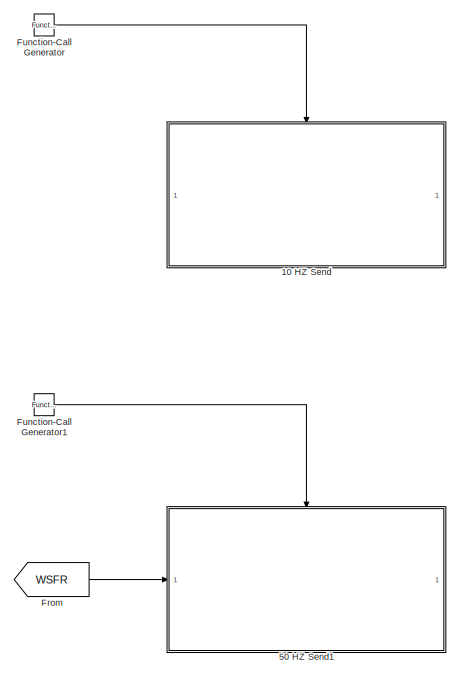
[diagram: root canvas - part 1/14, top center region]
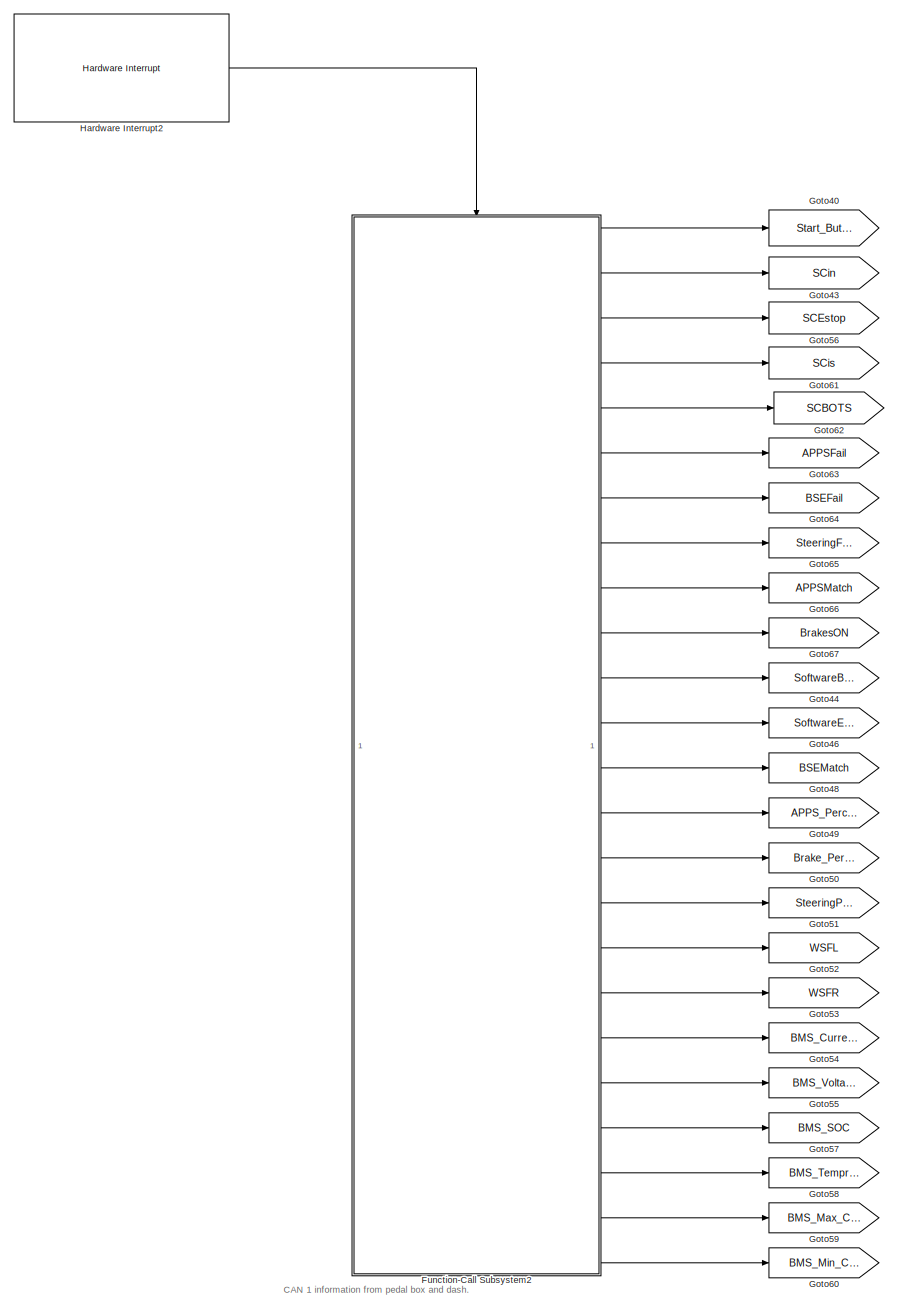
[diagram: root canvas - part 2/14, central region]
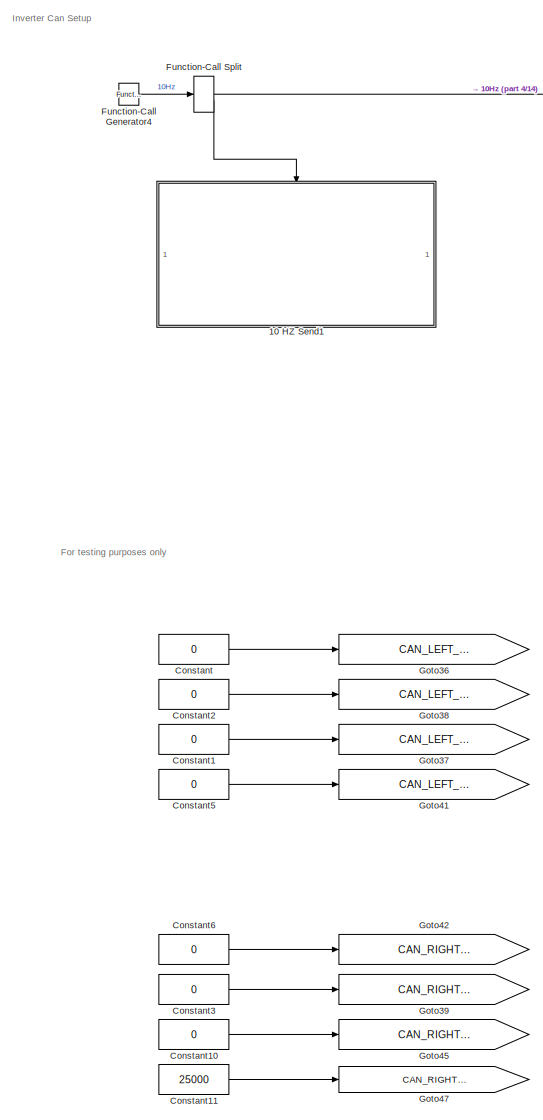
[diagram: root canvas - part 3/14, central region]
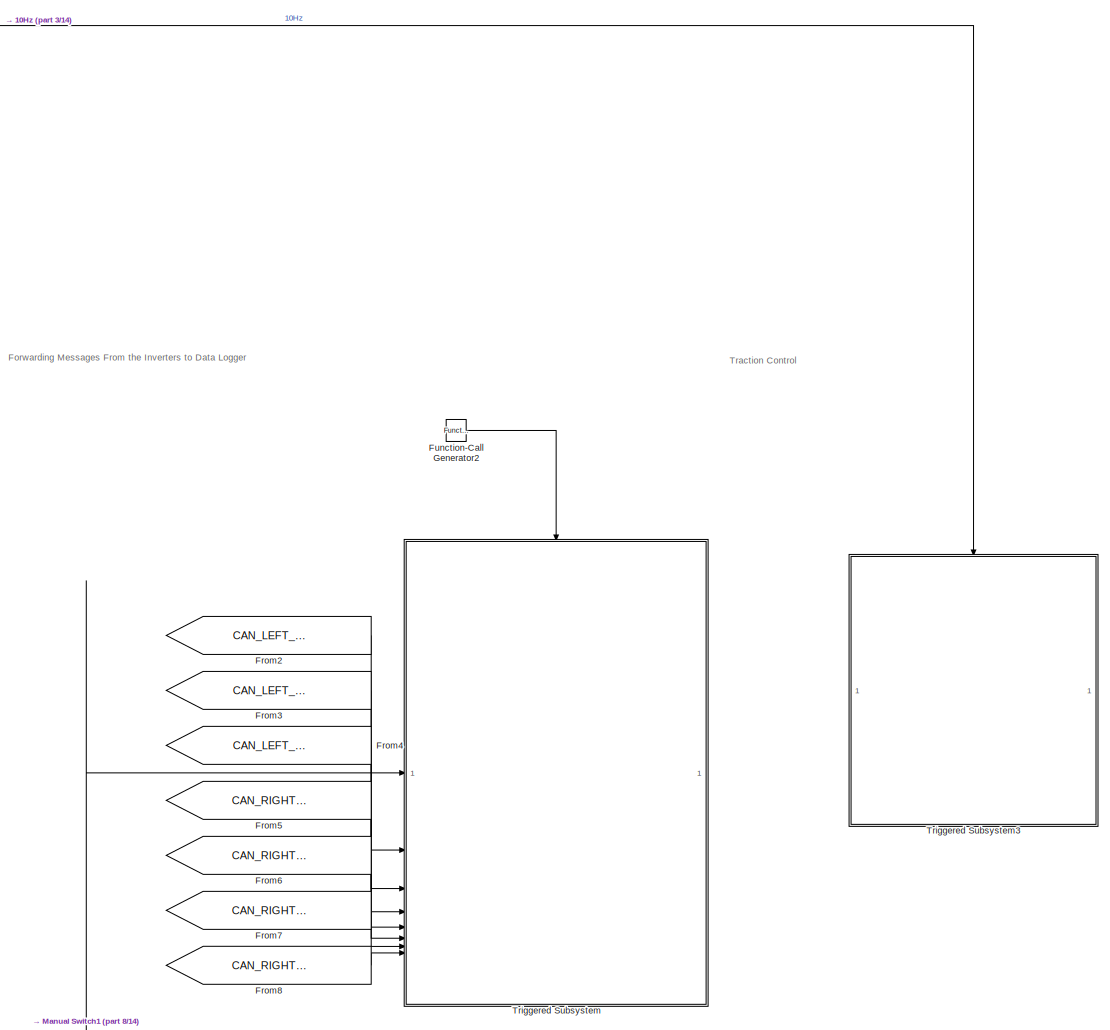
[diagram: root canvas - part 4/14, middle right region]
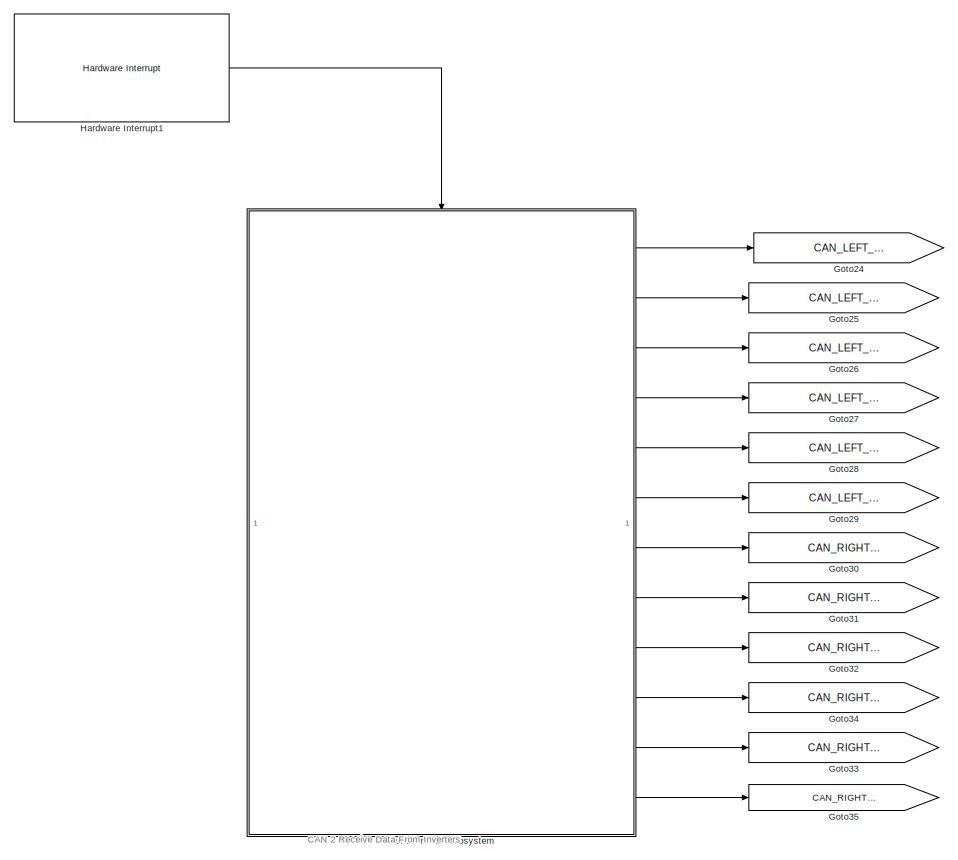
[diagram: root canvas - part 5/14, central region]
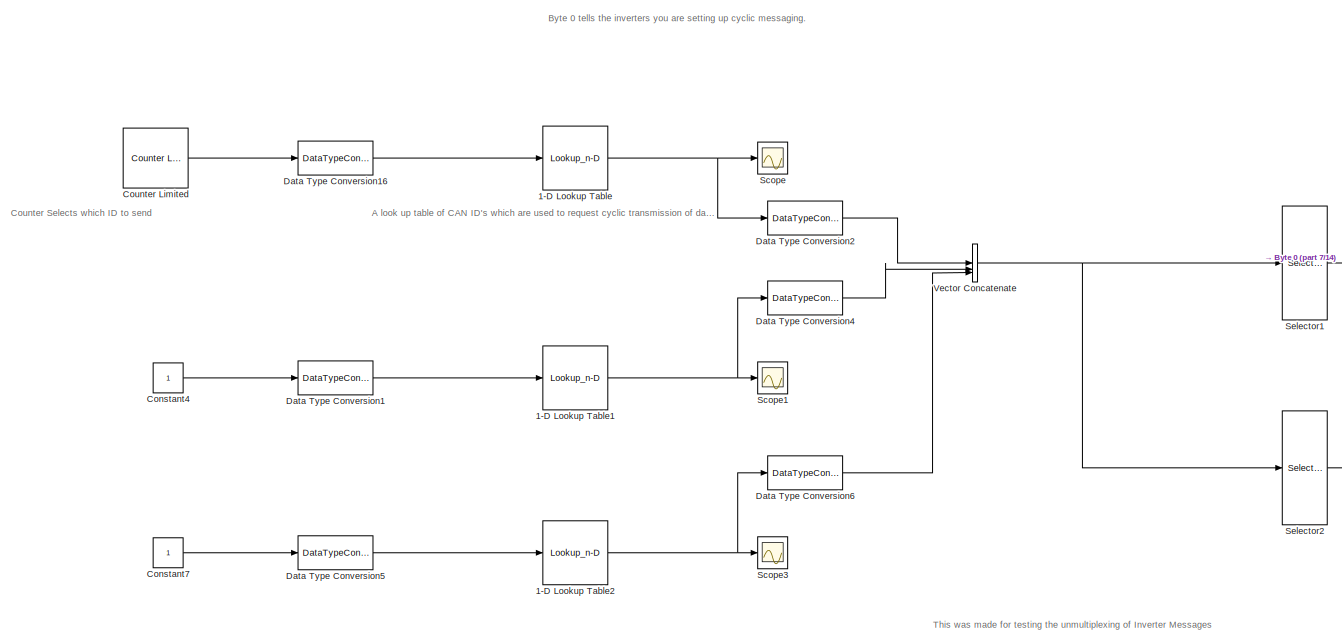
[diagram: root canvas - part 6/14, middle left region]
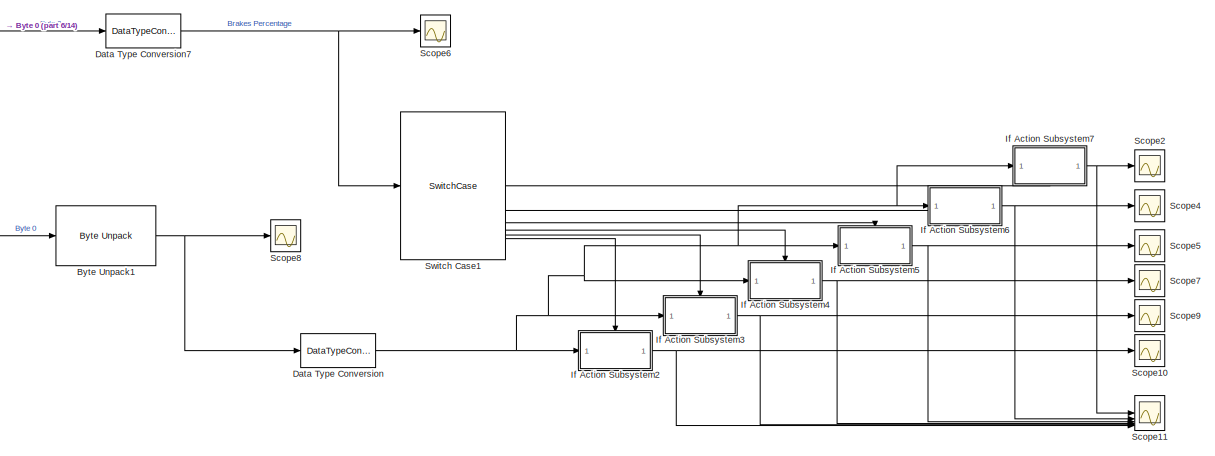
[diagram: root canvas - part 7/14, middle left region]
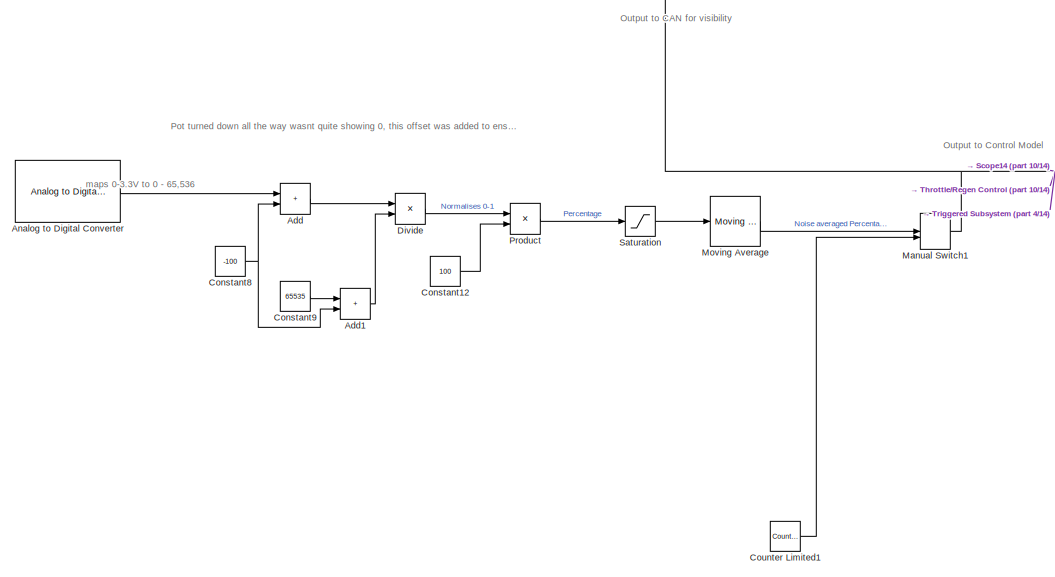
[diagram: root canvas - part 8/14, central region]
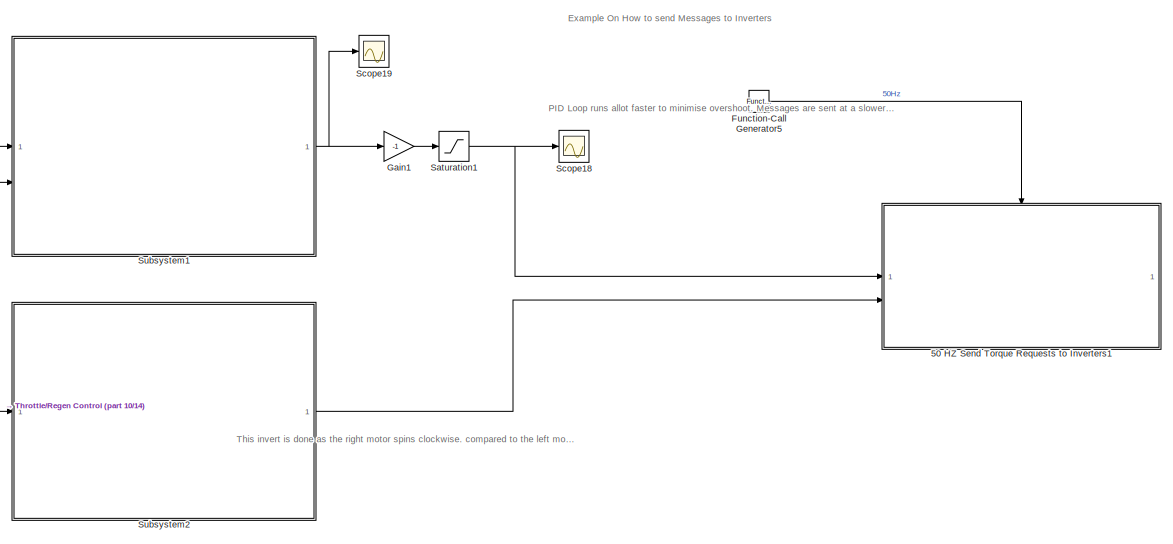
[diagram: root canvas - part 9/14, middle right region]
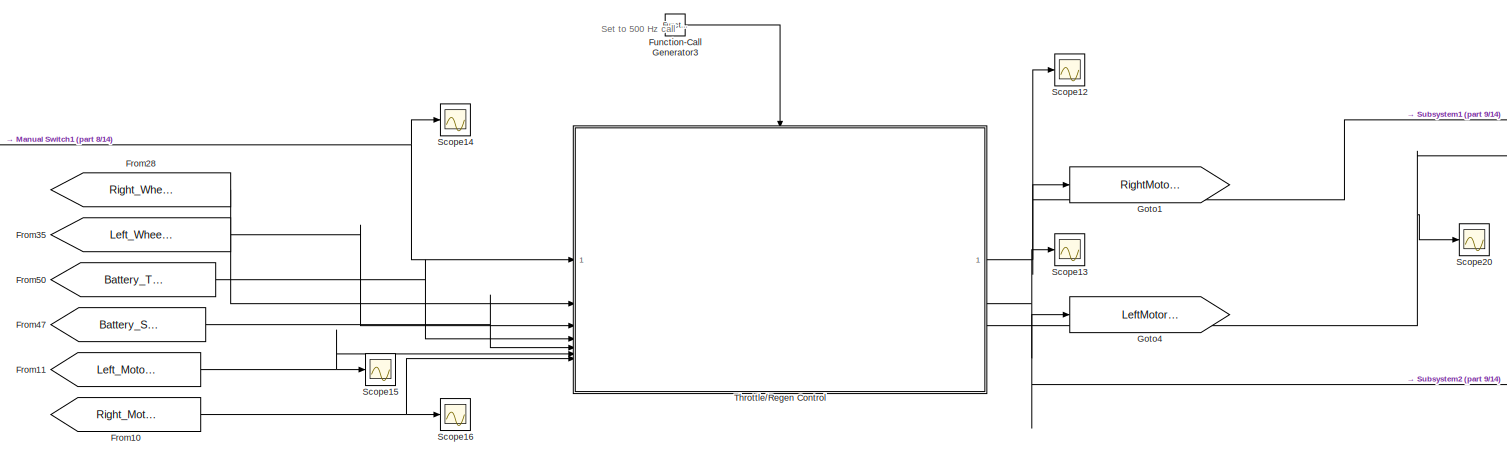
[diagram: root canvas - part 10/14, middle right region]
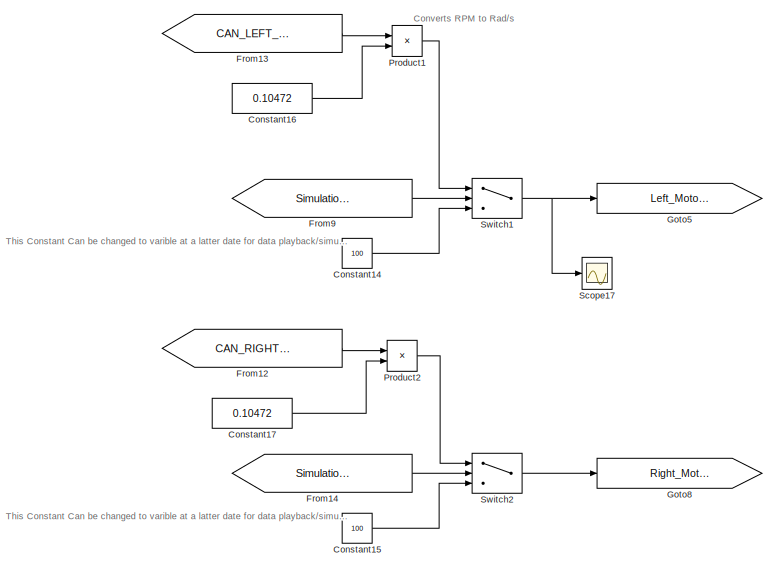
[diagram: root canvas - part 11/14, bottom center region]
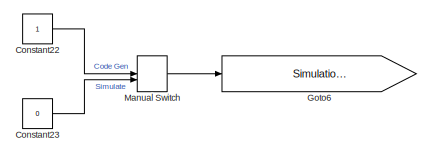
[diagram: root canvas - part 12/14, central region]
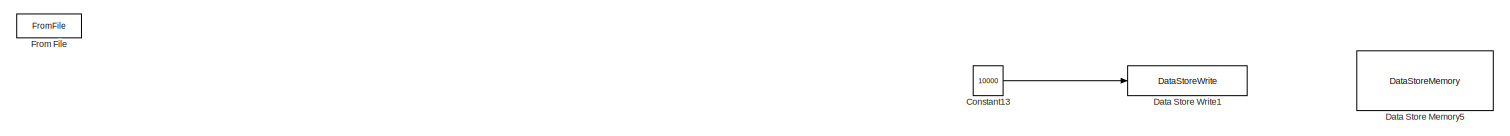
[diagram: root canvas - part 13/14, bottom right region]
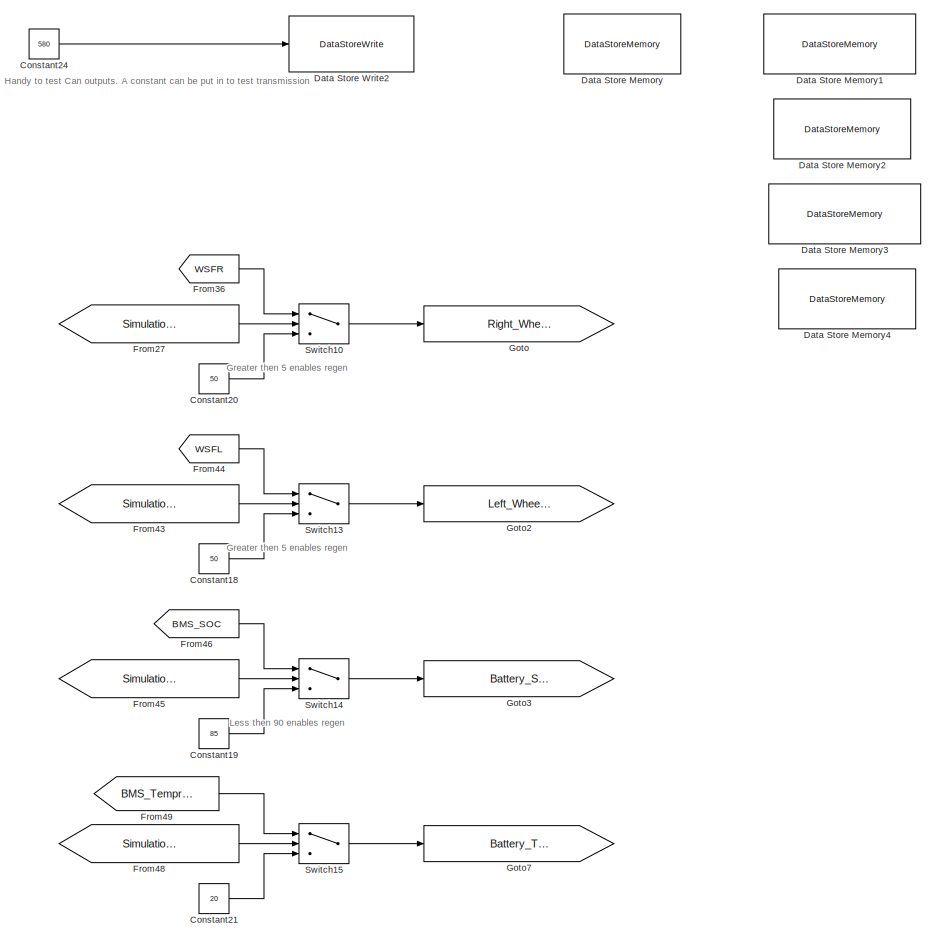
[diagram: root canvas - part 14/14, bottom center region]
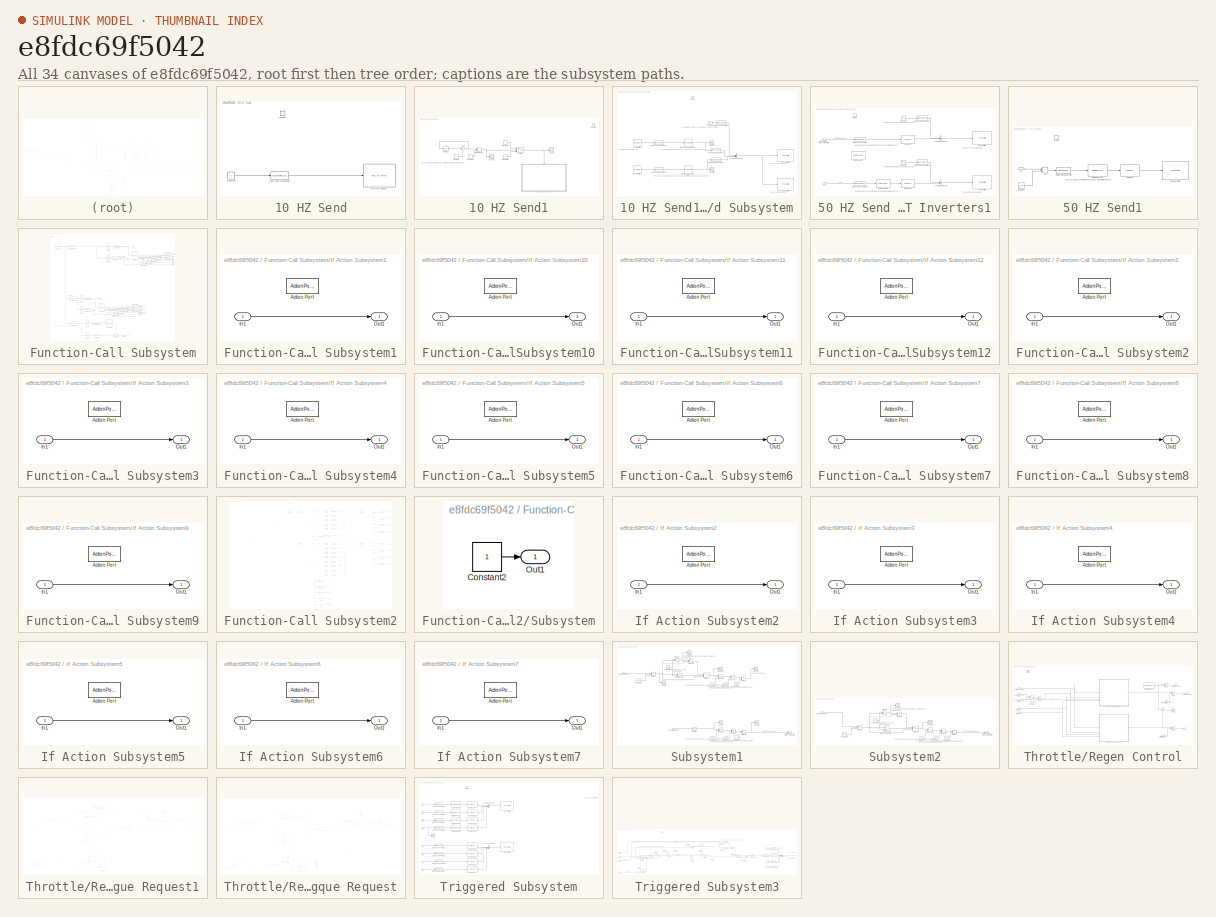
[diagram: thumbnail index - all 34 canvases of the model, root first then tree order]
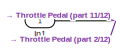
[diagram: Throttle/Regen Control/Right Side Torque Request - part 1/12, top left region]
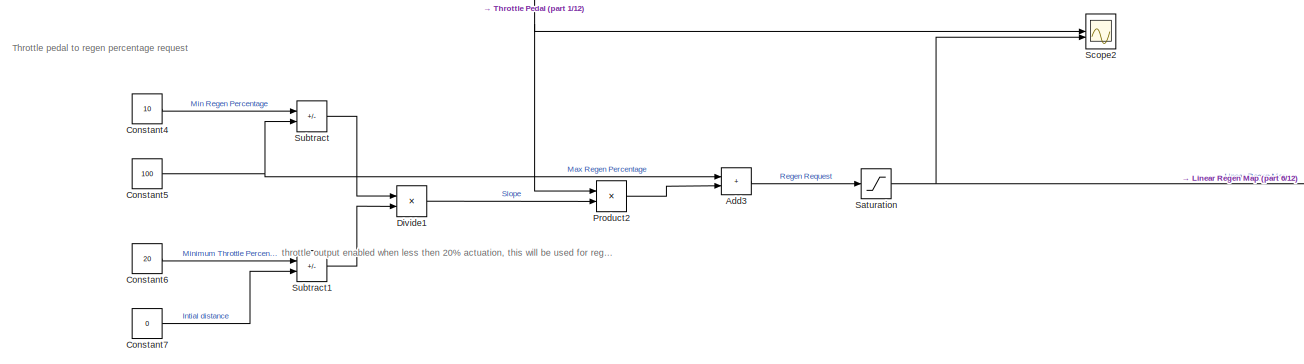
[diagram: Throttle/Regen Control/Right Side Torque Request - part 2/12, top center region]
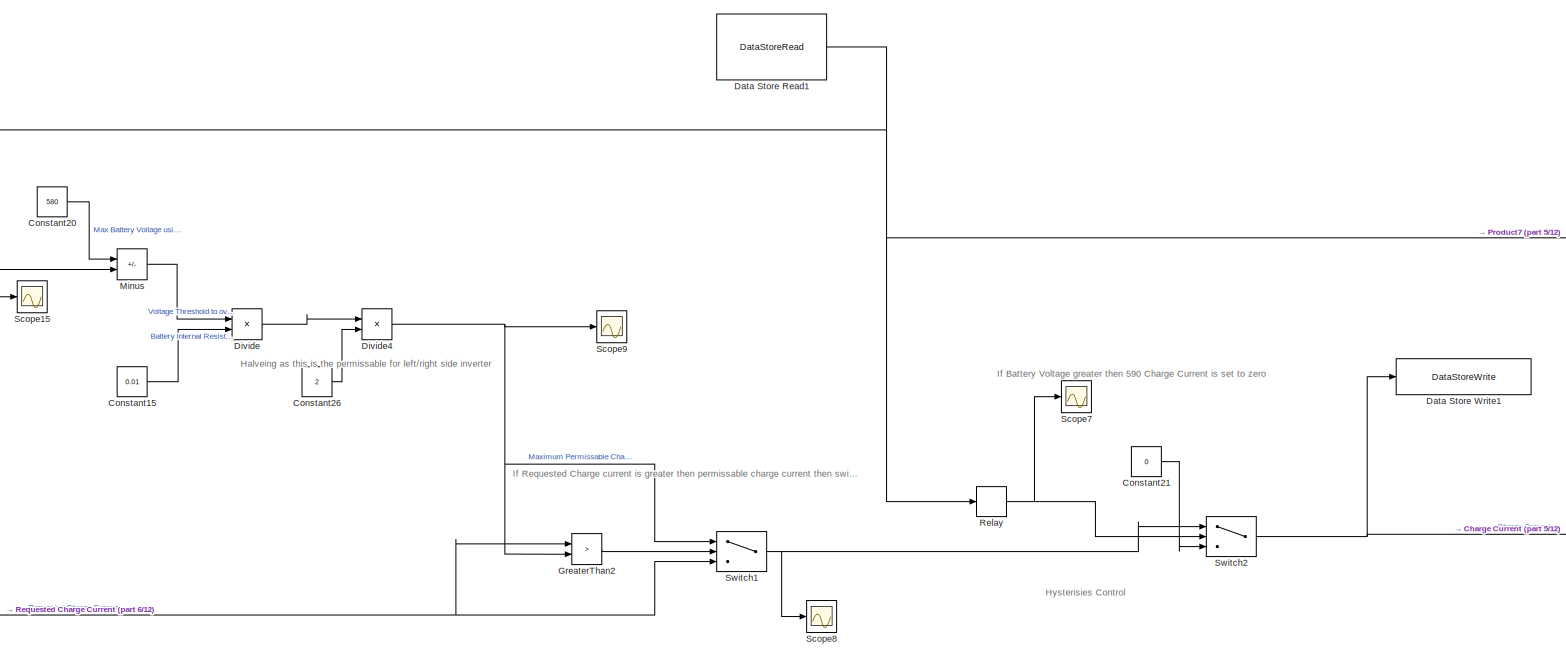
[diagram: Throttle/Regen Control/Right Side Torque Request - part 3/12, top right region]
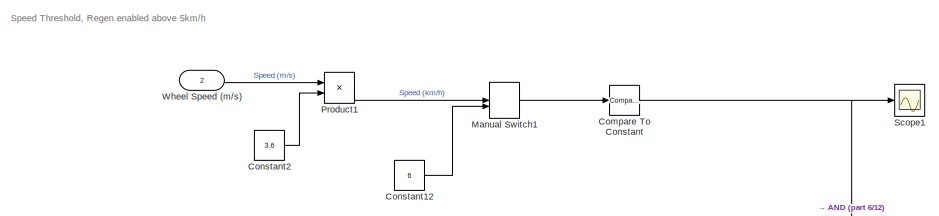
[diagram: Throttle/Regen Control/Right Side Torque Request - part 4/12, top left region]
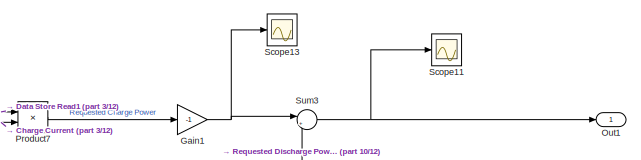
[diagram: Throttle/Regen Control/Right Side Torque Request - part 5/12, middle right region]
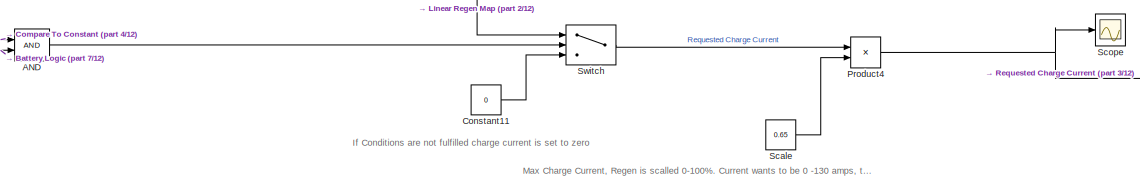
[diagram: Throttle/Regen Control/Right Side Torque Request - part 6/12, central region]
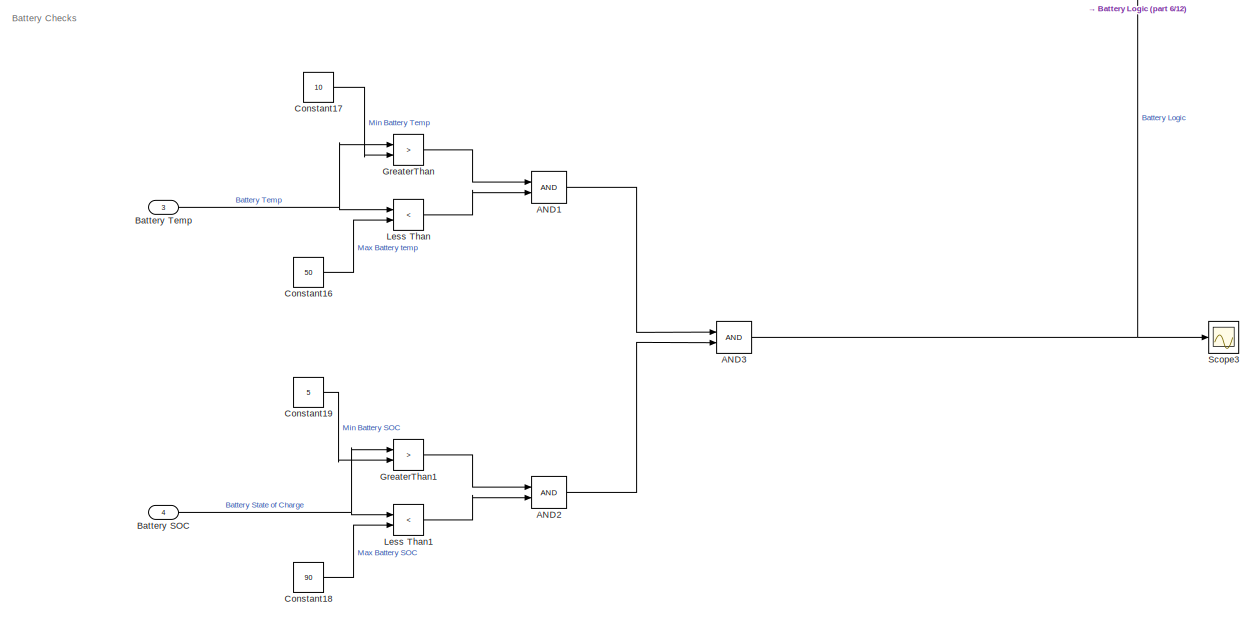
[diagram: Throttle/Regen Control/Right Side Torque Request - part 7/12, central region]
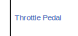
[diagram: Throttle/Regen Control/Right Side Torque Request - part 8/12, middle left region]
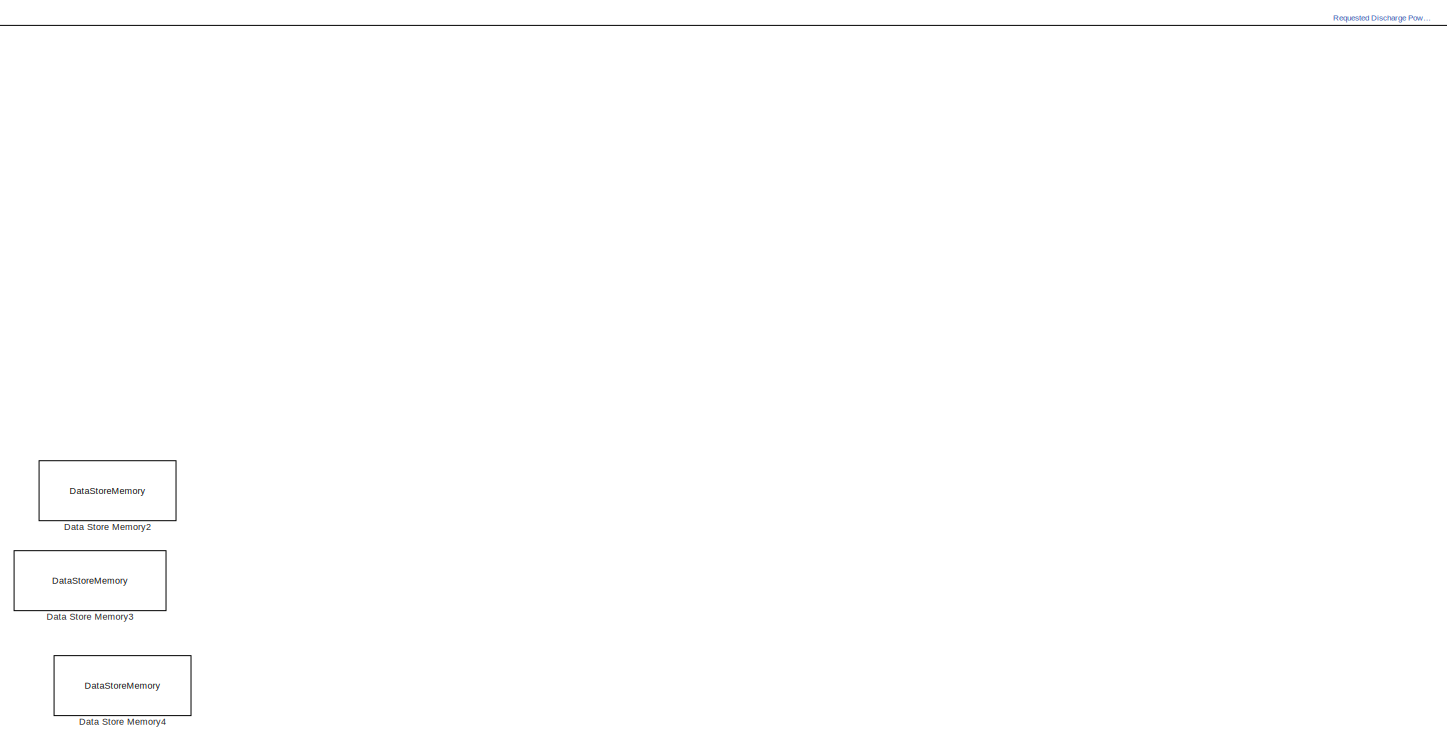
[diagram: Throttle/Regen Control/Right Side Torque Request - part 9/12, bottom center region]
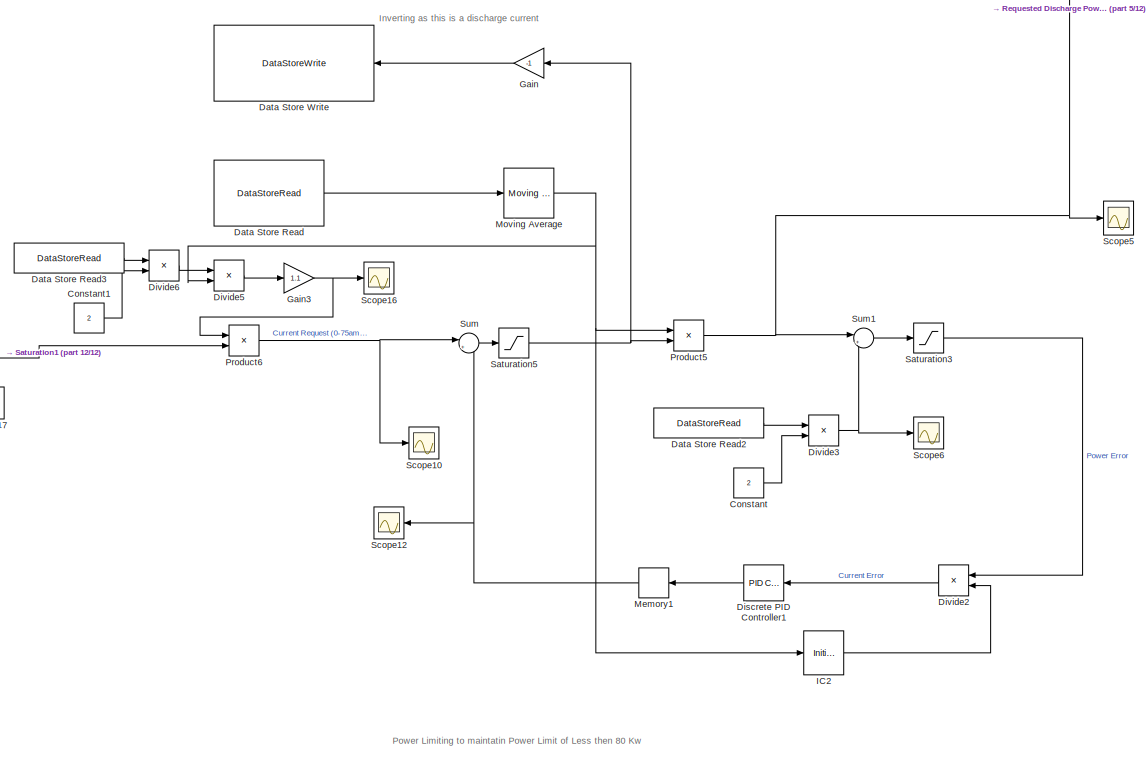
[diagram: Throttle/Regen Control/Right Side Torque Request - part 10/12, bottom center region]
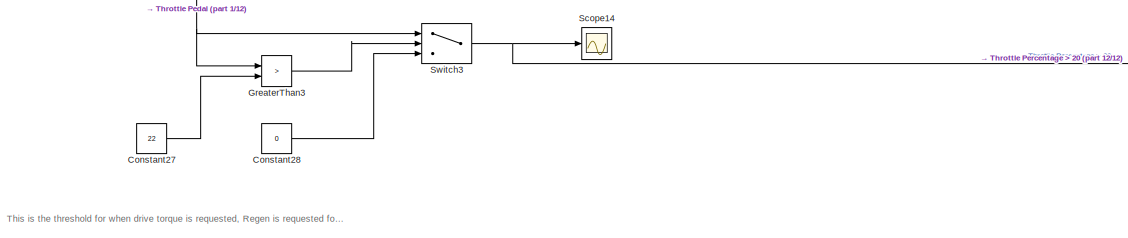
[diagram: Throttle/Regen Control/Right Side Torque Request - part 11/12, bottom left region]
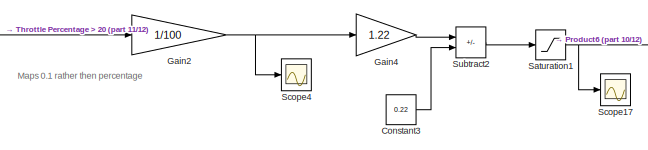
[diagram: Throttle/Regen Control/Right Side Torque Request - part 12/12, bottom left region]
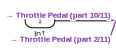
[diagram: Throttle/Regen Control/Left Side Torque Request1 - part 1/11, top left region]
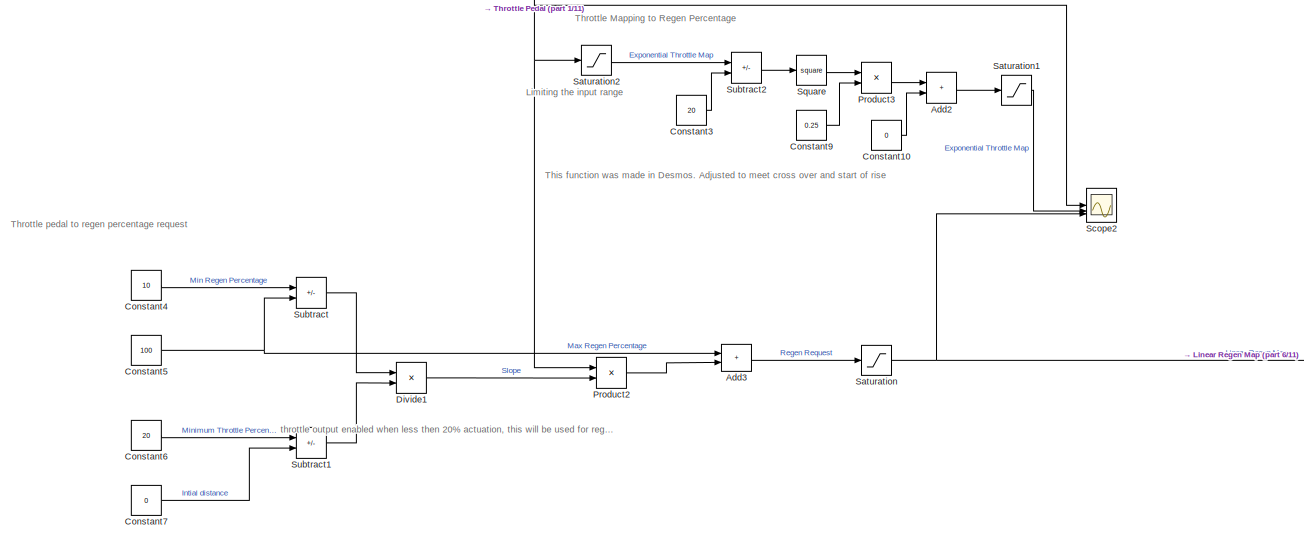
[diagram: Throttle/Regen Control/Left Side Torque Request1 - part 2/11, top center region]
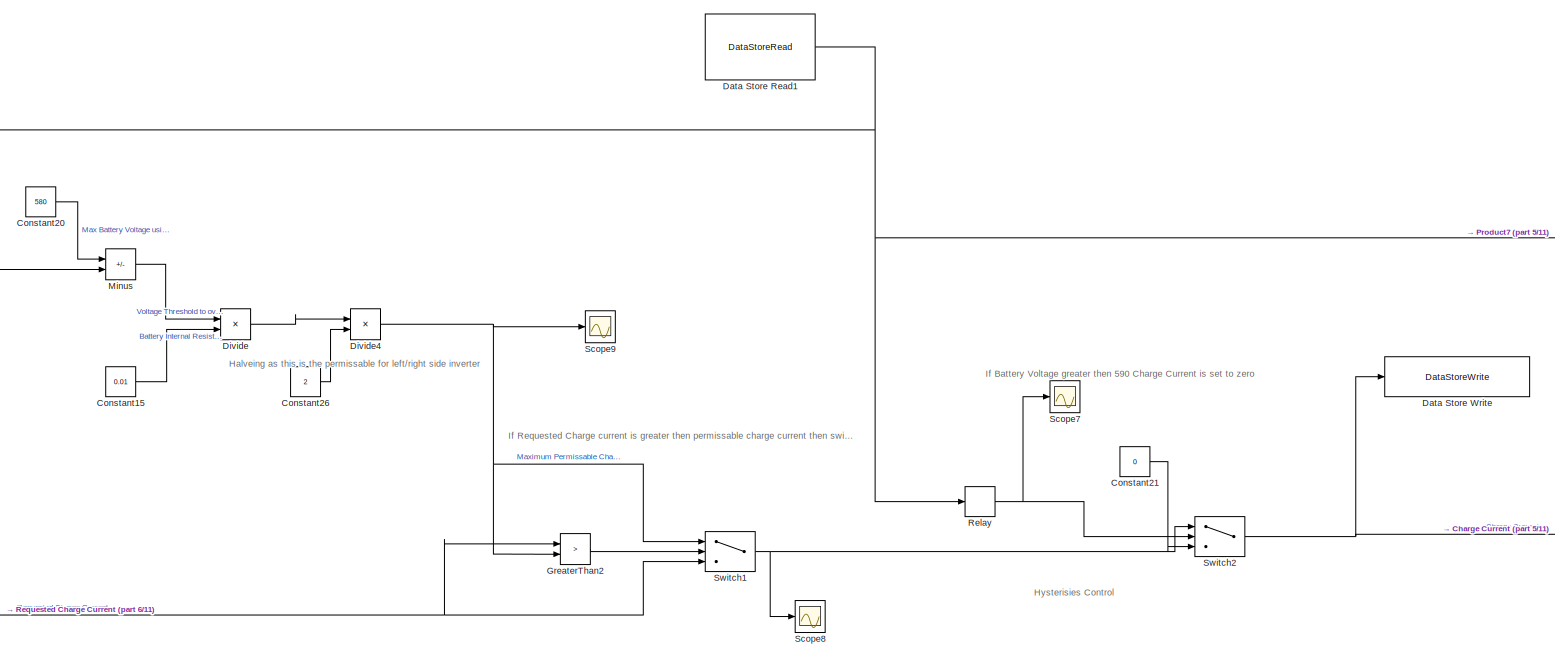
[diagram: Throttle/Regen Control/Left Side Torque Request1 - part 3/11, top right region]
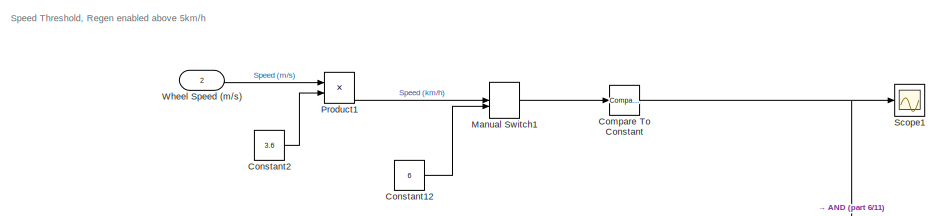
[diagram: Throttle/Regen Control/Left Side Torque Request1 - part 4/11, top left region]
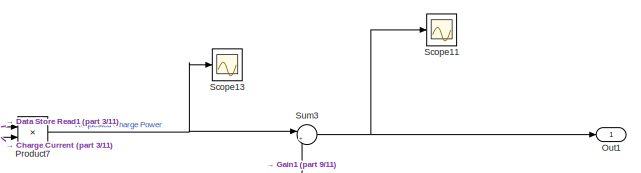
[diagram: Throttle/Regen Control/Left Side Torque Request1 - part 5/11, top right region]
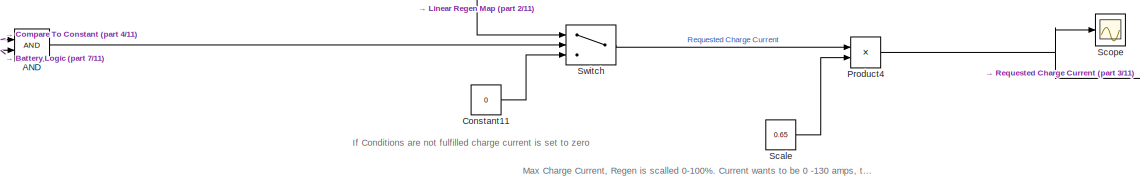
[diagram: Throttle/Regen Control/Left Side Torque Request1 - part 6/11, central region]
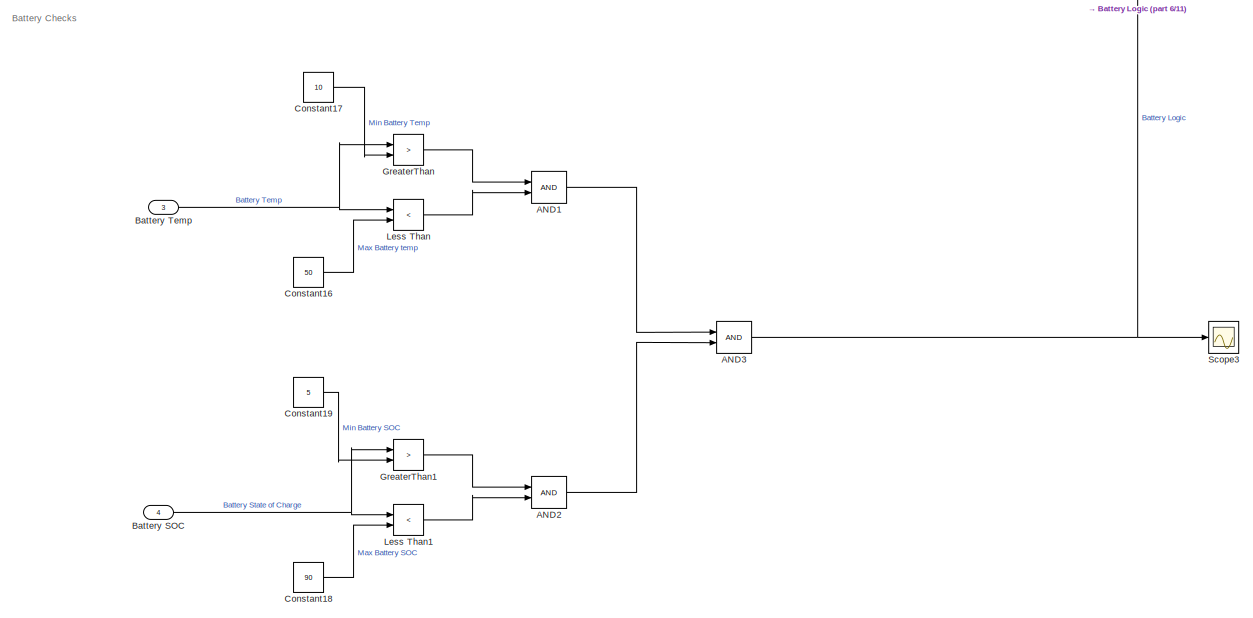
[diagram: Throttle/Regen Control/Left Side Torque Request1 - part 7/11, central region]
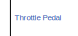
[diagram: Throttle/Regen Control/Left Side Torque Request1 - part 8/11, middle left region]
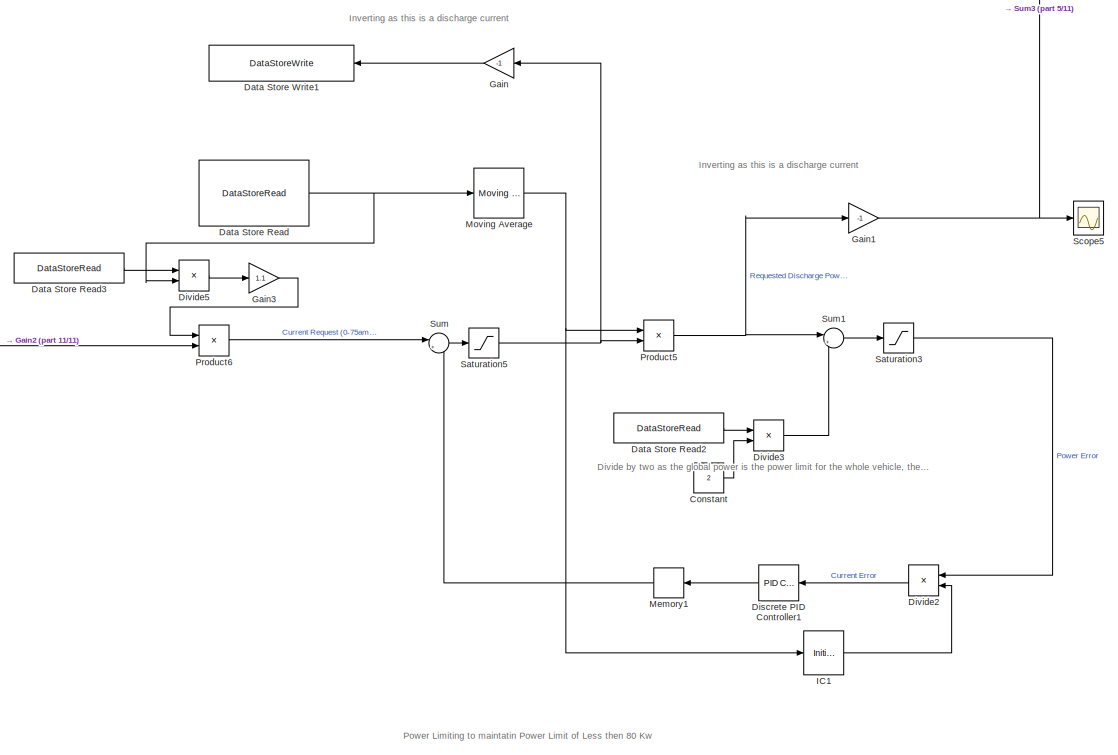
[diagram: Throttle/Regen Control/Left Side Torque Request1 - part 9/11, bottom center region]
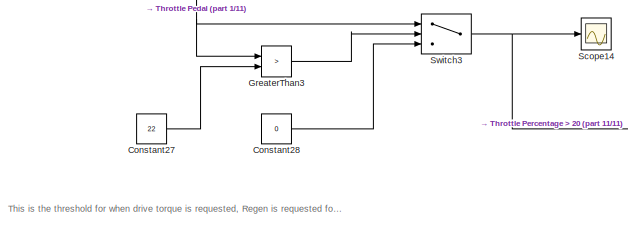
[diagram: Throttle/Regen Control/Left Side Torque Request1 - part 10/11, bottom left region]
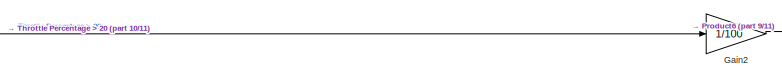
[diagram: Throttle/Regen Control/Left Side Torque Request1 - part 11/11, bottom left region]
MODEL slx_e8fdc69f5042
KIND model
CONFIG AbsTol = auto
CONFIG EnableMultiTasking = on
CONFIG FixedStep = auto
CONFIG MaxStep = auto
CONFIG MinStep = auto
CONFIG RelTol = 1e-3
CONFIG SampleTimeConstraint = Unconstrained
CONFIG SolverName = FixedStepAuto
CONFIG StartTime = 0.0
CONFIG StopTime = 100
BLOCK [Lookup_n-D] 1-D Lookup Table
  BreakpointsForDimension1 = [0 1 2 3 4 5]
  Commented = on
  InputPortMap = u0
  InternalRulePriority = Speed
  InterpMethod = Nearest
  NumberOfTableDimensions = 1
  RndMeth = Simplest
  Table = [235 74 168 73 95 138]
BLOCK [Lookup_n-D] 1-D Lookup Table1
  BreakpointsForDimension1 = [0 1 2 3 4 5]
  Commented = on
  InputPortMap = u0
  InternalRulePriority = Speed
  InterpMethod = Nearest
  NumberOfTableDimensions = 1
  RndMeth = Simplest
  Table = [25 200 25 200 50 50]
BLOCK [Lookup_n-D] 1-D Lookup Table2
  BreakpointsForDimension1 = [0 1 2 3 4 5]
  Commented = on
  InputPortMap = u0
  InternalRulePriority = Speed
  InterpMethod = Nearest
  NumberOfTableDimensions = 1
  RndMeth = Simplest
  Table = [25 200 25 200 50 50]
BLOCK [SubSystem] 10 HZ Send
  Commented = on
  TreatAsAtomicUnit = on
BLOCK [Constant] 10 HZ Send/Constant
BLOCK [DataTypeConversion] 10 HZ Send/Data Type Conversion
  OutDataTypeStr = uint8
  RndMeth = Floor
  SaturateOnIntegerOverflow = off
BLOCK [Reference] 10 HZ Send/FDCAN Write1  REF=stm32blockslib/FDCAN Write
  LibrarySourceBlock = stm32l5xxblockslib/FDCAN Write
  SourceBlock = stm32blockslib/FDCAN Write
  SourceType = stm32cube.blocks.FDCANWrite
BLOCK [TriggerPort] 10 HZ Send/function
  StatesWhenEnabling = held
  TriggerType = function-call
  VariantControl = (inherit)
BLOCK [SubSystem] 10 HZ Send1
  TreatAsAtomicUnit = on
BLOCK [Constant] 10 HZ Send1/Constant
BLOCK [Constant] 10 HZ Send1/Constant1
  Value = 0
BLOCK [Constant] 10 HZ Send1/Constant2
BLOCK [Constant] 10 HZ Send1/Constant3
  Value = 12
BLOCK [SubSystem] 10 HZ Send1/Enabled Subsystem
  TreatAsAtomicUnit = on
BLOCK [Constant] 10 HZ Send1/Enabled Subsystem/Constant4
  Value = 61
BLOCK [Reference] 10 HZ Send1/Enabled Subsystem/Counter Limited  REF=simulink/Sources/Counter
Limited
  SourceBlock = simulink/Sources/Counter\nLimited
  SourceType = Counter Limited
BLOCK [Reference] 10 HZ Send1/Enabled Subsystem/Counter Limited1  REF=simulink/Sources/Counter
Limited
  SourceBlock = simulink/Sources/Counter\nLimited
  SourceType = Counter Limited
BLOCK [DataTypeConversion] 10 HZ Send1/Enabled Subsystem/Data Type Conversion1
  OutDataTypeStr = double
  RndMeth = Floor
  SaturateOnIntegerOverflow = off
BLOCK [DataTypeConversion] 10 HZ Send1/Enabled Subsystem/Data Type Conversion16
  OutDataTypeStr = double
  RndMeth = Floor
  SaturateOnIntegerOverflow = off
BLOCK [DataTypeConversion] 10 HZ Send1/Enabled Subsystem/Data Type Conversion2
  OutDataTypeStr = uint8
  RndMeth = Floor
  SaturateOnIntegerOverflow = off
BLOCK [DataTypeConversion] 10 HZ Send1/Enabled Subsystem/Data Type Conversion3
  OutDataTypeStr = uint8
  RndMeth = Floor
  SaturateOnIntegerOverflow = off
BLOCK [DataTypeConversion] 10 HZ Send1/Enabled Subsystem/Data Type Conversion4
  OutDataTypeStr = uint8
  RndMeth = Floor
  SaturateOnIntegerOverflow = off
BLOCK [LookupNDDirect] 10 HZ Send1/Enabled Subsystem/Direct Lookup Table (n-D)
  NumberOfTableDimensions = 1
  Table = [235 74 168 73 95 138]
BLOCK [LookupNDDirect] 10 HZ Send1/Enabled Subsystem/Direct Lookup Table (n-D)1
  NumberOfTableDimensions = 1
  Table = [235 74 168 73 95 138]
BLOCK [EnablePort] 10 HZ Send1/Enabled Subsystem/Enable
BLOCK [Reference] 10 HZ Send1/Enabled Subsystem/FDCAN Write2  REF=stm32blockslib/FDCAN Write
  LibrarySourceBlock = stm32l5xxblockslib/FDCAN Write
  SourceBlock = stm32blockslib/FDCAN Write
  SourceType = stm32cube.blocks.FDCANWrite
BLOCK [Reference] 10 HZ Send1/Enabled Subsystem/FDCAN Write3  REF=stm32blockslib/FDCAN Write
  LibrarySourceBlock = stm32l5xxblockslib/FDCAN Write
  SourceBlock = stm32blockslib/FDCAN Write
  SourceType = stm32cube.blocks.FDCANWrite
BLOCK [Scope] 10 HZ Send1/Enabled Subsystem/Scope2
  Floating = off
  NumInputPorts = 1
  ScopeSpecificationString = Simulink.scopes.TimeScopeBlockCfg('CurrentConfiguration', extmgr.ConfigurationSet(extmgr.Configuration('Core','General UI',true),extmgr.Configuration('Core','Source UI',true),extmgr.Configuration('Sources','WiredSimulink',true,'DataLoggingVariableName','ScopeData2'),extmgr.Configuration('Visuals','Time Domain',true,'SerializedDisplays',{struct('MinYLimReal','52.75','MaxYLimReal','255.25','YLabelRe...<+1459ch>
BLOCK [Scope] 10 HZ Send1/Enabled Subsystem/Scope3
  Floating = off
  NumInputPorts = 1
  ScopeSpecificationString = Simulink.scopes.TimeScopeBlockCfg('CurrentConfiguration', extmgr.ConfigurationSet(extmgr.Configuration('Core','General UI',true),extmgr.Configuration('Core','Source UI',true),extmgr.Configuration('Sources','WiredSimulink',true,'DataLoggingVariableName','ScopeData3'),extmgr.Configuration('Visuals','Time Domain',true,'SerializedDisplays',{struct('MinYLimReal','52.75','MaxYLimReal','255.25','YLabelRe...<+1450ch>
BLOCK [Concatenate] 10 HZ Send1/Enabled Subsystem/Vector Concatenate
  NumInputs = 3
BLOCK [RelationalOperator] 10 HZ Send1/GreaterThan
  InputSameDT = off
  Operator = >
  OutDataTypeStr = boolean
  RndMeth = Simplest
BLOCK [Scope] 10 HZ Send1/Scope
  Floating = off
  NumInputPorts = 1
  ScopeSpecificationString = Simulink.scopes.TimeScopeBlockCfg('CurrentConfiguration', extmgr.ConfigurationSet(extmgr.Configuration('Core','General UI',true),extmgr.Configuration('Core','Source UI',true),extmgr.Configuration('Sources','WiredSimulink',true,'DataLoggingVariableName','ScopeData2'),extmgr.Configuration('Visuals','Time Domain',true,'SerializedDisplays',{struct('MinYLimReal','-0.125','MaxYLimReal','1.125','YLabelRe...<+1442ch>
BLOCK [Scope] 10 HZ Send1/Scope1
  Floating = off
  NumInputPorts = 1
  ScopeSpecificationString = Simulink.scopes.TimeScopeBlockCfg('CurrentConfiguration', extmgr.ConfigurationSet(extmgr.Configuration('Core','General UI',true),extmgr.Configuration('Core','Source UI',true),extmgr.Configuration('Sources','WiredSimulink',true,'DataLoggingVariableName','ScopeData3'),extmgr.Configuration('Visuals','Time Domain',true,'SerializedDisplays',{struct('MinYLimReal','-0.125','MaxYLimReal','1.125','YLabelRe...<+1447ch>
BLOCK [Sum] 10 HZ Send1/Sum
  Inputs = |++
BLOCK [Switch] 10 HZ Send1/Switch
  Criteria = u2 > Threshold
  InputSameDT = off
  SaturateOnIntegerOverflow = off
BLOCK [UnitDelay] 10 HZ Send1/Unit Delay
  HasFrameUpgradeWarning = on
  SampleTime = -1
BLOCK [TriggerPort] 10 HZ Send1/function
  StatesWhenEnabling = held
  TriggerType = function-call
  VariantControl = (inherit)
BLOCK [SubSystem] 50 HZ Send Torque Requests to Inverters1
  TreatAsAtomicUnit = on
BLOCK [Reference] 50 HZ Send Torque Requests to Inverters1/Byte Pack  REF=stmutilitieslib/Byte Pack
  SourceBlock = stmutilitieslib/Byte Pack
  SourceType = Byte pack
BLOCK [Reference] 50 HZ Send Torque Requests to Inverters1/Byte Pack1  REF=stmutilitieslib/Byte Pack
  SourceBlock = stmutilitieslib/Byte Pack
  SourceType = Byte pack
BLOCK [Reference] 50 HZ Send Torque Requests to Inverters1/Byte Reversal  REF=stmutilitieslib/Byte Reversal
  SourceBlock = stmutilitieslib/Byte Reversal
  SourceType = Byte Reversal
BLOCK [Reference] 50 HZ Send Torque Requests to Inverters1/Byte Reversal1  REF=stmutilitieslib/Byte Reversal
  SourceBlock = stmutilitieslib/Byte Reversal
  SourceType = Byte Reversal
BLOCK [Constant] 50 HZ Send Torque Requests to Inverters1/Constant1
  Value = 144
BLOCK [Constant] 50 HZ Send Torque Requests to Inverters1/Constant3
  Value = 144
BLOCK [DataTypeConversion] 50 HZ Send Torque Requests to Inverters1/Data Type Conversion
  OutDataTypeStr = int16
  RndMeth = Floor
  SaturateOnIntegerOverflow = off
BLOCK [DataTypeConversion] 50 HZ Send Torque Requests to Inverters1/Data Type Conversion1
  OutDataTypeStr = uint8
  RndMeth = Floor
  SaturateOnIntegerOverflow = off
BLOCK [DataTypeConversion] 50 HZ Send Torque Requests to Inverters1/Data Type Conversion2
  OutDataTypeStr = int16
  RndMeth = Floor
  SaturateOnIntegerOverflow = off
BLOCK [DataTypeConversion] 50 HZ Send Torque Requests to Inverters1/Data Type Conversion3
  OutDataTypeStr = uint8
  RndMeth = Floor
  SaturateOnIntegerOverflow = off
BLOCK [Reference] 50 HZ Send Torque Requests to Inverters1/FDCAN Write1  REF=stm32blockslib/FDCAN Write
  LibrarySourceBlock = stm32l5xxblockslib/FDCAN Write
  SourceBlock = stm32blockslib/FDCAN Write
  SourceType = stm32cube.blocks.FDCANWrite
BLOCK [Reference] 50 HZ Send Torque Requests to Inverters1/FDCAN Write3  REF=stm32blockslib/FDCAN Write
  LibrarySourceBlock = stm32l5xxblockslib/FDCAN Write
  SourceBlock = stm32blockslib/FDCAN Write
  SourceType = stm32cube.blocks.FDCANWrite
BLOCK [Inport] 50 HZ Send Torque Requests to Inverters1/In1
  Port = 2
BLOCK [Inport] 50 HZ Send Torque Requests to Inverters1/Over Current Protected Torque Request to Inverters
BLOCK [Concatenate] 50 HZ Send Torque Requests to Inverters1/Vector Concatenate
BLOCK [Concatenate] 50 HZ Send Torque Requests to Inverters1/Vector Concatenate1
BLOCK [TriggerPort] 50 HZ Send Torque Requests to Inverters1/function
  StatesWhenEnabling = held
  TriggerType = function-call
  VariantControl = (inherit)
BLOCK [SubSystem] 50 HZ Send1
  Commented = on
  TreatAsAtomicUnit = on
BLOCK [Sum] 50 HZ Send1/Add
  IconShape = rectangular
BLOCK [Reference] 50 HZ Send1/Byte Pack  REF=stmutilitieslib/Byte Pack
  SourceBlock = stmutilitieslib/Byte Pack
  SourceType = Byte pack
BLOCK [Reference] 50 HZ Send1/Byte Reversal  REF=stmutilitieslib/Byte Reversal
  SourceBlock = stmutilitieslib/Byte Reversal
  SourceType = Byte Reversal
BLOCK [Constant] 50 HZ Send1/Constant
  Value = 1000
BLOCK [DataTypeConversion] 50 HZ Send1/Data Type Conversion
  OutDataTypeStr = uint16
  RndMeth = Floor
  SaturateOnIntegerOverflow = off
BLOCK [Reference] 50 HZ Send1/FDCAN Write3  REF=stm32blockslib/FDCAN Write
  LibrarySourceBlock = stm32l5xxblockslib/FDCAN Write
  SourceBlock = stm32blockslib/FDCAN Write
  SourceType = stm32cube.blocks.FDCANWrite
BLOCK [Inport] 50 HZ Send1/In1
BLOCK [TriggerPort] 50 HZ Send1/function
  StatesWhenEnabling = held
  TriggerType = function-call
  VariantControl = (inherit)
BLOCK [Sum] Add
  IconShape = rectangular
BLOCK [Sum] Add1
  IconShape = rectangular
BLOCK [Reference] Analog to Digital Converter  REF=stm32h7xxblockslib/Analog to Digital Converter
  SourceBlock = stm32h7xxblockslib/Analog to Digital Converter
  SourceType = stm32cube.blocks.AnalogInputForH7
BLOCK [Reference] Byte Unpack1  REF=stmutilitieslib/Byte Unpack
  Commented = on
  SourceBlock = stmutilitieslib/Byte Unpack
  SourceType = Byte Unpack
BLOCK [Constant] Constant
  Commented = on
  Value = 0
BLOCK [Constant] Constant1
  Commented = on
  Value = 0
BLOCK [Constant] Constant10
  Commented = on
  Value = 0
BLOCK [Constant] Constant11
  Commented = on
  Value = 25000
BLOCK [Constant] Constant12
  Value = 100
BLOCK [Constant] Constant13
  Value = 10000
BLOCK [Constant] Constant14
  Value = 100
BLOCK [Constant] Constant15
  Value = 100
BLOCK [Constant] Constant16
  Value = 0.10472
BLOCK [Constant] Constant17
  Value = 0.10472
BLOCK [Constant] Constant18
  Value = 50
BLOCK [Constant] Constant19
  Value = 85
BLOCK [Constant] Constant2
  Commented = on
  Value = 0
BLOCK [Constant] Constant20
  Value = 50
BLOCK [Constant] Constant21
  Value = 20
BLOCK [Constant] Constant22
BLOCK [Constant] Constant23
  Value = 0
BLOCK [Constant] Constant24
  Value = 580
BLOCK [Constant] Constant3
  Commented = on
  Value = 0
BLOCK [Constant] Constant4
  Commented = on
BLOCK [Constant] Constant5
  Commented = on
  Value = 0
BLOCK [Constant] Constant6
  Commented = on
  Value = 0
BLOCK [Constant] Constant7
  Commented = on
BLOCK [Constant] Constant8
  Value = -100
BLOCK [Constant] Constant9
  Value = 65535
BLOCK [Reference] Counter Limited  REF=simulink/Sources/Counter
Limited
  Commented = on
  SourceBlock = simulink/Sources/Counter\nLimited
  SourceType = Counter Limited
BLOCK [Reference] Counter Limited1  REF=simulink/Sources/Counter
Limited
  SourceBlock = simulink/Sources/Counter\nLimited
  SourceType = Counter Limited
BLOCK [DataStoreMemory] Data Store Memory
  DataStoreName = Battery_Voltage
  ShowAdditionalParam = off
  WriteAfterWriteMsg = warning
BLOCK [DataStoreMemory] Data Store Memory1
  DataStoreName = Right_Sim_Discharge_Current
  ShowAdditionalParam = off
  WriteAfterWriteMsg = warning
BLOCK [DataStoreMemory] Data Store Memory2
  DataStoreName = Right_Sim_Regen_Current
  ShowAdditionalParam = off
  WriteAfterWriteMsg = warning
BLOCK [DataStoreMemory] Data Store Memory3
  DataStoreName = Left_Sim_Discharge_Current
  ShowAdditionalParam = off
  WriteAfterWriteMsg = warning
BLOCK [DataStoreMemory] Data Store Memory4
  DataStoreName = Left_Sim_Regen_Current
  ShowAdditionalParam = off
  WriteAfterWriteMsg = warning
BLOCK [DataStoreMemory] Data Store Memory5
  DataStoreName = Global_Power_Limit
  ShowAdditionalParam = off
  WriteAfterWriteMsg = warning
BLOCK [DataStoreWrite] Data Store Write1
  DataStoreName = Global_Power_Limit
  IndexOptions = Index vector (dialog)
  Indices = 1
  OutputSizes = 1
BLOCK [DataStoreWrite] Data Store Write2
  DataStoreName = Battery_Voltage
  IndexOptions = Index vector (dialog)
  Indices = 1
  OutputSizes = 1
BLOCK [DataTypeConversion] Data Type Conversion
  Commented = on
  OutDataTypeStr = uint16
  RndMeth = Floor
  SaturateOnIntegerOverflow = off
BLOCK [DataTypeConversion] Data Type Conversion1
  Commented = on
  OutDataTypeStr = double
  RndMeth = Floor
  SaturateOnIntegerOverflow = off
BLOCK [DataTypeConversion] Data Type Conversion16
  Commented = on
  OutDataTypeStr = double
  RndMeth = Floor
  SaturateOnIntegerOverflow = off
BLOCK [DataTypeConversion] Data Type Conversion2
  Commented = on
  OutDataTypeStr = uint8
  RndMeth = Floor
  SaturateOnIntegerOverflow = off
BLOCK [DataTypeConversion] Data Type Conversion4
  Commented = on
  OutDataTypeStr = uint8
  RndMeth = Floor
  SaturateOnIntegerOverflow = off
BLOCK [DataTypeConversion] Data Type Conversion5
  Commented = on
  OutDataTypeStr = double
  RndMeth = Floor
  SaturateOnIntegerOverflow = off
BLOCK [DataTypeConversion] Data Type Conversion6
  Commented = on
  OutDataTypeStr = uint8
  RndMeth = Floor
  SaturateOnIntegerOverflow = off
BLOCK [DataTypeConversion] Data Type Conversion7
  Commented = on
  OutDataTypeStr = double
  RndMeth = Floor
  SaturateOnIntegerOverflow = off
BLOCK [Product] Divide
  Inputs = */
BLOCK [From] From
  Commented = on
  GotoTag = WSFR
BLOCK [FromFile] From File
  Commented = on
  FileName = Pot_input.mat
  SampleTime = 0
BLOCK [From] From10
  GotoTag = Right_Motor_Speed_Rads
BLOCK [From] From11
  GotoTag = Left_Motor_Speed_Rads
BLOCK [From] From12
  GotoTag = CAN_RIGHT_Inverter_Motor_Speed
BLOCK [From] From13
  GotoTag = CAN_LEFT_Inverter_Motor_Speed
BLOCK [From] From14
  GotoTag = Simulation_Enable
BLOCK [From] From2
  GotoTag = CAN_LEFT_Inverter_Motor_Speed
BLOCK [From] From27
  GotoTag = Simulation_Enable
BLOCK [From] From28
  GotoTag = Right_Wheel_Speed_Ms
BLOCK [From] From3
  GotoTag = CAN_LEFT_Inverter_Motor_Current
BLOCK [From] From35
  GotoTag = Left_Wheel_Speed_Ms
BLOCK [From] From36
  GotoTag = WSFR
BLOCK [From] From4
  GotoTag = CAN_LEFT_Inverter_Motor_Voltage
BLOCK [From] From43
  GotoTag = Simulation_Enable
BLOCK [From] From44
  GotoTag = WSFL
BLOCK [From] From45
  GotoTag = Simulation_Enable
BLOCK [From] From46
  GotoTag = BMS_SOC
BLOCK [From] From47
  GotoTag = Battery_SOC
BLOCK [From] From48
  GotoTag = Simulation_Enable
BLOCK [From] From49
  GotoTag = BMS_Temprature
BLOCK [From] From5
  GotoTag = CAN_RIGHT_Inverter_Bus_Voltage
BLOCK [From] From50
  GotoTag = Battery_Temprature
BLOCK [From] From6
  GotoTag = CAN_RIGHT_Inverter_Motor_Speed
BLOCK [From] From7
  GotoTag = CAN_RIGHT_Inverter_Motor_Current
BLOCK [From] From8
  GotoTag = CAN_RIGHT_Inverter_Motor_Voltage
BLOCK [From] From9
  GotoTag = Simulation_Enable
BLOCK [Reference] Function-Call Generator  REF=simulink/Ports &
Subsystems/Function-Call
Generator
  Commented = on
  SourceBlock = simulink/Ports &\nSubsystems/Function-Call\nGenerator
  SourceType = Function-Call Generator
BLOCK [Reference] Function-Call Generator1  REF=simulink/Ports &
Subsystems/Function-Call
Generator
  Commented = on
  SourceBlock = simulink/Ports &\nSubsystems/Function-Call\nGenerator
  SourceType = Function-Call Generator
BLOCK [Reference] Function-Call Generator2  REF=simulink/Ports &
Subsystems/Function-Call
Generator
  SourceBlock = simulink/Ports &\nSubsystems/Function-Call\nGenerator
  SourceType = Function-Call Generator
BLOCK [Reference] Function-Call Generator3  REF=simulink/Ports &
Subsystems/Function-Call
Generator
  SourceBlock = simulink/Ports &\nSubsystems/Function-Call\nGenerator
  SourceType = Function-Call Generator
BLOCK [Reference] Function-Call Generator4  REF=simulink/Ports &
Subsystems/Function-Call
Generator
  SourceBlock = simulink/Ports &\nSubsystems/Function-Call\nGenerator
  SourceType = Function-Call Generator
BLOCK [Reference] Function-Call Generator5  REF=simulink/Ports &
Subsystems/Function-Call
Generator
  SourceBlock = simulink/Ports &\nSubsystems/Function-Call\nGenerator
  SourceType = Function-Call Generator
BLOCK [FunctionCallSplit] Function-Call Split
  IconShape = distinctive
  NumOutputPorts = 2
  OutputPortLayout = default
BLOCK [SubSystem] Function-Call Subsystem
  TreatAsAtomicUnit = on
BLOCK [Outport] Function-Call Subsystem/Bus Voltage
  Port = 7
BLOCK [Reference] Function-Call Subsystem/Byte Unpack  REF=stmutilitieslib/Byte Unpack
  SourceBlock = stmutilitieslib/Byte Unpack
  SourceType = Byte Unpack
BLOCK [Reference] Function-Call Subsystem/Byte Unpack1  REF=stmutilitieslib/Byte Unpack
  SourceBlock = stmutilitieslib/Byte Unpack
  SourceType = Byte Unpack
BLOCK [Reference] Function-Call Subsystem/Byte Unpack2  REF=stmutilitieslib/Byte Unpack
  SourceBlock = stmutilitieslib/Byte Unpack
  SourceType = Byte Unpack
BLOCK [Reference] Function-Call Subsystem/CAN FD Unpack1  REF=canfdmsglib/CAN FD Unpack
  LibrarySourceBlock = stmutilitieslib/CAN FD Unpack
  SourceBlock = canfdmsglib/CAN FD Unpack
  SourceType = CAN FD Unpack
BLOCK [Reference] Function-Call Subsystem/CAN FD Unpack2  REF=canfdmsglib/CAN FD Unpack
  LibrarySourceBlock = stmutilitieslib/CAN FD Unpack
  SourceBlock = canfdmsglib/CAN FD Unpack
  SourceType = CAN FD Unpack
BLOCK [Reference] Function-Call Subsystem/CAN FD Unpack3  REF=canfdmsglib/CAN FD Unpack
  LibrarySourceBlock = stmutilitieslib/CAN FD Unpack
  SourceBlock = canfdmsglib/CAN FD Unpack
  SourceType = CAN FD Unpack
BLOCK [DataTypeConversion] Function-Call Subsystem/Data Type Conversion
  OutDataTypeStr = uint16
  RndMeth = Floor
  SaturateOnIntegerOverflow = off
BLOCK [DataTypeConversion] Function-Call Subsystem/Data Type Conversion1
  OutDataTypeStr = double
  RndMeth = Floor
  SaturateOnIntegerOverflow = off
BLOCK [DataTypeConversion] Function-Call Subsystem/Data Type Conversion2
  OutDataTypeStr = double
  RndMeth = Floor
  SaturateOnIntegerOverflow = off
BLOCK [DataTypeConversion] Function-Call Subsystem/Data Type Conversion3
  OutDataTypeStr = double
  RndMeth = Floor
  SaturateOnIntegerOverflow = off
BLOCK [DataTypeConversion] Function-Call Subsystem/Data Type Conversion4
  OutDataTypeStr = int16
  RndMeth = Floor
  SaturateOnIntegerOverflow = off
BLOCK [DataTypeConversion] Function-Call Subsystem/Data Type Conversion5
  OutDataTypeStr = int16
  RndMeth = Floor
  SaturateOnIntegerOverflow = off
BLOCK [Reference] Function-Call Subsystem/FDCAN Read1  REF=stm32blockslib/FDCAN Read
  LibrarySourceBlock = stm32l5xxblockslib/FDCAN Read
  SourceBlock = stm32blockslib/FDCAN Read
  SourceType = stm32cube.blocks.FDCANRead
BLOCK [Outport] Function-Call Subsystem/IGBT Temp
  Port = 8
BLOCK [SubSystem] Function-Call Subsystem/If Action Subsystem1
  TreatAsAtomicUnit = on
BLOCK [ActionPort] Function-Call Subsystem/If Action Subsystem1/Action Port
  ActionPortLabel = case [ 138 ]:
BLOCK [Inport] Function-Call Subsystem/If Action Subsystem1/In1
BLOCK [Outport] Function-Call Subsystem/If Action Subsystem1/Out1
BLOCK [SubSystem] Function-Call Subsystem/If Action Subsystem10
  TreatAsAtomicUnit = on
BLOCK [ActionPort] Function-Call Subsystem/If Action Subsystem10/Action Port
  ActionPortLabel = case [ 168 ]:
BLOCK [Inport] Function-Call Subsystem/If Action Subsystem10/In1
BLOCK [Outport] Function-Call Subsystem/If Action Subsystem10/Out1
BLOCK [SubSystem] Function-Call Subsystem/If Action Subsystem11
  TreatAsAtomicUnit = on
BLOCK [ActionPort] Function-Call Subsystem/If Action Subsystem11/Action Port
  ActionPortLabel = case [ 74 ]:
BLOCK [Inport] Function-Call Subsystem/If Action Subsystem11/In1
BLOCK [Outport] Function-Call Subsystem/If Action Subsystem11/Out1
BLOCK [SubSystem] Function-Call Subsystem/If Action Subsystem12
  TreatAsAtomicUnit = on
BLOCK [ActionPort] Function-Call Subsystem/If Action Subsystem12/Action Port
  ActionPortLabel = case [ 235 ]:
BLOCK [Inport] Function-Call Subsystem/If Action Subsystem12/In1
BLOCK [Outport] Function-Call Subsystem/If Action Subsystem12/Out1
BLOCK [SubSystem] Function-Call Subsystem/If Action Subsystem2
  TreatAsAtomicUnit = on
BLOCK [ActionPort] Function-Call Subsystem/If Action Subsystem2/Action Port
  ActionPortLabel = case [ 95 ]:
BLOCK [Inport] Function-Call Subsystem/If Action Subsystem2/In1
BLOCK [Outport] Function-Call Subsystem/If Action Subsystem2/Out1
BLOCK [SubSystem] Function-Call Subsystem/If Action Subsystem3
  TreatAsAtomicUnit = on
BLOCK [ActionPort] Function-Call Subsystem/If Action Subsystem3/Action Port
  ActionPortLabel = case [ 73 ]:
BLOCK [Inport] Function-Call Subsystem/If Action Subsystem3/In1
BLOCK [Outport] Function-Call Subsystem/If Action Subsystem3/Out1
BLOCK [SubSystem] Function-Call Subsystem/If Action Subsystem4
  TreatAsAtomicUnit = on
BLOCK [ActionPort] Function-Call Subsystem/If Action Subsystem4/Action Port
  ActionPortLabel = case [ 168 ]:
BLOCK [Inport] Function-Call Subsystem/If Action Subsystem4/In1
BLOCK [Outport] Function-Call Subsystem/If Action Subsystem4/Out1
BLOCK [SubSystem] Function-Call Subsystem/If Action Subsystem5
  TreatAsAtomicUnit = on
BLOCK [ActionPort] Function-Call Subsystem/If Action Subsystem5/Action Port
  ActionPortLabel = case [ 74 ]:
BLOCK [Inport] Function-Call Subsystem/If Action Subsystem5/In1
BLOCK [Outport] Function-Call Subsystem/If Action Subsystem5/Out1
BLOCK [SubSystem] Function-Call Subsystem/If Action Subsystem6
  TreatAsAtomicUnit = on
BLOCK [ActionPort] Function-Call Subsystem/If Action Subsystem6/Action Port
  ActionPortLabel = case [ 235 ]:
BLOCK [Inport] Function-Call Subsystem/If Action Subsystem6/In1
BLOCK [Outport] Function-Call Subsystem/If Action Subsystem6/Out1
BLOCK [SubSystem] Function-Call Subsystem/If Action Subsystem7
  TreatAsAtomicUnit = on
BLOCK [ActionPort] Function-Call Subsystem/If Action Subsystem7/Action Port
  ActionPortLabel = case [ 138 ]:
BLOCK [Inport] Function-Call Subsystem/If Action Subsystem7/In1
BLOCK [Outport] Function-Call Subsystem/If Action Subsystem7/Out1
BLOCK [SubSystem] Function-Call Subsystem/If Action Subsystem8
  TreatAsAtomicUnit = on
BLOCK [ActionPort] Function-Call Subsystem/If Action Subsystem8/Action Port
  ActionPortLabel = case [ 95 ]:
BLOCK [Inport] Function-Call Subsystem/If Action Subsystem8/In1
BLOCK [Outport] Function-Call Subsystem/If Action Subsystem8/Out1
BLOCK [SubSystem] Function-Call Subsystem/If Action Subsystem9
  TreatAsAtomicUnit = on
BLOCK [ActionPort] Function-Call Subsystem/If Action Subsystem9/Action Port
  ActionPortLabel = case [ 73 ]:
BLOCK [Inport] Function-Call Subsystem/If Action Subsystem9/In1
BLOCK [Outport] Function-Call Subsystem/If Action Subsystem9/Out1
BLOCK [Outport] Function-Call Subsystem/Motor Current
  Port = 11
BLOCK [Outport] Function-Call Subsystem/Motor Speed
  Port = 9
BLOCK [Outport] Function-Call Subsystem/Motor Temprature
  Port = 10
BLOCK [Outport] Function-Call Subsystem/Motor Voltage
  Port = 12
BLOCK [Outport] Function-Call Subsystem/Out1
BLOCK [Outport] Function-Call Subsystem/Out2
  Port = 2
BLOCK [Outport] Function-Call Subsystem/Out3
  Port = 3
BLOCK [Outport] Function-Call Subsystem/Out4
  Port = 4
BLOCK [Outport] Function-Call Subsystem/Out5
  Port = 5
BLOCK [Outport] Function-Call Subsystem/Out6
  Port = 6
BLOCK [Scope] Function-Call Subsystem/Scope1
  Floating = off
  NumInputPorts = 1
  ScopeSpecificationString = Simulink.scopes.TimeScopeBlockCfg('CurrentConfiguration', extmgr.ConfigurationSet(extmgr.Configuration('Core','General UI',true),extmgr.Configuration('Core','Source UI',true),extmgr.Configuration('Sources','WiredSimulink',true,'DataLoggingVariableName','ScopeData14'),extmgr.Configuration('Visuals','Time Domain',true,'SerializedDisplays',{struct('MinYLimReal','52.75','MaxYLimReal','255.25','YLabelR...<+1452ch>
BLOCK [Scope] Function-Call Subsystem/Scope2
  Floating = off
  NumInputPorts = 1
  ScopeSpecificationString = Simulink.scopes.TimeScopeBlockCfg('CurrentConfiguration', extmgr.ConfigurationSet(extmgr.Configuration('Core','General UI',true),extmgr.Configuration('Core','Source UI',true),extmgr.Configuration('Sources','WiredSimulink',true,'DataLoggingVariableName','ScopeData15'),extmgr.Configuration('Visuals','Time Domain',true,'SerializedDisplays',{struct('MinYLimReal','-6425.00000','MaxYLimReal','57825.0000...<+1486ch>
BLOCK [Scope] Function-Call Subsystem/Scope4
  Floating = off
  NumInputPorts = 1
  ScopeSpecificationString = Simulink.scopes.TimeScopeBlockCfg('CurrentConfiguration', extmgr.ConfigurationSet(extmgr.Configuration('Core','General UI',true),extmgr.Configuration('Core','Source UI',true),extmgr.Configuration('Sources','WiredSimulink',true,'DataLoggingVariableName','ScopeData11'),extmgr.Configuration('Visuals','Time Domain',true,'SerializedDisplays',{struct('MinYLimReal','52.75','MaxYLimReal','255.25','YLabelR...<+1452ch>
BLOCK [Scope] Function-Call Subsystem/Scope7
  Floating = off
  NumInputPorts = 1
  ScopeSpecificationString = Simulink.scopes.TimeScopeBlockCfg('CurrentConfiguration', extmgr.ConfigurationSet(extmgr.Configuration('Core','General UI',true),extmgr.Configuration('Core','Source UI',true),extmgr.Configuration('Sources','WiredSimulink',true,'DataLoggingVariableName','ScopeData13'),extmgr.Configuration('Visuals','Time Domain',true,'SerializedDisplays',{struct('MinYLimReal','-6425.00000','MaxYLimReal','57825.0000...<+1486ch>
BLOCK [Selector] Function-Call Subsystem/Selector
  IndexOptions = Index vector (dialog)
  Indices = [1 ]
  InputPortWidth = 3
  OutputSizes = 1
BLOCK [Selector] Function-Call Subsystem/Selector1
  IndexOptions = Index vector (dialog)
  Indices = [1 ]
  InputPortWidth = 4
  OutputSizes = 1
BLOCK [Selector] Function-Call Subsystem/Selector2
  IndexOptions = Index vector (dialog)
  Indices = [2 3 ]
  InputPortWidth = 4
  OutputSizes = 1
BLOCK [Selector] Function-Call Subsystem/Selector3
  IndexOptions = Index vector (dialog)
  Indices = [2 3 ]
  InputPortWidth = 6
  OutputSizes = 1
BLOCK [Selector] Function-Call Subsystem/Selector4
  IndexOptions = Index vector (dialog)
  Indices = [1 ]
  InputPortWidth = 6
  OutputSizes = 1
BLOCK [Selector] Function-Call Subsystem/Selector6
  IndexOptions = Index vector (dialog)
  Indices = [2 3 ]
  InputPortWidth = 3
  OutputSizes = 1
BLOCK [SwitchCase] Function-Call Subsystem/Switch Case
  CaseConditions = {235, 74, 168, 73, 95, 138}
BLOCK [SwitchCase] Function-Call Subsystem/Switch Case1
  CaseConditions = {235, 74, 168, 73, 95}
BLOCK [SwitchCase] Function-Call Subsystem/Switch Case2
  CaseConditions = {138}
BLOCK [TriggerPort] Function-Call Subsystem/function
  StatesWhenEnabling = held
  TriggerType = function-call
  VariantControl = (inherit)
BLOCK [SubSystem] Function-Call Subsystem2
  Commented = on
  TreatAsAtomicUnit = on
BLOCK [Reference] Function-Call Subsystem2/Byte Unpack  REF=stmutilitieslib/Byte Unpack
  SourceBlock = stmutilitieslib/Byte Unpack
  SourceType = Byte Unpack
BLOCK [Reference] Function-Call Subsystem2/Byte Unpack1  REF=stmutilitieslib/Byte Unpack
  SourceBlock = stmutilitieslib/Byte Unpack
  SourceType = Byte Unpack
BLOCK [Reference] Function-Call Subsystem2/Byte Unpack2  REF=stmutilitieslib/Byte Unpack
  SourceBlock = stmutilitieslib/Byte Unpack
  SourceType = Byte Unpack
BLOCK [Reference] Function-Call Subsystem2/Byte Unpack3  REF=stmutilitieslib/Byte Unpack
  SourceBlock = stmutilitieslib/Byte Unpack
  SourceType = Byte Unpack
BLOCK [Reference] Function-Call Subsystem2/Byte Unpack4  REF=stmutilitieslib/Byte Unpack
  SourceBlock = stmutilitieslib/Byte Unpack
  SourceType = Byte Unpack
BLOCK [Reference] Function-Call Subsystem2/Byte Unpack5  REF=stmutilitieslib/Byte Unpack
  SourceBlock = stmutilitieslib/Byte Unpack
  SourceType = Byte Unpack
BLOCK [Reference] Function-Call Subsystem2/CAN FD Unpack1  REF=canfdmsglib/CAN FD Unpack
  LibrarySourceBlock = stmutilitieslib/CAN FD Unpack
  SourceBlock = canfdmsglib/CAN FD Unpack
  SourceType = CAN FD Unpack
BLOCK [Reference] Function-Call Subsystem2/CAN FD Unpack2  REF=canfdmsglib/CAN FD Unpack
  LibrarySourceBlock = stmutilitieslib/CAN FD Unpack
  SourceBlock = canfdmsglib/CAN FD Unpack
  SourceType = CAN FD Unpack
BLOCK [Reference] Function-Call Subsystem2/CAN FD Unpack3  REF=canfdmsglib/CAN FD Unpack
  LibrarySourceBlock = stmutilitieslib/CAN FD Unpack
  SourceBlock = canfdmsglib/CAN FD Unpack
  SourceType = CAN FD Unpack
BLOCK [Reference] Function-Call Subsystem2/CAN FD Unpack4  REF=canfdmsglib/CAN FD Unpack
  LibrarySourceBlock = stmutilitieslib/CAN FD Unpack
  SourceBlock = canfdmsglib/CAN FD Unpack
  SourceType = CAN FD Unpack
BLOCK [DataTypeConversion] Function-Call Subsystem2/Data Type Conversion1
  OutDataTypeStr = boolean
  RndMeth = Floor
  SaturateOnIntegerOverflow = off
BLOCK [DataTypeConversion] Function-Call Subsystem2/Data Type Conversion10
  OutDataTypeStr = boolean
  RndMeth = Floor
  SaturateOnIntegerOverflow = off
BLOCK [DataTypeConversion] Function-Call Subsystem2/Data Type Conversion11
  OutDataTypeStr = boolean
  RndMeth = Floor
  SaturateOnIntegerOverflow = off
BLOCK [DataTypeConversion] Function-Call Subsystem2/Data Type Conversion12
  OutDataTypeStr = boolean
  RndMeth = Floor
  SaturateOnIntegerOverflow = off
BLOCK [DataTypeConversion] Function-Call Subsystem2/Data Type Conversion13
  OutDataTypeStr = boolean
  RndMeth = Floor
  SaturateOnIntegerOverflow = off
BLOCK [DataTypeConversion] Function-Call Subsystem2/Data Type Conversion14
  OutDataTypeStr = boolean
  RndMeth = Floor
  SaturateOnIntegerOverflow = off
BLOCK [DataTypeConversion] Function-Call Subsystem2/Data Type Conversion15
  OutDataTypeStr = double
  RndMeth = Floor
  SaturateOnIntegerOverflow = off
BLOCK [DataTypeConversion] Function-Call Subsystem2/Data Type Conversion16
  OutDataTypeStr = double
  RndMeth = Floor
  SaturateOnIntegerOverflow = off
BLOCK [DataTypeConversion] Function-Call Subsystem2/Data Type Conversion17
  OutDataTypeStr = double
  RndMeth = Floor
  SaturateOnIntegerOverflow = off
BLOCK [DataTypeConversion] Function-Call Subsystem2/Data Type Conversion18
  OutDataTypeStr = double
  RndMeth = Floor
  SaturateOnIntegerOverflow = off
BLOCK [DataTypeConversion] Function-Call Subsystem2/Data Type Conversion19
  OutDataTypeStr = double
  RndMeth = Floor
  SaturateOnIntegerOverflow = off
BLOCK [DataTypeConversion] Function-Call Subsystem2/Data Type Conversion2
  OutDataTypeStr = boolean
  RndMeth = Floor
  SaturateOnIntegerOverflow = off
BLOCK [DataTypeConversion] Function-Call Subsystem2/Data Type Conversion20
  OutDataTypeStr = double
  RndMeth = Floor
  SaturateOnIntegerOverflow = off
BLOCK [DataTypeConversion] Function-Call Subsystem2/Data Type Conversion21
  OutDataTypeStr = double
  RndMeth = Floor
  SaturateOnIntegerOverflow = off
BLOCK [DataTypeConversion] Function-Call Subsystem2/Data Type Conversion3
  OutDataTypeStr = boolean
  RndMeth = Floor
  SaturateOnIntegerOverflow = off
BLOCK [DataTypeConversion] Function-Call Subsystem2/Data Type Conversion4
  OutDataTypeStr = boolean
  RndMeth = Floor
  SaturateOnIntegerOverflow = off
BLOCK [DataTypeConversion] Function-Call Subsystem2/Data Type Conversion5
  OutDataTypeStr = boolean
  RndMeth = Floor
  SaturateOnIntegerOverflow = off
BLOCK [DataTypeConversion] Function-Call Subsystem2/Data Type Conversion6
  OutDataTypeStr = uint8
  RndMeth = Floor
  SaturateOnIntegerOverflow = off
BLOCK [DataTypeConversion] Function-Call Subsystem2/Data Type Conversion7
  OutDataTypeStr = boolean
  RndMeth = Floor
  SaturateOnIntegerOverflow = off
BLOCK [DataTypeConversion] Function-Call Subsystem2/Data Type Conversion8
  OutDataTypeStr = boolean
  RndMeth = Floor
  SaturateOnIntegerOverflow = off
BLOCK [DataTypeConversion] Function-Call Subsystem2/Data Type Conversion9
  OutDataTypeStr = boolean
  RndMeth = Floor
  SaturateOnIntegerOverflow = off
BLOCK [Reference] Function-Call Subsystem2/Extract Bits  REF=simulink/Logic and Bit
Operations/Extract Bits
  SourceBlock = simulink/Logic and Bit\nOperations/Extract Bits
  SourceType = Extract Bits
BLOCK [Reference] Function-Call Subsystem2/Extract Bits1  REF=simulink/Logic and Bit
Operations/Extract Bits
  SourceBlock = simulink/Logic and Bit\nOperations/Extract Bits
  SourceType = Extract Bits
BLOCK [Reference] Function-Call Subsystem2/Extract Bits10  REF=simulink/Logic and Bit
Operations/Extract Bits
  SourceBlock = simulink/Logic and Bit\nOperations/Extract Bits
  SourceType = Extract Bits
BLOCK [Reference] Function-Call Subsystem2/Extract Bits11  REF=simulink/Logic and Bit
Operations/Extract Bits
  SourceBlock = simulink/Logic and Bit\nOperations/Extract Bits
  SourceType = Extract Bits
BLOCK [Reference] Function-Call Subsystem2/Extract Bits12  REF=simulink/Logic and Bit
Operations/Extract Bits
  SourceBlock = simulink/Logic and Bit\nOperations/Extract Bits
  SourceType = Extract Bits
BLOCK [Reference] Function-Call Subsystem2/Extract Bits2  REF=simulink/Logic and Bit
Operations/Extract Bits
  SourceBlock = simulink/Logic and Bit\nOperations/Extract Bits
  SourceType = Extract Bits
BLOCK [Reference] Function-Call Subsystem2/Extract Bits3  REF=simulink/Logic and Bit
Operations/Extract Bits
  SourceBlock = simulink/Logic and Bit\nOperations/Extract Bits
  SourceType = Extract Bits
BLOCK [Reference] Function-Call Subsystem2/Extract Bits4  REF=simulink/Logic and Bit
Operations/Extract Bits
  SourceBlock = simulink/Logic and Bit\nOperations/Extract Bits
  SourceType = Extract Bits
BLOCK [Reference] Function-Call Subsystem2/Extract Bits5  REF=simulink/Logic and Bit
Operations/Extract Bits
  SourceBlock = simulink/Logic and Bit\nOperations/Extract Bits
  SourceType = Extract Bits
BLOCK [Reference] Function-Call Subsystem2/Extract Bits6  REF=simulink/Logic and Bit
Operations/Extract Bits
  SourceBlock = simulink/Logic and Bit\nOperations/Extract Bits
  SourceType = Extract Bits
BLOCK [Reference] Function-Call Subsystem2/Extract Bits7  REF=simulink/Logic and Bit
Operations/Extract Bits
  SourceBlock = simulink/Logic and Bit\nOperations/Extract Bits
  SourceType = Extract Bits
BLOCK [Reference] Function-Call Subsystem2/Extract Bits8  REF=simulink/Logic and Bit
Operations/Extract Bits
  SourceBlock = simulink/Logic and Bit\nOperations/Extract Bits
  SourceType = Extract Bits
BLOCK [Reference] Function-Call Subsystem2/Extract Bits9  REF=simulink/Logic and Bit
Operations/Extract Bits
  SourceBlock = simulink/Logic and Bit\nOperations/Extract Bits
  SourceType = Extract Bits
BLOCK [Reference] Function-Call Subsystem2/FDCAN Read1  REF=stm32blockslib/FDCAN Read
  LibrarySourceBlock = stm32l5xxblockslib/FDCAN Read
  SourceBlock = stm32blockslib/FDCAN Read
  SourceType = stm32cube.blocks.FDCANRead
BLOCK [Outport] Function-Call Subsystem2/Out1
BLOCK [Outport] Function-Call Subsystem2/Out10
  Port = 10
BLOCK [Outport] Function-Call Subsystem2/Out11
  Port = 11
BLOCK [Outport] Function-Call Subsystem2/Out12
  Port = 12
BLOCK [Outport] Function-Call Subsystem2/Out13
  Port = 13
BLOCK [Outport] Function-Call Subsystem2/Out14
  Port = 14
BLOCK [Outport] Function-Call Subsystem2/Out15
  Port = 15
BLOCK [Outport] Function-Call Subsystem2/Out16
  Port = 16
BLOCK [Outport] Function-Call Subsystem2/Out17
  Port = 17
BLOCK [Outport] Function-Call Subsystem2/Out18
  Port = 18
BLOCK [Outport] Function-Call Subsystem2/Out19
  Port = 19
BLOCK [Outport] Function-Call Subsystem2/Out2
  Port = 2
BLOCK [Outport] Function-Call Subsystem2/Out20
  Port = 20
BLOCK [Outport] Function-Call Subsystem2/Out21
  Port = 21
BLOCK [Outport] Function-Call Subsystem2/Out22
  Port = 22
BLOCK [Outport] Function-Call Subsystem2/Out23
  Port = 23
BLOCK [Outport] Function-Call Subsystem2/Out24
  Port = 24
BLOCK [Outport] Function-Call Subsystem2/Out3
  Port = 3
BLOCK [Outport] Function-Call Subsystem2/Out4
  Port = 4
BLOCK [Outport] Function-Call Subsystem2/Out5
  Port = 5
BLOCK [Outport] Function-Call Subsystem2/Out6
  Port = 6
BLOCK [Outport] Function-Call Subsystem2/Out7
  Port = 7
BLOCK [Outport] Function-Call Subsystem2/Out8
  Port = 8
BLOCK [Outport] Function-Call Subsystem2/Out9
  Port = 9
BLOCK [Selector] Function-Call Subsystem2/Selector
  IndexOptions = Index vector (dialog)
  Indices = [1 ]
  InputPortWidth = 8
  OutputSizes = 1
BLOCK [Selector] Function-Call Subsystem2/Selector1
  IndexOptions = Index vector (dialog)
  Indices = [2 ]
  InputPortWidth = 8
  OutputSizes = 1
BLOCK [Selector] Function-Call Subsystem2/Selector10
  IndexOptions = Index vector (dialog)
  Indices = [5 ]
  InputPortWidth = 8
  OutputSizes = 1
BLOCK [Selector] Function-Call Subsystem2/Selector11
  IndexOptions = Index vector (dialog)
  Indices = [5 ]
  InputPortWidth = 8
  OutputSizes = 1
BLOCK [Selector] Function-Call Subsystem2/Selector12
  IndexOptions = Index vector (dialog)
  Indices = [1 2 ]
  InputPortWidth = 8
  OutputSizes = 1
BLOCK [Selector] Function-Call Subsystem2/Selector13
  IndexOptions = Index vector (dialog)
  Indices = [3 4 ]
  InputPortWidth = 8
  OutputSizes = 1
BLOCK [Selector] Function-Call Subsystem2/Selector14
  IndexOptions = Index vector (dialog)
  Indices = [5 ]
  InputPortWidth = 8
  OutputSizes = 1
BLOCK [Selector] Function-Call Subsystem2/Selector15
  IndexOptions = Index vector (dialog)
  Indices = [5 ]
  InputPortWidth = 8
  OutputSizes = 1
BLOCK [Selector] Function-Call Subsystem2/Selector2
  IndexOptions = Index vector (dialog)
  Indices = [1 ]
  InputPortWidth = 8
  OutputSizes = 1
BLOCK [Selector] Function-Call Subsystem2/Selector3
  IndexOptions = Index vector (dialog)
  Indices = [2 ]
  InputPortWidth = 8
  OutputSizes = 1
BLOCK [Selector] Function-Call Subsystem2/Selector4
  IndexOptions = Index vector (dialog)
  Indices = [3 ]
  InputPortWidth = 8
  OutputSizes = 1
BLOCK [Selector] Function-Call Subsystem2/Selector5
  IndexOptions = Index vector (dialog)
  Indices = [4 ]
  InputPortWidth = 8
  OutputSizes = 1
BLOCK [Selector] Function-Call Subsystem2/Selector6
  IndexOptions = Index vector (dialog)
  Indices = [5 6 ]
  InputPortWidth = 8
  OutputSizes = 1
BLOCK [Selector] Function-Call Subsystem2/Selector7
  IndexOptions = Index vector (dialog)
  Indices = [7 8 ]
  InputPortWidth = 8
  OutputSizes = 1
BLOCK [Selector] Function-Call Subsystem2/Selector8
  IndexOptions = Index vector (dialog)
  Indices = [1 2 ]
  InputPortWidth = 8
  OutputSizes = 1
BLOCK [Selector] Function-Call Subsystem2/Selector9
  IndexOptions = Index vector (dialog)
  Indices = [3 4 ]
  InputPortWidth = 8
  OutputSizes = 1
BLOCK [SubSystem] Function-Call Subsystem2/Subsystem
BLOCK [Constant] Function-Call Subsystem2/Subsystem/Constant2
BLOCK [Outport] Function-Call Subsystem2/Subsystem/Out1
BLOCK [Terminator] Function-Call Subsystem2/Terminator
BLOCK [Terminator] Function-Call Subsystem2/Terminator1
BLOCK [Terminator] Function-Call Subsystem2/Terminator2
BLOCK [TriggerPort] Function-Call Subsystem2/function
  StatesWhenEnabling = held
  TriggerType = function-call
  VariantControl = (inherit)
BLOCK [Gain] Gain1
  Gain = -1
BLOCK [Goto] Goto
  GotoTag = Right_Wheel_Speed_Ms
BLOCK [Goto] Goto1
  GotoTag = RightMotor_Torque_Request
BLOCK [Goto] Goto2
  GotoTag = Left_Wheel_Speed_Ms
BLOCK [Goto] Goto24
  GotoTag = CAN_LEFT_Inverter_Bus_Voltage
BLOCK [Goto] Goto25
  GotoTag = CAN_LEFT_Inverter_IGBT_temp
BLOCK [Goto] Goto26
  GotoTag = CAN_LEFT_Inverter_Motor_Speed
BLOCK [Goto] Goto27
  GotoTag = CAN_LEFT_Inverter_Motor_Temp
BLOCK [Goto] Goto28
  GotoTag = CAN_LEFT_Inverter_Motor_Current
BLOCK [Goto] Goto29
  GotoTag = CAN_LEFT_Inverter_Motor_Voltage
BLOCK [Goto] Goto3
  GotoTag = Battery_SOC
BLOCK [Goto] Goto30
  GotoTag = CAN_RIGHT_Inverter_Bus_Voltage
BLOCK [Goto] Goto31
  GotoTag = CAN_RIGHT_Inverter_IGBT_temp
BLOCK [Goto] Goto32
  GotoTag = CAN_RIGHT_Inverter_Motor_Speed
BLOCK [Goto] Goto33
  GotoTag = CAN_RIGHT_Inverter_Motor_Current
BLOCK [Goto] Goto34
  GotoTag = CAN_RIGHT_Inverter_Motor_Temp
BLOCK [Goto] Goto35
  GotoTag = CAN_RIGHT_Inverter_Motor_Voltage
BLOCK [Goto] Goto36
  Commented = on
  GotoTag = CAN_LEFT_Inverter_Bus_Voltage
BLOCK [Goto] Goto37
  Commented = on
  GotoTag = CAN_LEFT_Inverter_Motor_Current
BLOCK [Goto] Goto38
  Commented = on
  GotoTag = CAN_LEFT_Inverter_Motor_Speed
BLOCK [Goto] Goto39
  Commented = on
  GotoTag = CAN_RIGHT_Inverter_Motor_Speed
BLOCK [Goto] Goto4
  GotoTag = LeftMotor_Torque_Request
BLOCK [Goto] Goto40
  Commented = on
  GotoTag = Start_Button
BLOCK [Goto] Goto41
  Commented = on
  GotoTag = CAN_LEFT_Inverter_Motor_Voltage
BLOCK [Goto] Goto42
  Commented = on
  GotoTag = CAN_RIGHT_Inverter_Bus_Voltage
BLOCK [Goto] Goto43
  Commented = on
  GotoTag = SCin
BLOCK [Goto] Goto44
  Commented = on
  GotoTag = SoftwareBSPD
BLOCK [Goto] Goto45
  Commented = on
  GotoTag = CAN_RIGHT_Inverter_Motor_Current
BLOCK [Goto] Goto46
  Commented = on
  GotoTag = SoftwareError
BLOCK [Goto] Goto47
  Commented = on
  GotoTag = CAN_RIGHT_Inverter_Motor_Voltage
BLOCK [Goto] Goto48
  Commented = on
  GotoTag = BSEMatch
BLOCK [Goto] Goto49
  Commented = on
  GotoTag = APPS_Percent
BLOCK [Goto] Goto5
  GotoTag = Left_Motor_Speed_Rads
BLOCK [Goto] Goto50
  Commented = on
  GotoTag = Brake_Percent
BLOCK [Goto] Goto51
  Commented = on
  GotoTag = SteeringPercent
BLOCK [Goto] Goto52
  Commented = on
  GotoTag = WSFL
BLOCK [Goto] Goto53
  Commented = on
  GotoTag = WSFR
BLOCK [Goto] Goto54
  Commented = on
  GotoTag = BMS_Current
BLOCK [Goto] Goto55
  Commented = on
  GotoTag = BMS_Voltage
BLOCK [Goto] Goto56
  Commented = on
  GotoTag = SCEstop
BLOCK [Goto] Goto57
  Commented = on
  GotoTag = BMS_SOC
BLOCK [Goto] Goto58
  Commented = on
  GotoTag = BMS_Temprature
BLOCK [Goto] Goto59
  Commented = on
  GotoTag = BMS_Max_CellTemp
BLOCK [Goto] Goto6
  GotoTag = Simulation_Enable
BLOCK [Goto] Goto60
  Commented = on
  GotoTag = BMS_Min_CellTemp
BLOCK [Goto] Goto61
  Commented = on
  GotoTag = SCis
BLOCK [Goto] Goto62
  Commented = on
  GotoTag = SCBOTS
BLOCK [Goto] Goto63
  Commented = on
  GotoTag = APPSFail
BLOCK [Goto] Goto64
  Commented = on
  GotoTag = BSEFail
BLOCK [Goto] Goto65
  Commented = on
  GotoTag = SteeringFail
BLOCK [Goto] Goto66
  Commented = on
  GotoTag = APPSMatch
BLOCK [Goto] Goto67
  Commented = on
  GotoTag = BrakesON
BLOCK [Goto] Goto7
  GotoTag = Battery_Temprature
BLOCK [Goto] Goto8
  GotoTag = Right_Motor_Speed_Rads
BLOCK [Reference] Hardware Interrupt1  REF=stm32h7xxblockslib/Hardware Interrupt
  SourceBlock = stm32h7xxblockslib/Hardware Interrupt
  SourceType = stm32cube.blocks.HardwareInterrupt
  UserDataPersistent = on
BLOCK [Reference] Hardware Interrupt2  REF=stm32h7xxblockslib/Hardware Interrupt
  Commented = on
  SourceBlock = stm32h7xxblockslib/Hardware Interrupt
  SourceType = stm32cube.blocks.HardwareInterrupt
  UserDataPersistent = on
BLOCK [SubSystem] If Action Subsystem2
  Commented = on
  TreatAsAtomicUnit = on
BLOCK [ActionPort] If Action Subsystem2/Action Port
  ActionPortLabel = case [ 138 ]:
BLOCK [Inport] If Action Subsystem2/In1
BLOCK [Outport] If Action Subsystem2/Out1
BLOCK [SubSystem] If Action Subsystem3
  Commented = on
  TreatAsAtomicUnit = on
BLOCK [ActionPort] If Action Subsystem3/Action Port
  ActionPortLabel = case [ 95 ]:
BLOCK [Inport] If Action Subsystem3/In1
BLOCK [Outport] If Action Subsystem3/Out1
BLOCK [SubSystem] If Action Subsystem4
  Commented = on
  TreatAsAtomicUnit = on
BLOCK [ActionPort] If Action Subsystem4/Action Port
  ActionPortLabel = case [ 73 ]:
BLOCK [Inport] If Action Subsystem4/In1
BLOCK [Outport] If Action Subsystem4/Out1
BLOCK [SubSystem] If Action Subsystem5
  Commented = on
  TreatAsAtomicUnit = on
BLOCK [ActionPort] If Action Subsystem5/Action Port
  ActionPortLabel = case [ 168 ]:
BLOCK [Inport] If Action Subsystem5/In1
BLOCK [Outport] If Action Subsystem5/Out1
BLOCK [SubSystem] If Action Subsystem6
  Commented = on
  TreatAsAtomicUnit = on
BLOCK [ActionPort] If Action Subsystem6/Action Port
  ActionPortLabel = case [ 74 ]:
BLOCK [Inport] If Action Subsystem6/In1
BLOCK [Outport] If Action Subsystem6/Out1
BLOCK [SubSystem] If Action Subsystem7
  Commented = on
  TreatAsAtomicUnit = on
BLOCK [ActionPort] If Action Subsystem7/Action Port
  ActionPortLabel = case [ 235 ]:
BLOCK [Inport] If Action Subsystem7/In1
BLOCK [Outport] If Action Subsystem7/Out1
BLOCK [ManualSwitch] Manual Switch
  CurrentSetting = 0
BLOCK [ManualSwitch] Manual Switch1
BLOCK [Reference] Moving Average  REF=dspstat3/Moving
Average
  SourceBlock = dspstat3/Moving\nAverage
  SourceType = dsp.simulink.MovingAverage
BLOCK [Product] Product
BLOCK [Product] Product1
BLOCK [Product] Product2
BLOCK [Saturate] Saturation
  LowerLimit = 0
  UpperLimit = 100
BLOCK [Saturate] Saturation1
  LowerLimit = -inf
  UpperLimit = 0
BLOCK [Scope] Scope
  Commented = on
  Floating = off
  NumInputPorts = 1
  ScopeSpecificationString = Simulink.scopes.TimeScopeBlockCfg('CurrentConfiguration', extmgr.ConfigurationSet(extmgr.Configuration('Core','General UI',true),extmgr.Configuration('Core','Source UI',true),extmgr.Configuration('Sources','WiredSimulink',true,'DataLoggingVariableName','ScopeData4'),extmgr.Configuration('Visuals','Time Domain',true,'SerializedDisplays',{struct('MinYLimReal','52.75','MaxYLimReal','255.25','YLabelRe...<+1450ch>
BLOCK [Scope] Scope1
  Commented = on
  Floating = off
  NumInputPorts = 1
  ScopeSpecificationString = Simulink.scopes.TimeScopeBlockCfg('CurrentConfiguration', extmgr.ConfigurationSet(extmgr.Configuration('Core','General UI',true),extmgr.Configuration('Core','Source UI',true),extmgr.Configuration('Sources','WiredSimulink',true,'DataLoggingVariableName','ScopeData5'),extmgr.Configuration('Visuals','Time Domain',true,'SerializedDisplays',{struct('MinYLimReal','100.00000','MaxYLimReal','300.00000','Y...<+1514ch>
BLOCK [Scope] Scope10
  Commented = on
  Floating = off
  NumInputPorts = 1
  ScopeSpecificationString = Simulink.scopes.TimeScopeBlockCfg('CurrentConfiguration', extmgr.ConfigurationSet(extmgr.Configuration('Core','General UI',true),extmgr.Configuration('Core','Source UI',true),extmgr.Configuration('Sources','WiredSimulink',true,'DataLoggingVariableName','ScopeData8'),extmgr.Configuration('Visuals','Time Domain',true),extmgr.Configuration('Tools','Plot Navigation',true),extmgr.Configuration('Tools',...<+40ch>
BLOCK [Scope] Scope11
  Commented = on
  Floating = off
  NumInputPorts = 6
  ScopeSpecificationString = Simulink.scopes.TimeScopeBlockCfg('CurrentConfiguration', extmgr.ConfigurationSet(extmgr.Configuration('Core','General UI',true),extmgr.Configuration('Core','Source UI',true),extmgr.Configuration('Sources','WiredSimulink',true,'DataLoggingVariableName','ScopeData9'),extmgr.Configuration('Visuals','Time Domain',true,'SerializedDisplays',{struct('MinYLimReal','-1003.63414','MaxYLimReal','52741.04396...<+1628ch>
BLOCK [Scope] Scope12
  Floating = off
  NumInputPorts = 1
  ScopeSpecificationString = Simulink.scopes.TimeScopeBlockCfg('CurrentConfiguration', extmgr.ConfigurationSet(extmgr.Configuration('Core','General UI',true),extmgr.Configuration('Core','Source UI',true),extmgr.Configuration('Sources','WiredSimulink',true,'DataLoggingVariableName','ScopeData1'),extmgr.Configuration('Visuals','Time Domain',true,'SerializedDisplays',{struct('MinYLimReal','-6.32115','MaxYLimReal','56.89038','YLa...<+1505ch>
BLOCK [Scope] Scope13
  Floating = off
  NumInputPorts = 1
  ScopeSpecificationString = Simulink.scopes.TimeScopeBlockCfg('CurrentConfiguration', extmgr.ConfigurationSet(extmgr.Configuration('Core','General UI',true),extmgr.Configuration('Core','Source UI',true),extmgr.Configuration('Sources','WiredSimulink',true,'DataLoggingVariableName','ScopeData2'),extmgr.Configuration('Visuals','Time Domain',true,'SerializedDisplays',{struct('MinYLimReal','-572.625','MaxYLimReal','63.625','YLabe...<+1516ch>
BLOCK [Scope] Scope14
  Floating = off
  NumInputPorts = 1
  ScopeSpecificationString = Simulink.scopes.TimeScopeBlockCfg('CurrentConfiguration', extmgr.ConfigurationSet(extmgr.Configuration('Core','General UI',true),extmgr.Configuration('Core','Source UI',true),extmgr.Configuration('Sources','WiredSimulink',true,'DataLoggingVariableName','ScopeData3'),extmgr.Configuration('Visuals','Time Domain',true,'SerializedDisplays',{struct('MinYLimReal','-12.375','MaxYLimReal','111.375','YLabe...<+1492ch>
BLOCK [Scope] Scope15
  Floating = off
  NumInputPorts = 1
  ScopeSpecificationString = Simulink.scopes.TimeScopeBlockCfg('CurrentConfiguration', extmgr.ConfigurationSet(extmgr.Configuration('Core','General UI',true),extmgr.Configuration('Core','Source UI',true),extmgr.Configuration('Sources','WiredSimulink',true,'DataLoggingVariableName','ScopeData4'),extmgr.Configuration('Visuals','Time Domain',true,'SerializedDisplays',{struct('MinYLimReal','9.00000','MaxYLimReal','11.00000','YLab...<+1464ch>
BLOCK [Scope] Scope16
  Floating = off
  NumInputPorts = 1
  ScopeSpecificationString = Simulink.scopes.TimeScopeBlockCfg('CurrentConfiguration', extmgr.ConfigurationSet(extmgr.Configuration('Core','General UI',true),extmgr.Configuration('Core','Source UI',true),extmgr.Configuration('Sources','WiredSimulink',true,'DataLoggingVariableName','ScopeData5'),extmgr.Configuration('Visuals','Time Domain',true,'SerializedDisplays',{struct('MinYLimReal','9.00000','MaxYLimReal','11.00000','YLab...<+1464ch>
BLOCK [Scope] Scope17
  Floating = off
  NumInputPorts = 1
  ScopeSpecificationString = Simulink.scopes.TimeScopeBlockCfg('CurrentConfiguration', extmgr.ConfigurationSet(extmgr.Configuration('Core','General UI',true),extmgr.Configuration('Core','Source UI',true),extmgr.Configuration('Sources','WiredSimulink',true,'DataLoggingVariableName','ScopeData6'),extmgr.Configuration('Visuals','Time Domain',true,'SerializedDisplays',{struct('MinYLimReal','4.00000','MaxYLimReal','6.00000','YLabe...<+1453ch>
BLOCK [Scope] Scope18
  Floating = off
  NumInputPorts = 1
  ScopeSpecificationString = Simulink.scopes.TimeScopeBlockCfg('CurrentConfiguration', extmgr.ConfigurationSet(extmgr.Configuration('Core','General UI',true),extmgr.Configuration('Core','Source UI',true),extmgr.Configuration('Sources','WiredSimulink',true,'DataLoggingVariableName','ScopeData3'),extmgr.Configuration('Visuals','Time Domain',true,'SerializedDisplays',{struct('MinYLimReal','-10547.40905','MaxYLimReal','1171.93434...<+1481ch>
BLOCK [Scope] Scope19
  Floating = off
  NumInputPorts = 1
  ScopeSpecificationString = Simulink.scopes.TimeScopeBlockCfg('CurrentConfiguration', extmgr.ConfigurationSet(extmgr.Configuration('Core','General UI',true),extmgr.Configuration('Core','Source UI',true),extmgr.Configuration('Sources','WiredSimulink',true,'DataLoggingVariableName','ScopeData1'),extmgr.Configuration('Visuals','Time Domain',true,'SerializedDisplays',{struct('MinYLimReal','-187.04937','MaxYLimReal','1683.4443','...<+1472ch>
BLOCK [Scope] Scope2
  Commented = on
  Floating = off
  NumInputPorts = 1
  ScopeSpecificationString = Simulink.scopes.TimeScopeBlockCfg('CurrentConfiguration', extmgr.ConfigurationSet(extmgr.Configuration('Core','General UI',true),extmgr.Configuration('Core','Source UI',true),extmgr.Configuration('Sources','WiredSimulink',true,'DataLoggingVariableName','ScopeData3'),extmgr.Configuration('Visuals','Time Domain',true,'SerializedDisplays',{struct('MinYLimReal','41400.00000','MaxYLimReal','61400.00000...<+1498ch>
BLOCK [Scope] Scope20
  Floating = off
  NumInputPorts = 1
  ScopeSpecificationString = Simulink.scopes.TimeScopeBlockCfg('CurrentConfiguration', extmgr.ConfigurationSet(extmgr.Configuration('Core','General UI',true),extmgr.Configuration('Core','Source UI',true),extmgr.Configuration('Sources','WiredSimulink',true,'DataLoggingVariableName','ScopeData4'),extmgr.Configuration('Visuals','Time Domain',true,'SerializedDisplays',{struct('MinYLimReal','-1.08985','MaxYLimReal','9.80869','YLab...<+1472ch>
BLOCK [Scope] Scope3
  Commented = on
  Floating = off
  NumInputPorts = 1
  ScopeSpecificationString = Simulink.scopes.TimeScopeBlockCfg('CurrentConfiguration', extmgr.ConfigurationSet(extmgr.Configuration('Core','General UI',true),extmgr.Configuration('Core','Source UI',true),extmgr.Configuration('Sources','WiredSimulink',true,'DataLoggingVariableName','ScopeData8'),extmgr.Configuration('Visuals','Time Domain',true,'SerializedDisplays',{struct('MinYLimReal','52.75','MaxYLimReal','255.25','YLabelRe...<+1450ch>
BLOCK [Scope] Scope4
  Commented = on
  Floating = off
  NumInputPorts = 1
  ScopeSpecificationString = Simulink.scopes.TimeScopeBlockCfg('CurrentConfiguration', extmgr.ConfigurationSet(extmgr.Configuration('Core','General UI',true),extmgr.Configuration('Core','Source UI',true),extmgr.Configuration('Sources','WiredSimulink',true,'DataLoggingVariableName','ScopeData4'),extmgr.Configuration('Visuals','Time Domain',true,'SerializedDisplays',{struct('MinYLimReal','-6425.00000','MaxYLimReal','57825.00000...<+1494ch>
BLOCK [Scope] Scope5
  Commented = on
  Floating = off
  NumInputPorts = 1
  ScopeSpecificationString = Simulink.scopes.TimeScopeBlockCfg('CurrentConfiguration', extmgr.ConfigurationSet(extmgr.Configuration('Core','General UI',true),extmgr.Configuration('Core','Source UI',true),extmgr.Configuration('Sources','WiredSimulink',true,'DataLoggingVariableName','ScopeData5'),extmgr.Configuration('Visuals','Time Domain',true),extmgr.Configuration('Tools','Plot Navigation',true),extmgr.Configuration('Tools',...<+40ch>
BLOCK [Scope] Scope6
  Commented = on
  Floating = off
  NumInputPorts = 1
  ScopeSpecificationString = Simulink.scopes.TimeScopeBlockCfg('CurrentConfiguration', extmgr.ConfigurationSet(extmgr.Configuration('Core','General UI',true),extmgr.Configuration('Core','Source UI',true),extmgr.Configuration('Sources','WiredSimulink',true,'DataLoggingVariableName','ScopeData1'),extmgr.Configuration('Visuals','Time Domain',true,'SerializedDisplays',{struct('MinYLimReal','52.75','MaxYLimReal','255.25','YLabelRe...<+1451ch>
BLOCK [Scope] Scope7
  Commented = on
  Floating = off
  NumInputPorts = 1
  ScopeSpecificationString = Simulink.scopes.TimeScopeBlockCfg('CurrentConfiguration', extmgr.ConfigurationSet(extmgr.Configuration('Core','General UI',true),extmgr.Configuration('Core','Source UI',true),extmgr.Configuration('Sources','WiredSimulink',true,'DataLoggingVariableName','ScopeData6'),extmgr.Configuration('Visuals','Time Domain',true),extmgr.Configuration('Tools','Plot Navigation',true),extmgr.Configuration('Tools',...<+40ch>
BLOCK [Scope] Scope8
  Commented = on
  Floating = off
  NumInputPorts = 1
  ScopeSpecificationString = Simulink.scopes.TimeScopeBlockCfg('CurrentConfiguration', extmgr.ConfigurationSet(extmgr.Configuration('Core','General UI',true),extmgr.Configuration('Core','Source UI',true),extmgr.Configuration('Sources','WiredSimulink',true,'DataLoggingVariableName','ScopeData2'),extmgr.Configuration('Visuals','Time Domain',true,'SerializedDisplays',{struct('MinYLimReal','-6425.00000','MaxYLimReal','57825.00000...<+1485ch>
BLOCK [Scope] Scope9
  Commented = on
  Floating = off
  NumInputPorts = 1
  ScopeSpecificationString = Simulink.scopes.TimeScopeBlockCfg('CurrentConfiguration', extmgr.ConfigurationSet(extmgr.Configuration('Core','General UI',true),extmgr.Configuration('Core','Source UI',true),extmgr.Configuration('Sources','WiredSimulink',true,'DataLoggingVariableName','ScopeData7'),extmgr.Configuration('Visuals','Time Domain',true),extmgr.Configuration('Tools','Plot Navigation',true),extmgr.Configuration('Tools',...<+40ch>
BLOCK [Selector] Selector1
  Commented = on
  IndexOptions = Index vector (dialog)
  Indices = [1 ]
  InputPortWidth = 3
  OutputSizes = 1
BLOCK [Selector] Selector2
  Commented = on
  IndexOptions = Index vector (dialog)
  Indices = [2 3 ]
  InputPortWidth = 3
  OutputSizes = 1
BLOCK [SubSystem] Subsystem1
BLOCK [Constant] Subsystem1/Constant26
  Value = 0.54
BLOCK [Constant] Subsystem1/Constant3
  Value = 32767
BLOCK [Constant] Subsystem1/Constant30
  Value = 190
BLOCK [Constant] Subsystem1/Constant31
  Value = 32767
BLOCK [Constant] Subsystem1/Constant32
  Value = sqrt(2)
BLOCK [Constant] Subsystem1/Constant33
  Value = 270
BLOCK [Constant] Subsystem1/Constant4
  Value = sqrt(2)
BLOCK [Constant] Subsystem1/Constant5
  Value = 270
BLOCK [Inport] Subsystem1/Current Request
  Port = 2
BLOCK [Product] Subsystem1/Divide3
  Inputs = */
BLOCK [Product] Subsystem1/Divide4
  Inputs = */
BLOCK [Product] Subsystem1/Divide5
  Inputs = */
BLOCK [Product] Subsystem1/Divide6
  Inputs = */
BLOCK [RelationalOperator] Subsystem1/GreaterThan4
  InputSameDT = off
  Operator = >
  OutDataTypeStr = boolean
  RndMeth = Simplest
BLOCK [Outport] Subsystem1/Over Current Protected Torque Request to Inverters
BLOCK [Product] Subsystem1/Product1
BLOCK [Product] Subsystem1/Product10
BLOCK [Product] Subsystem1/Product11
BLOCK [Product] Subsystem1/Product2
BLOCK [Product] Subsystem1/Product9
BLOCK [Saturate] Subsystem1/Saturation
  LowerLimit = 0
  UpperLimit = 190
BLOCK [Scope] Subsystem1/Scope
  Floating = off
  NumInputPorts = 1
  ScopeSpecificationString = Simulink.scopes.TimeScopeBlockCfg('CurrentConfiguration', extmgr.ConfigurationSet(extmgr.Configuration('Core','General UI',true),extmgr.Configuration('Core','Source UI',true),extmgr.Configuration('Sources','WiredSimulink',true,'DataLoggingVariableName','ScopeData4'),extmgr.Configuration('Visuals','Time Domain',true,'SerializedDisplays',{struct('MinYLimReal','-6.82834','MaxYLimReal','61.45509','YLa...<+1469ch>
BLOCK [Scope] Subsystem1/Scope1
  Floating = off
  NumInputPorts = 1
  ScopeSpecificationString = Simulink.scopes.TimeScopeBlockCfg('CurrentConfiguration', extmgr.ConfigurationSet(extmgr.Configuration('Core','General UI',true),extmgr.Configuration('Core','Source UI',true),extmgr.Configuration('Sources','WiredSimulink',true,'DataLoggingVariableName','ScopeData1'),extmgr.Configuration('Visuals','Time Domain',true,'SerializedDisplays',{struct('MinYLimReal','-2009.04875','MaxYLimReal','18081.43878...<+1501ch>
BLOCK [Scope] Subsystem1/Scope15
  Floating = off
  NumInputPorts = 1
  ScopeSpecificationString = Simulink.scopes.TimeScopeBlockCfg('CurrentConfiguration', extmgr.ConfigurationSet(extmgr.Configuration('Core','General UI',true),extmgr.Configuration('Core','Source UI',true),extmgr.Configuration('Sources','WiredSimulink',true,'DataLoggingVariableName','ScopeData1'),extmgr.Configuration('Visuals','Time Domain',true,'SerializedDisplays',{struct('MinYLimReal','-11.70584','MaxYLimReal','105.35255','Y...<+1500ch>
BLOCK [Scope] Subsystem1/Scope16
  Floating = off
  NumInputPorts = 1
  ScopeSpecificationString = Simulink.scopes.TimeScopeBlockCfg('CurrentConfiguration', extmgr.ConfigurationSet(extmgr.Configuration('Core','General UI',true),extmgr.Configuration('Core','Source UI',true),extmgr.Configuration('Sources','WiredSimulink',true,'DataLoggingVariableName','ScopeData2'),extmgr.Configuration('Visuals','Time Domain',true,'SerializedDisplays',{struct('MinYLimReal','0.9','MaxYLimReal','2.9','YLabelReal','...<+1463ch>
BLOCK [Scope] Subsystem1/Scope3
  Floating = off
  NumInputPorts = 1
  ScopeSpecificationString = Simulink.scopes.TimeScopeBlockCfg('CurrentConfiguration', extmgr.ConfigurationSet(extmgr.Configuration('Core','General UI',true),extmgr.Configuration('Core','Source UI',true),extmgr.Configuration('Sources','WiredSimulink',true,'DataLoggingVariableName','ScopeData2'),extmgr.Configuration('Visuals','Time Domain',true,'SerializedDisplays',{struct('MinYLimReal','-187.04937','MaxYLimReal','1683.4443','...<+1489ch>
BLOCK [Scope] Subsystem1/Scope4
  Floating = off
  NumInputPorts = 1
  ScopeSpecificationString = Simulink.scopes.TimeScopeBlockCfg('CurrentConfiguration', extmgr.ConfigurationSet(extmgr.Configuration('Core','General UI',true),extmgr.Configuration('Core','Source UI',true),extmgr.Configuration('Sources','WiredSimulink',true,'DataLoggingVariableName','ScopeData3'),extmgr.Configuration('Visuals','Time Domain',true,'SerializedDisplays',{struct('MinYLimReal','-1.08985','MaxYLimReal','9.80869','YLab...<+1493ch>
BLOCK [Switch] Subsystem1/Switch4
  Criteria = u2 > Threshold
  InputSameDT = off
  SaturateOnIntegerOverflow = off
  Threshold = 0.5
BLOCK [Inport] Subsystem1/Torque Request
BLOCK [SubSystem] Subsystem2
BLOCK [Constant] Subsystem2/Constant26
  Value = 0.54
BLOCK [Constant] Subsystem2/Constant30
  Value = 190
BLOCK [Constant] Subsystem2/Constant31
  Value = 32767
BLOCK [Constant] Subsystem2/Constant32
  Value = sqrt(2)
BLOCK [Constant] Subsystem2/Constant33
  Value = 270
BLOCK [Product] Subsystem2/Divide4
  Inputs = */
BLOCK [Product] Subsystem2/Divide5
  Inputs = */
BLOCK [Product] Subsystem2/Divide6
  Inputs = */
BLOCK [RelationalOperator] Subsystem2/GreaterThan4
  InputSameDT = off
  Operator = >
  OutDataTypeStr = boolean
  RndMeth = Simplest
BLOCK [Outport] Subsystem2/Over Current Protected Torque Request to Inverters
BLOCK [Product] Subsystem2/Product10
BLOCK [Product] Subsystem2/Product11
BLOCK [Product] Subsystem2/Product9
BLOCK [Scope] Subsystem2/Scope15
  Floating = off
  NumInputPorts = 1
  ScopeSpecificationString = Simulink.scopes.TimeScopeBlockCfg('CurrentConfiguration', extmgr.ConfigurationSet(extmgr.Configuration('Core','General UI',true),extmgr.Configuration('Core','Source UI',true),extmgr.Configuration('Sources','WiredSimulink',true,'DataLoggingVariableName','ScopeData1'),extmgr.Configuration('Visuals','Time Domain',true,'SerializedDisplays',{struct('MinYLimReal','90.00000','MaxYLimReal','110.00000','YL...<+1500ch>
BLOCK [Scope] Subsystem2/Scope16
  Floating = off
  NumInputPorts = 1
  ScopeSpecificationString = Simulink.scopes.TimeScopeBlockCfg('CurrentConfiguration', extmgr.ConfigurationSet(extmgr.Configuration('Core','General UI',true),extmgr.Configuration('Core','Source UI',true),extmgr.Configuration('Sources','WiredSimulink',true,'DataLoggingVariableName','ScopeData2'),extmgr.Configuration('Visuals','Time Domain',true,'SerializedDisplays',{struct('MinYLimReal','0.9','MaxYLimReal','2.9','YLabelReal','...<+1463ch>
BLOCK [Switch] Subsystem2/Switch4
  Criteria = u2 > Threshold
  InputSameDT = off
  SaturateOnIntegerOverflow = off
  Threshold = 0.5
BLOCK [Inport] Subsystem2/Torque Request
BLOCK [SwitchCase] Switch Case1
  CaseConditions = {235, 74, 168, 73, 95, 138}
  Commented = on
BLOCK [Switch] Switch1
  Criteria = u2 > Threshold
  InputSameDT = off
  SaturateOnIntegerOverflow = off
  Threshold = 0.5
BLOCK [Switch] Switch10
  Criteria = u2 > Threshold
  InputSameDT = off
  SaturateOnIntegerOverflow = off
  Threshold = 0.5
BLOCK [Switch] Switch13
  Criteria = u2 > Threshold
  InputSameDT = off
  SaturateOnIntegerOverflow = off
  Threshold = 0.5
BLOCK [Switch] Switch14
  Criteria = u2 > Threshold
  InputSameDT = off
  SaturateOnIntegerOverflow = off
  Threshold = 0.5
BLOCK [Switch] Switch15
  Criteria = u2 > Threshold
  InputSameDT = off
  SaturateOnIntegerOverflow = off
  Threshold = 0.5
BLOCK [Switch] Switch2
  Criteria = u2 > Threshold
  InputSameDT = off
  SaturateOnIntegerOverflow = off
  Threshold = 0.5
BLOCK [SubSystem] Throttle//Regen Control
  TreatAsAtomicUnit = on
BLOCK [Sum] Throttle//Regen Control/Add
  IconShape = rectangular
BLOCK [Inport] Throttle//Regen Control/Battery SOC
  Port = 5
BLOCK [Inport] Throttle//Regen Control/Battery Temp
  Port = 4
BLOCK [Constant] Throttle//Regen Control/Constant
  Value = 2
BLOCK [Outport] Throttle//Regen Control/Current Request
  Port = 3
BLOCK [DataStoreRead] Throttle//Regen Control/Data Store Read
  DataStoreName = Battery_Voltage
  IndexOptions = Index vector (dialog)
  Indices = 1
  OutputSizes = 1
BLOCK [Product] Throttle//Regen Control/Divide
  Inputs = */
BLOCK [Product] Throttle//Regen Control/Divide1
  Inputs = */
BLOCK [Product] Throttle//Regen Control/Divide2
  Inputs = */
BLOCK [Product] Throttle//Regen Control/Divide3
  Inputs = */
BLOCK [Inport] Throttle//Regen Control/FL Wheel Speed (m//s)1
  Port = 3
BLOCK [Inport] Throttle//Regen Control/FR Wheel Speed (m//s)
  Port = 2
BLOCK [Inport] Throttle//Regen Control/Left Motor Speed (rads)
  Port = 6
BLOCK [SubSystem] Throttle//Regen Control/Left Side Torque Request1
BLOCK [Logic] Throttle//Regen Control/Left Side Torque Request1/AND
  AllPortsSameDT = off
  IconShape = distinctive
  OutDataTypeStr = boolean
BLOCK [Logic] Throttle//Regen Control/Left Side Torque Request1/AND1
  AllPortsSameDT = off
  IconShape = distinctive
  OutDataTypeStr = boolean
BLOCK [Logic] Throttle//Regen Control/Left Side Torque Request1/AND2
  AllPortsSameDT = off
  IconShape = distinctive
  OutDataTypeStr = boolean
BLOCK [Logic] Throttle//Regen Control/Left Side Torque Request1/AND3
  AllPortsSameDT = off
  IconShape = distinctive
  OutDataTypeStr = boolean
BLOCK [Sum] Throttle//Regen Control/Left Side Torque Request1/Add2
  IconShape = rectangular
BLOCK [Sum] Throttle//Regen Control/Left Side Torque Request1/Add3
  IconShape = rectangular
BLOCK [Inport] Throttle//Regen Control/Left Side Torque Request1/Battery SOC
  Port = 4
BLOCK [Inport] Throttle//Regen Control/Left Side Torque Request1/Battery Temp
  Port = 3
BLOCK [Reference] Throttle//Regen Control/Left Side Torque Request1/Compare To Constant  REF=simulink/Logic and Bit
Operations/Compare
To Constant
  SourceBlock = simulink/Logic and Bit\nOperations/Compare\nTo Constant
  SourceType = Compare To Constant
BLOCK [Constant] Throttle//Regen Control/Left Side Torque Request1/Constant
  Value = 2
BLOCK [Constant] Throttle//Regen Control/Left Side Torque Request1/Constant10
  Value = 0
BLOCK [Constant] Throttle//Regen Control/Left Side Torque Request1/Constant11
  Value = 0
BLOCK [Constant] Throttle//Regen Control/Left Side Torque Request1/Constant12
  Value = 6
BLOCK [Constant] Throttle//Regen Control/Left Side Torque Request1/Constant15
  Value = 0.01
BLOCK [Constant] Throttle//Regen Control/Left Side Torque Request1/Constant16
  Value = 50
BLOCK [Constant] Throttle//Regen Control/Left Side Torque Request1/Constant17
  Value = 10
BLOCK [Constant] Throttle//Regen Control/Left Side Torque Request1/Constant18
  Value = 90
BLOCK [Constant] Throttle//Regen Control/Left Side Torque Request1/Constant19
  Value = 5
BLOCK [Constant] Throttle//Regen Control/Left Side Torque Request1/Constant2
  Value = 3.6
BLOCK [Constant] Throttle//Regen Control/Left Side Torque Request1/Constant20
  Value = 580
BLOCK [Constant] Throttle//Regen Control/Left Side Torque Request1/Constant21
  Value = 0
BLOCK [Constant] Throttle//Regen Control/Left Side Torque Request1/Constant26
  Value = 2
BLOCK [Constant] Throttle//Regen Control/Left Side Torque Request1/Constant27
  Value = 22
BLOCK [Constant] Throttle//Regen Control/Left Side Torque Request1/Constant28
  Value = 0
BLOCK [Constant] Throttle//Regen Control/Left Side Torque Request1/Constant3
  Value = 20
BLOCK [Constant] Throttle//Regen Control/Left Side Torque Request1/Constant4
  Value = 10
BLOCK [Constant] Throttle//Regen Control/Left Side Torque Request1/Constant5
  Value = 100
BLOCK [Constant] Throttle//Regen Control/Left Side Torque Request1/Constant6
  Value = 20
BLOCK [Constant] Throttle//Regen Control/Left Side Torque Request1/Constant7
  Value = 0
BLOCK [Constant] Throttle//Regen Control/Left Side Torque Request1/Constant9
  Value = 0.25
BLOCK [DataStoreRead] Throttle//Regen Control/Left Side Torque Request1/Data Store Read
  DataStoreName = Battery_Voltage
  IndexOptions = Index vector (dialog)
  Indices = 1
  OutputSizes = 1
BLOCK [DataStoreRead] Throttle//Regen Control/Left Side Torque Request1/Data Store Read1
  DataStoreName = Battery_Voltage
  IndexOptions = Index vector (dialog)
  Indices = 1
  OutputSizes = 1
BLOCK [DataStoreRead] Throttle//Regen Control/Left Side Torque Request1/Data Store Read2
  DataStoreName = Global_Power_Limit
  IndexOptions = Index vector (dialog)
  Indices = 1
  OutputSizes = 1
BLOCK [DataStoreRead] Throttle//Regen Control/Left Side Torque Request1/Data Store Read3
  DataStoreName = Global_Power_Limit
  IndexOptions = Index vector (dialog)
  Indices = 1
  OutputSizes = 1
BLOCK [DataStoreWrite] Throttle//Regen Control/Left Side Torque Request1/Data Store Write
  DataStoreName = Left_Sim_Regen_Current
  IndexOptions = Index vector (dialog)
  Indices = 1
  OutputSizes = 1
BLOCK [DataStoreWrite] Throttle//Regen Control/Left Side Torque Request1/Data Store Write1
  DataStoreName = Left_Sim_Discharge_Current
  IndexOptions = Index vector (dialog)
  Indices = 1
  OutputSizes = 1
BLOCK [Reference] Throttle//Regen Control/Left Side Torque Request1/Discrete PID Controller1  REF=slpidlib/PID Controller
  LibrarySourceBlock = simulink/Discrete/Discrete PID Controller
  SourceBlock = slpidlib/PID Controller
  SourceType = PID 1dof
BLOCK [Product] Throttle//Regen Control/Left Side Torque Request1/Divide
  Inputs = */
BLOCK [Product] Throttle//Regen Control/Left Side Torque Request1/Divide1
  Inputs = */
BLOCK [Product] Throttle//Regen Control/Left Side Torque Request1/Divide2
  Inputs = */
BLOCK [Product] Throttle//Regen Control/Left Side Torque Request1/Divide3
  Inputs = */
BLOCK [Product] Throttle//Regen Control/Left Side Torque Request1/Divide4
  Inputs = */
BLOCK [Product] Throttle//Regen Control/Left Side Torque Request1/Divide5
  Inputs = */
BLOCK [Gain] Throttle//Regen Control/Left Side Torque Request1/Gain
  Gain = -1
BLOCK [Gain] Throttle//Regen Control/Left Side Torque Request1/Gain1
  Gain = -1
BLOCK [Gain] Throttle//Regen Control/Left Side Torque Request1/Gain2
  Gain = 1/100
BLOCK [Gain] Throttle//Regen Control/Left Side Torque Request1/Gain3
  Gain = 1.1
BLOCK [RelationalOperator] Throttle//Regen Control/Left Side Torque Request1/GreaterThan
  InputSameDT = off
  Operator = >
  OutDataTypeStr = boolean
  RndMeth = Simplest
BLOCK [RelationalOperator] Throttle//Regen Control/Left Side Torque Request1/GreaterThan1
  InputSameDT = off
  Operator = >
  OutDataTypeStr = boolean
  RndMeth = Simplest
BLOCK [RelationalOperator] Throttle//Regen Control/Left Side Torque Request1/GreaterThan2
  InputSameDT = off
  Operator = >
  OutDataTypeStr = boolean
  RndMeth = Simplest
BLOCK [RelationalOperator] Throttle//Regen Control/Left Side Torque Request1/GreaterThan3
  InputSameDT = off
  Operator = >
  OutDataTypeStr = boolean
  RndMeth = Simplest
BLOCK [InitialCondition] Throttle//Regen Control/Left Side Torque Request1/IC1
  Value = 600
BLOCK [Inport] Throttle//Regen Control/Left Side Torque Request1/In1
BLOCK [RelationalOperator] Throttle//Regen Control/Left Side Torque Request1/Less Than
  InputSameDT = off
  Operator = <
  OutDataTypeStr = boolean
  RndMeth = Simplest
BLOCK [RelationalOperator] Throttle//Regen Control/Left Side Torque Request1/Less Than1
  InputSameDT = off
  Operator = <
  OutDataTypeStr = boolean
  RndMeth = Simplest
BLOCK [ManualSwitch] Throttle//Regen Control/Left Side Torque Request1/Manual Switch1
  CurrentSetting = 0
BLOCK [Memory] Throttle//Regen Control/Left Side Torque Request1/Memory1
  InheritSampleTime = on
  InitialCondition = 14
BLOCK [Sum] Throttle//Regen Control/Left Side Torque Request1/Minus
  IconShape = rectangular
  Inputs = +-
BLOCK [Reference] Throttle//Regen Control/Left Side Torque Request1/Moving Average  REF=dspstat3/Moving
Average
  SourceBlock = dspstat3/Moving\nAverage
  SourceType = dsp.simulink.MovingAverage
BLOCK [Outport] Throttle//Regen Control/Left Side Torque Request1/Out1
BLOCK [Product] Throttle//Regen Control/Left Side Torque Request1/Product1
BLOCK [Product] Throttle//Regen Control/Left Side Torque Request1/Product2
BLOCK [Product] Throttle//Regen Control/Left Side Torque Request1/Product3
BLOCK [Product] Throttle//Regen Control/Left Side Torque Request1/Product4
BLOCK [Product] Throttle//Regen Control/Left Side Torque Request1/Product5
BLOCK [Product] Throttle//Regen Control/Left Side Torque Request1/Product6
BLOCK [Product] Throttle//Regen Control/Left Side Torque Request1/Product7
BLOCK [Relay] Throttle//Regen Control/Left Side Torque Request1/Relay
  OffOutputValue = 1
  OffSwitchValue = 585
  OnOutputValue = 0
  OnSwitchValue = 590
BLOCK [Saturate] Throttle//Regen Control/Left Side Torque Request1/Saturation
  LowerLimit = 0
  UpperLimit = 100
BLOCK [Saturate] Throttle//Regen Control/Left Side Torque Request1/Saturation1
  LowerLimit = 0
  UpperLimit = 100
BLOCK [Saturate] Throttle//Regen Control/Left Side Torque Request1/Saturation2
  LowerLimit = 0
  UpperLimit = 20
BLOCK [Saturate] Throttle//Regen Control/Left Side Torque Request1/Saturation3
  LowerLimit = 0
  UpperLimit = inf
BLOCK [Saturate] Throttle//Regen Control/Left Side Torque Request1/Saturation5
  LowerLimit = 0
  UpperLimit = inf
BLOCK [Constant] Throttle//Regen Control/Left Side Torque Request1/Scale
  Value = 0.65
BLOCK [Scope] Throttle//Regen Control/Left Side Torque Request1/Scope
  Floating = off
  NumInputPorts = 1
  ScopeSpecificationString = Simulink.scopes.TimeScopeBlockCfg('CurrentConfiguration', extmgr.ConfigurationSet(extmgr.Configuration('Core','General UI',true),extmgr.Configuration('Core','Source UI',true),extmgr.Configuration('Sources','WiredSimulink',true,'DataLoggingVariableName','ScopeData1'),extmgr.Configuration('Visuals','Time Domain',true,'SerializedDisplays',{struct('MinYLimReal','-8.125','MaxYLimReal','73.125','YLabelR...<+1464ch>
BLOCK [Scope] Throttle//Regen Control/Left Side Torque Request1/Scope1
  Floating = off
  NumInputPorts = 1
  ScopeSpecificationString = Simulink.scopes.TimeScopeBlockCfg('CurrentConfiguration', extmgr.ConfigurationSet(extmgr.Configuration('Core','General UI',true),extmgr.Configuration('Core','Source UI',true),extmgr.Configuration('Sources','WiredSimulink',true,'DataLoggingVariableName','ScopeData2'),extmgr.Configuration('Visuals','Time Domain',true),extmgr.Configuration('Tools','Plot Navigation',true),extmgr.Configuration('Tools',...<+40ch>
BLOCK [Scope] Throttle//Regen Control/Left Side Torque Request1/Scope11
  Floating = off
  NumInputPorts = 1
  ScopeSpecificationString = Simulink.scopes.TimeScopeBlockCfg('CurrentConfiguration', extmgr.ConfigurationSet(extmgr.Configuration('Core','General UI',true),extmgr.Configuration('Core','Source UI',true),extmgr.Configuration('Sources','WiredSimulink',true,'DataLoggingVariableName','ScopeData4'),extmgr.Configuration('Visuals','Time Domain',true,'SerializedDisplays',{struct('MinYLimReal','-34263.86531','MaxYLimReal','45602.0819...<+1482ch>
BLOCK [Scope] Throttle//Regen Control/Left Side Torque Request1/Scope13
  Floating = off
  NumInputPorts = 1
  ScopeSpecificationString = Simulink.scopes.TimeScopeBlockCfg('CurrentConfiguration', extmgr.ConfigurationSet(extmgr.Configuration('Core','General UI',true),extmgr.Configuration('Core','Source UI',true),extmgr.Configuration('Sources','WiredSimulink',true,'DataLoggingVariableName','ScopeData5'),extmgr.Configuration('Visuals','Time Domain',true,'SerializedDisplays',{struct('MinYLimReal','-9397.75851','MaxYLimReal','84579.82655...<+1496ch>
BLOCK [Scope] Throttle//Regen Control/Left Side Torque Request1/Scope14
  Floating = off
  NumInputPorts = 1
  ScopeSpecificationString = Simulink.scopes.TimeScopeBlockCfg('CurrentConfiguration', extmgr.ConfigurationSet(extmgr.Configuration('Core','General UI',true),extmgr.Configuration('Core','Source UI',true),extmgr.Configuration('Sources','WiredSimulink',true,'DataLoggingVariableName','ScopeData6'),extmgr.Configuration('Visuals','Time Domain',true,'SerializedDisplays',{struct('MinYLimReal','-12.5','MaxYLimReal','112.5','YLabelRea...<+1458ch>
BLOCK [Scope] Throttle//Regen Control/Left Side Torque Request1/Scope2
  Floating = off
  NumInputPorts = 3
  ScopeSpecificationString = Simulink.scopes.TimeScopeBlockCfg('CurrentConfiguration', extmgr.ConfigurationSet(extmgr.Configuration('Core','General UI',true),extmgr.Configuration('Core','Source UI',true),extmgr.Configuration('Sources','WiredSimulink',true,'DataLoggingVariableName','ScopeData7'),extmgr.Configuration('Visuals','Time Domain',true,'SerializedDisplays',{struct('MinYLimReal','-12.5','MaxYLimReal','112.49998','YLabe...<+1562ch>
BLOCK [Scope] Throttle//Regen Control/Left Side Torque Request1/Scope3
  Floating = off
  NumInputPorts = 1
  ScopeSpecificationString = Simulink.scopes.TimeScopeBlockCfg('CurrentConfiguration', extmgr.ConfigurationSet(extmgr.Configuration('Core','General UI',true),extmgr.Configuration('Core','Source UI',true),extmgr.Configuration('Sources','WiredSimulink',true,'DataLoggingVariableName','ScopeData8'),extmgr.Configuration('Visuals','Time Domain',true,'SerializedDisplays',{struct('MinYLimReal','0.9','MaxYLimReal','1.1','YLabelReal','...<+1462ch>
BLOCK [Scope] Throttle//Regen Control/Left Side Torque Request1/Scope5
  Floating = off
  NumInputPorts = 1
  ScopeSpecificationString = Simulink.scopes.TimeScopeBlockCfg('CurrentConfiguration', extmgr.ConfigurationSet(extmgr.Configuration('Core','General UI',true),extmgr.Configuration('Core','Source UI',true),extmgr.Configuration('Sources','WiredSimulink',true,'DataLoggingVariableName','ScopeData10'),extmgr.Configuration('Visuals','Time Domain',true,'SerializedDisplays',{struct('MinYLimReal','-76780.9487','MaxYLimReal','8531.21652...<+1553ch>
BLOCK [Scope] Throttle//Regen Control/Left Side Torque Request1/Scope7
  Floating = off
  NumInputPorts = 1
  ScopeSpecificationString = Simulink.scopes.TimeScopeBlockCfg('CurrentConfiguration', extmgr.ConfigurationSet(extmgr.Configuration('Core','General UI',true),extmgr.Configuration('Core','Source UI',true),extmgr.Configuration('Sources','WiredSimulink',true,'DataLoggingVariableName','ScopeData11'),extmgr.Configuration('Visuals','Time Domain',true,'SerializedDisplays',{struct('MinYLimReal','-0.125','MaxYLimReal','1.125','YLabelR...<+1486ch>
BLOCK [Scope] Throttle//Regen Control/Left Side Torque Request1/Scope8
  Floating = off
  NumInputPorts = 1
  ScopeSpecificationString = Simulink.scopes.TimeScopeBlockCfg('CurrentConfiguration', extmgr.ConfigurationSet(extmgr.Configuration('Core','General UI',true),extmgr.Configuration('Core','Source UI',true),extmgr.Configuration('Sources','WiredSimulink',true,'DataLoggingVariableName','ScopeData12'),extmgr.Configuration('Visuals','Time Domain',true,'SerializedDisplays',{struct('MinYLimReal','-12.85079','MaxYLimReal','115.65712','...<+1490ch>
BLOCK [Scope] Throttle//Regen Control/Left Side Torque Request1/Scope9
  Floating = off
  NumInputPorts = 1
  ScopeSpecificationString = Simulink.scopes.TimeScopeBlockCfg('CurrentConfiguration', extmgr.ConfigurationSet(extmgr.Configuration('Core','General UI',true),extmgr.Configuration('Core','Source UI',true),extmgr.Configuration('Sources','WiredSimulink',true,'DataLoggingVariableName','ScopeData13'),extmgr.Configuration('Visuals','Time Domain',true,'SerializedDisplays',{struct('MinYLimReal','-43.15314','MaxYLimReal','388.37824','...<+1537ch>
BLOCK [Math] Throttle//Regen Control/Left Side Torque Request1/Square
  Operator = square
BLOCK [Sum] Throttle//Regen Control/Left Side Torque Request1/Subtract
  IconShape = rectangular
  Inputs = +-
BLOCK [Sum] Throttle//Regen Control/Left Side Torque Request1/Subtract1
  IconShape = rectangular
  Inputs = +-
BLOCK [Sum] Throttle//Regen Control/Left Side Torque Request1/Subtract2
  IconShape = rectangular
  Inputs = +-
BLOCK [Sum] Throttle//Regen Control/Left Side Torque Request1/Sum
  Inputs = |+-
BLOCK [Sum] Throttle//Regen Control/Left Side Torque Request1/Sum1
  Inputs = |+-
BLOCK [Sum] Throttle//Regen Control/Left Side Torque Request1/Sum3
  Inputs = |++
BLOCK [Switch] Throttle//Regen Control/Left Side Torque Request1/Switch
  Criteria = u2 > Threshold
  InputSameDT = off
  SaturateOnIntegerOverflow = off
BLOCK [Switch] Throttle//Regen Control/Left Side Torque Request1/Switch1
  Criteria = u2 > Threshold
  InputSameDT = off
  SaturateOnIntegerOverflow = off
BLOCK [Switch] Throttle//Regen Control/Left Side Torque Request1/Switch2
  Criteria = u2 > Threshold
  InputSameDT = off
  SaturateOnIntegerOverflow = off
  Threshold = 0.5
BLOCK [Switch] Throttle//Regen Control/Left Side Torque Request1/Switch3
  Criteria = u2 > Threshold
  InputSameDT = off
  SaturateOnIntegerOverflow = off
BLOCK [Inport] Throttle//Regen Control/Left Side Torque Request1/Wheel Speed (m//s)
  Port = 2
BLOCK [Outport] Throttle//Regen Control/Out2
  Port = 2
BLOCK [Inport] Throttle//Regen Control/Right Motor Speed (rads)
  Port = 7
BLOCK [SubSystem] Throttle//Regen Control/Right Side Torque Request
BLOCK [Logic] Throttle//Regen Control/Right Side Torque Request/AND
  AllPortsSameDT = off
  IconShape = distinctive
  OutDataTypeStr = boolean
BLOCK [Logic] Throttle//Regen Control/Right Side Torque Request/AND1
  AllPortsSameDT = off
  IconShape = distinctive
  OutDataTypeStr = boolean
BLOCK [Logic] Throttle//Regen Control/Right Side Torque Request/AND2
  AllPortsSameDT = off
  IconShape = distinctive
  OutDataTypeStr = boolean
BLOCK [Logic] Throttle//Regen Control/Right Side Torque Request/AND3
  AllPortsSameDT = off
  IconShape = distinctive
  OutDataTypeStr = boolean
BLOCK [Sum] Throttle//Regen Control/Right Side Torque Request/Add3
  IconShape = rectangular
BLOCK [Inport] Throttle//Regen Control/Right Side Torque Request/Battery SOC
  Port = 4
BLOCK [Inport] Throttle//Regen Control/Right Side Torque Request/Battery Temp
  Port = 3
BLOCK [Reference] Throttle//Regen Control/Right Side Torque Request/Compare To Constant  REF=simulink/Logic and Bit
Operations/Compare
To Constant
  SourceBlock = simulink/Logic and Bit\nOperations/Compare\nTo Constant
  SourceType = Compare To Constant
BLOCK [Constant] Throttle//Regen Control/Right Side Torque Request/Constant
  Value = 2
BLOCK [Constant] Throttle//Regen Control/Right Side Torque Request/Constant1
  Value = 2
BLOCK [Constant] Throttle//Regen Control/Right Side Torque Request/Constant11
  Value = 0
BLOCK [Constant] Throttle//Regen Control/Right Side Torque Request/Constant12
  Value = 6
BLOCK [Constant] Throttle//Regen Control/Right Side Torque Request/Constant15
  Value = 0.01
BLOCK [Constant] Throttle//Regen Control/Right Side Torque Request/Constant16
  Value = 50
BLOCK [Constant] Throttle//Regen Control/Right Side Torque Request/Constant17
  Value = 10
BLOCK [Constant] Throttle//Regen Control/Right Side Torque Request/Constant18
  Value = 90
BLOCK [Constant] Throttle//Regen Control/Right Side Torque Request/Constant19
  Value = 5
BLOCK [Constant] Throttle//Regen Control/Right Side Torque Request/Constant2
  Value = 3.6
BLOCK [Constant] Throttle//Regen Control/Right Side Torque Request/Constant20
  Value = 580
BLOCK [Constant] Throttle//Regen Control/Right Side Torque Request/Constant21
  Value = 0
BLOCK [Constant] Throttle//Regen Control/Right Side Torque Request/Constant26
  Value = 2
BLOCK [Constant] Throttle//Regen Control/Right Side Torque Request/Constant27
  Value = 22
BLOCK [Constant] Throttle//Regen Control/Right Side Torque Request/Constant28
  Value = 0
BLOCK [Constant] Throttle//Regen Control/Right Side Torque Request/Constant3
  Value = 0.22
BLOCK [Constant] Throttle//Regen Control/Right Side Torque Request/Constant4
  Value = 10
BLOCK [Constant] Throttle//Regen Control/Right Side Torque Request/Constant5
  Value = 100
BLOCK [Constant] Throttle//Regen Control/Right Side Torque Request/Constant6
  Value = 20
BLOCK [Constant] Throttle//Regen Control/Right Side Torque Request/Constant7
  Value = 0
BLOCK [DataStoreMemory] Throttle//Regen Control/Right Side Torque Request/Data Store Memory2
  DataStoreName = Right_Sim_Regen_Current
  ShowAdditionalParam = off
  WriteAfterWriteMsg = warning
BLOCK [DataStoreMemory] Throttle//Regen Control/Right Side Torque Request/Data Store Memory3
  DataStoreName = Left_Sim_Discharge_Current
  ShowAdditionalParam = off
  WriteAfterWriteMsg = warning
BLOCK [DataStoreMemory] Throttle//Regen Control/Right Side Torque Request/Data Store Memory4
  DataStoreName = Left_Sim_Regen_Current
  ShowAdditionalParam = off
  WriteAfterWriteMsg = warning
BLOCK [DataStoreRead] Throttle//Regen Control/Right Side Torque Request/Data Store Read
  DataStoreName = Battery_Voltage
  IndexOptions = Index vector (dialog)
  Indices = 1
  OutputSizes = 1
BLOCK [DataStoreRead] Throttle//Regen Control/Right Side Torque Request/Data Store Read1
  DataStoreName = Battery_Voltage
  IndexOptions = Index vector (dialog)
  Indices = 1
  OutputSizes = 1
BLOCK [DataStoreRead] Throttle//Regen Control/Right Side Torque Request/Data Store Read2
  DataStoreName = Global_Power_Limit
  IndexOptions = Index vector (dialog)
  Indices = 1
  OutputSizes = 1
BLOCK [DataStoreRead] Throttle//Regen Control/Right Side Torque Request/Data Store Read3
  DataStoreName = Global_Power_Limit
  IndexOptions = Index vector (dialog)
  Indices = 1
  OutputSizes = 1
BLOCK [DataStoreWrite] Throttle//Regen Control/Right Side Torque Request/Data Store Write
  DataStoreName = Right_Sim_Discharge_Current
  IndexOptions = Index vector (dialog)
  Indices = 1
  OutputSizes = 1
BLOCK [DataStoreWrite] Throttle//Regen Control/Right Side Torque Request/Data Store Write1
  DataStoreName = Right_Sim_Regen_Current
  IndexOptions = Index vector (dialog)
  Indices = 1
  OutputSizes = 1
BLOCK [Reference] Throttle//Regen Control/Right Side Torque Request/Discrete PID Controller1  REF=slpidlib/PID Controller
  LibrarySourceBlock = simulink/Discrete/Discrete PID Controller
  SourceBlock = slpidlib/PID Controller
  SourceType = PID 1dof
BLOCK [Product] Throttle//Regen Control/Right Side Torque Request/Divide
  Inputs = */
BLOCK [Product] Throttle//Regen Control/Right Side Torque Request/Divide1
  Inputs = */
BLOCK [Product] Throttle//Regen Control/Right Side Torque Request/Divide2
  Inputs = */
BLOCK [Product] Throttle//Regen Control/Right Side Torque Request/Divide3
  Inputs = */
BLOCK [Product] Throttle//Regen Control/Right Side Torque Request/Divide4
  Inputs = */
BLOCK [Product] Throttle//Regen Control/Right Side Torque Request/Divide5
  Inputs = */
BLOCK [Product] Throttle//Regen Control/Right Side Torque Request/Divide6
  Inputs = */
BLOCK [Gain] Throttle//Regen Control/Right Side Torque Request/Gain
  Gain = -1
BLOCK [Gain] Throttle//Regen Control/Right Side Torque Request/Gain1
  Gain = -1
BLOCK [Gain] Throttle//Regen Control/Right Side Torque Request/Gain2
  Gain = 1/100
BLOCK [Gain] Throttle//Regen Control/Right Side Torque Request/Gain3
  Gain = 1.1
BLOCK [Gain] Throttle//Regen Control/Right Side Torque Request/Gain4
  Gain = 1.22
BLOCK [RelationalOperator] Throttle//Regen Control/Right Side Torque Request/GreaterThan
  InputSameDT = off
  Operator = >
  OutDataTypeStr = boolean
  RndMeth = Simplest
BLOCK [RelationalOperator] Throttle//Regen Control/Right Side Torque Request/GreaterThan1
  InputSameDT = off
  Operator = >
  OutDataTypeStr = boolean
  RndMeth = Simplest
BLOCK [RelationalOperator] Throttle//Regen Control/Right Side Torque Request/GreaterThan2
  InputSameDT = off
  Operator = >
  OutDataTypeStr = boolean
  RndMeth = Simplest
BLOCK [RelationalOperator] Throttle//Regen Control/Right Side Torque Request/GreaterThan3
  InputSameDT = off
  Operator = >
  OutDataTypeStr = boolean
  RndMeth = Simplest
BLOCK [InitialCondition] Throttle//Regen Control/Right Side Torque Request/IC2
  Value = 600
BLOCK [Inport] Throttle//Regen Control/Right Side Torque Request/In1
BLOCK [RelationalOperator] Throttle//Regen Control/Right Side Torque Request/Less Than
  InputSameDT = off
  Operator = <
  OutDataTypeStr = boolean
  RndMeth = Simplest
BLOCK [RelationalOperator] Throttle//Regen Control/Right Side Torque Request/Less Than1
  InputSameDT = off
  Operator = <
  OutDataTypeStr = boolean
  RndMeth = Simplest
BLOCK [ManualSwitch] Throttle//Regen Control/Right Side Torque Request/Manual Switch1
BLOCK [Memory] Throttle//Regen Control/Right Side Torque Request/Memory1
  InheritSampleTime = on
  InitialCondition = 14
BLOCK [Sum] Throttle//Regen Control/Right Side Torque Request/Minus
  IconShape = rectangular
  Inputs = +-
BLOCK [Reference] Throttle//Regen Control/Right Side Torque Request/Moving Average  REF=dspstat3/Moving
Average
  SourceBlock = dspstat3/Moving\nAverage
  SourceType = dsp.simulink.MovingAverage
BLOCK [Outport] Throttle//Regen Control/Right Side Torque Request/Out1
BLOCK [Product] Throttle//Regen Control/Right Side Torque Request/Product1
BLOCK [Product] Throttle//Regen Control/Right Side Torque Request/Product2
BLOCK [Product] Throttle//Regen Control/Right Side Torque Request/Product4
BLOCK [Product] Throttle//Regen Control/Right Side Torque Request/Product5
BLOCK [Product] Throttle//Regen Control/Right Side Torque Request/Product6
BLOCK [Product] Throttle//Regen Control/Right Side Torque Request/Product7
BLOCK [Relay] Throttle//Regen Control/Right Side Torque Request/Relay
  OffOutputValue = 1
  OffSwitchValue = 585
  OnOutputValue = 0
  OnSwitchValue = 590
BLOCK [Saturate] Throttle//Regen Control/Right Side Torque Request/Saturation
  LowerLimit = 0
  UpperLimit = 100
BLOCK [Saturate] Throttle//Regen Control/Right Side Torque Request/Saturation1
  LowerLimit = 0
  UpperLimit = 1
BLOCK [Saturate] Throttle//Regen Control/Right Side Torque Request/Saturation3
  LowerLimit = 0
  UpperLimit = inf
BLOCK [Saturate] Throttle//Regen Control/Right Side Torque Request/Saturation5
  LowerLimit = 0
  UpperLimit = inf
BLOCK [Constant] Throttle//Regen Control/Right Side Torque Request/Scale
  Value = 0.65
BLOCK [Scope] Throttle//Regen Control/Right Side Torque Request/Scope
  Floating = off
  NumInputPorts = 1
  ScopeSpecificationString = Simulink.scopes.TimeScopeBlockCfg('CurrentConfiguration', extmgr.ConfigurationSet(extmgr.Configuration('Core','General UI',true),extmgr.Configuration('Core','Source UI',true),extmgr.Configuration('Sources','WiredSimulink',true,'DataLoggingVariableName','ScopeData1'),extmgr.Configuration('Visuals','Time Domain',true,'SerializedDisplays',{struct('MinYLimReal','-1.00000','MaxYLimReal','1.00000','YLab...<+1472ch>
BLOCK [Scope] Throttle//Regen Control/Right Side Torque Request/Scope1
  Floating = off
  NumInputPorts = 1
  ScopeSpecificationString = Simulink.scopes.TimeScopeBlockCfg('CurrentConfiguration', extmgr.ConfigurationSet(extmgr.Configuration('Core','General UI',true),extmgr.Configuration('Core','Source UI',true),extmgr.Configuration('Sources','WiredSimulink',true,'DataLoggingVariableName','ScopeData2'),extmgr.Configuration('Visuals','Time Domain',true,'SerializedDisplays',{struct('MinYLimReal','0.9','MaxYLimReal','1.1','YLabelReal','...<+1433ch>
BLOCK [Scope] Throttle//Regen Control/Right Side Torque Request/Scope10
  Floating = off
  NumInputPorts = 1
  ScopeSpecificationString = Simulink.scopes.TimeScopeBlockCfg('CurrentConfiguration', extmgr.ConfigurationSet(extmgr.Configuration('Core','General UI',true),extmgr.Configuration('Core','Source UI',true),extmgr.Configuration('Sources','WiredSimulink',true,'DataLoggingVariableName','ScopeData2'),extmgr.Configuration('Visuals','Time Domain',true,'SerializedDisplays',{struct('MinYLimReal','-1.17088','MaxYLimReal','10.53795','YLa...<+1513ch>
BLOCK [Scope] Throttle//Regen Control/Right Side Torque Request/Scope11
  Floating = off
  NumInputPorts = 1
  ScopeSpecificationString = Simulink.scopes.TimeScopeBlockCfg('CurrentConfiguration', extmgr.ConfigurationSet(extmgr.Configuration('Core','General UI',true),extmgr.Configuration('Core','Source UI',true),extmgr.Configuration('Sources','WiredSimulink',true,'DataLoggingVariableName','ScopeData4'),extmgr.Configuration('Visuals','Time Domain',true,'SerializedDisplays',{struct('MinYLimReal','1828.20239','MaxYLimReal','13475.53189'...<+1478ch>
BLOCK [Scope] Throttle//Regen Control/Right Side Torque Request/Scope12
  Floating = off
  NumInputPorts = 1
  ScopeSpecificationString = Simulink.scopes.TimeScopeBlockCfg('CurrentConfiguration', extmgr.ConfigurationSet(extmgr.Configuration('Core','General UI',true),extmgr.Configuration('Core','Source UI',true),extmgr.Configuration('Sources','WiredSimulink',true,'DataLoggingVariableName','ScopeData3'),extmgr.Configuration('Visuals','Time Domain',true,'SerializedDisplays',{struct('MinYLimReal','-1.75','MaxYLimReal','15.75','YLabelRea...<+1441ch>
BLOCK [Scope] Throttle//Regen Control/Right Side Torque Request/Scope13
  Floating = off
  NumInputPorts = 1
  ScopeSpecificationString = Simulink.scopes.TimeScopeBlockCfg('CurrentConfiguration', extmgr.ConfigurationSet(extmgr.Configuration('Core','General UI',true),extmgr.Configuration('Core','Source UI',true),extmgr.Configuration('Sources','WiredSimulink',true,'DataLoggingVariableName','ScopeData5'),extmgr.Configuration('Visuals','Time Domain',true,'SerializedDisplays',{struct('MinYLimReal','-1.00000','MaxYLimReal','1.00000','YLab...<+1453ch>
BLOCK [Scope] Throttle//Regen Control/Right Side Torque Request/Scope14
  Floating = off
  NumInputPorts = 1
  ScopeSpecificationString = Simulink.scopes.TimeScopeBlockCfg('CurrentConfiguration', extmgr.ConfigurationSet(extmgr.Configuration('Core','General UI',true),extmgr.Configuration('Core','Source UI',true),extmgr.Configuration('Sources','WiredSimulink',true,'DataLoggingVariableName','ScopeData6'),extmgr.Configuration('Visuals','Time Domain',true,'SerializedDisplays',{struct('MinYLimReal','-12.375','MaxYLimReal','111.375','YLabe...<+1470ch>
BLOCK [Scope] Throttle//Regen Control/Right Side Torque Request/Scope15
  Floating = off
  NumInputPorts = 1
  ScopeSpecificationString = Simulink.scopes.TimeScopeBlockCfg('CurrentConfiguration', extmgr.ConfigurationSet(extmgr.Configuration('Core','General UI',true),extmgr.Configuration('Core','Source UI',true),extmgr.Configuration('Sources','WiredSimulink',true,'DataLoggingVariableName','ScopeData1'),extmgr.Configuration('Visuals','Time Domain',true,'SerializedDisplays',{struct('MinYLimReal','576.11691','MaxYLimReal','580.43145','Y...<+1478ch>
BLOCK [Scope] Throttle//Regen Control/Right Side Torque Request/Scope16
  Floating = off
  NumInputPorts = 1
  ScopeSpecificationString = Simulink.scopes.TimeScopeBlockCfg('CurrentConfiguration', extmgr.ConfigurationSet(extmgr.Configuration('Core','General UI',true),extmgr.Configuration('Core','Source UI',true),extmgr.Configuration('Sources','WiredSimulink',true,'DataLoggingVariableName','ScopeData2'),extmgr.Configuration('Visuals','Time Domain',true,'SerializedDisplays',{struct('MinYLimReal','-1.18534','MaxYLimReal','105.49569','YL...<+1461ch>
BLOCK [Scope] Throttle//Regen Control/Right Side Torque Request/Scope17
  Floating = off
  NumInputPorts = 1
  ScopeSpecificationString = Simulink.scopes.TimeScopeBlockCfg('CurrentConfiguration', extmgr.ConfigurationSet(extmgr.Configuration('Core','General UI',true),extmgr.Configuration('Core','Source UI',true),extmgr.Configuration('Sources','WiredSimulink',true,'DataLoggingVariableName','ScopeData6'),extmgr.Configuration('Visuals','Time Domain',true,'SerializedDisplays',{struct('MinYLimReal','-0.12195','MaxYLimReal','1.09755','YLab...<+1459ch>
BLOCK [Scope] Throttle//Regen Control/Right Side Torque Request/Scope2
  Floating = off
  NumInputPorts = 2
  ScopeSpecificationString = Simulink.scopes.TimeScopeBlockCfg('CurrentConfiguration', extmgr.ConfigurationSet(extmgr.Configuration('Core','General UI',true),extmgr.Configuration('Core','Source UI',true),extmgr.Configuration('Sources','WiredSimulink',true,'DataLoggingVariableName','ScopeData7'),extmgr.Configuration('Visuals','Time Domain',true,'SerializedDisplays',{struct('MinYLimReal','-3.38078','MaxYLimReal','102.34282','YL...<+1631ch>
BLOCK [Scope] Throttle//Regen Control/Right Side Torque Request/Scope3
  Floating = off
  NumInputPorts = 1
  ScopeSpecificationString = Simulink.scopes.TimeScopeBlockCfg('CurrentConfiguration', extmgr.ConfigurationSet(extmgr.Configuration('Core','General UI',true),extmgr.Configuration('Core','Source UI',true),extmgr.Configuration('Sources','WiredSimulink',true,'DataLoggingVariableName','ScopeData8'),extmgr.Configuration('Visuals','Time Domain',true,'SerializedDisplays',{struct('MinYLimReal','0.9','MaxYLimReal','1.1','YLabelReal','...<+1481ch>
BLOCK [Scope] Throttle//Regen Control/Right Side Torque Request/Scope4
  Floating = off
  NumInputPorts = 1
  ScopeSpecificationString = Simulink.scopes.TimeScopeBlockCfg('CurrentConfiguration', extmgr.ConfigurationSet(extmgr.Configuration('Core','General UI',true),extmgr.Configuration('Core','Source UI',true),extmgr.Configuration('Sources','WiredSimulink',true,'DataLoggingVariableName','ScopeData5'),extmgr.Configuration('Visuals','Time Domain',true,'SerializedDisplays',{struct('MinYLimReal','-0.12375','MaxYLimReal','1.11375','YLab...<+1453ch>
BLOCK [Scope] Throttle//Regen Control/Right Side Torque Request/Scope5
  Floating = off
  NumInputPorts = 1
  ScopeSpecificationString = Simulink.scopes.TimeScopeBlockCfg('CurrentConfiguration', extmgr.ConfigurationSet(extmgr.Configuration('Core','General UI',true),extmgr.Configuration('Core','Source UI',true),extmgr.Configuration('Sources','WiredSimulink',true,'DataLoggingVariableName','ScopeData10'),extmgr.Configuration('Visuals','Time Domain',true,'SerializedDisplays',{struct('MinYLimReal','-636.25','MaxYLimReal','5726.25','YLab...<+1549ch>
BLOCK [Scope] Throttle//Regen Control/Right Side Torque Request/Scope6
  Floating = off
  NumInputPorts = 1
  ScopeSpecificationString = Simulink.scopes.TimeScopeBlockCfg('CurrentConfiguration', extmgr.ConfigurationSet(extmgr.Configuration('Core','General UI',true),extmgr.Configuration('Core','Source UI',true),extmgr.Configuration('Sources','WiredSimulink',true,'DataLoggingVariableName','ScopeData29'),extmgr.Configuration('Visuals','Time Domain',true,'SerializedDisplays',{struct('MinYLimReal','4000.00000','MaxYLimReal','6000.00000'...<+1478ch>
BLOCK [Scope] Throttle//Regen Control/Right Side Torque Request/Scope7
  Floating = off
  NumInputPorts = 1
  ScopeSpecificationString = Simulink.scopes.TimeScopeBlockCfg('CurrentConfiguration', extmgr.ConfigurationSet(extmgr.Configuration('Core','General UI',true),extmgr.Configuration('Core','Source UI',true),extmgr.Configuration('Sources','WiredSimulink',true,'DataLoggingVariableName','ScopeData11'),extmgr.Configuration('Visuals','Time Domain',true,'SerializedDisplays',{struct('MinYLimReal','-0.125','MaxYLimReal','1.125','YLabelR...<+1486ch>
BLOCK [Scope] Throttle//Regen Control/Right Side Torque Request/Scope8
  Floating = off
  NumInputPorts = 1
  ScopeSpecificationString = Simulink.scopes.TimeScopeBlockCfg('CurrentConfiguration', extmgr.ConfigurationSet(extmgr.Configuration('Core','General UI',true),extmgr.Configuration('Core','Source UI',true),extmgr.Configuration('Sources','WiredSimulink',true,'DataLoggingVariableName','ScopeData12'),extmgr.Configuration('Visuals','Time Domain',true,'SerializedDisplays',{struct('MinYLimReal','-8.125','MaxYLimReal','73.125','YLabel...<+1473ch>
BLOCK [Scope] Throttle//Regen Control/Right Side Torque Request/Scope9
  Floating = off
  NumInputPorts = 1
  ScopeSpecificationString = Simulink.scopes.TimeScopeBlockCfg('CurrentConfiguration', extmgr.ConfigurationSet(extmgr.Configuration('Core','General UI',true),extmgr.Configuration('Core','Source UI',true),extmgr.Configuration('Sources','WiredSimulink',true,'DataLoggingVariableName','ScopeData13'),extmgr.Configuration('Visuals','Time Domain',true,'SerializedDisplays',{struct('MinYLimReal','-43.15314','MaxYLimReal','388.37824','...<+1537ch>
BLOCK [Sum] Throttle//Regen Control/Right Side Torque Request/Subtract
  IconShape = rectangular
  Inputs = +-
BLOCK [Sum] Throttle//Regen Control/Right Side Torque Request/Subtract1
  IconShape = rectangular
  Inputs = +-
BLOCK [Sum] Throttle//Regen Control/Right Side Torque Request/Subtract2
  IconShape = rectangular
  Inputs = +-
BLOCK [Sum] Throttle//Regen Control/Right Side Torque Request/Sum
  Inputs = |+-
BLOCK [Sum] Throttle//Regen Control/Right Side Torque Request/Sum1
  Inputs = |+-
BLOCK [Sum] Throttle//Regen Control/Right Side Torque Request/Sum3
  Inputs = |++
BLOCK [Switch] Throttle//Regen Control/Right Side Torque Request/Switch
  Criteria = u2 > Threshold
  InputSameDT = off
  SaturateOnIntegerOverflow = off
BLOCK [Switch] Throttle//Regen Control/Right Side Torque Request/Switch1
  Criteria = u2 > Threshold
  InputSameDT = off
  SaturateOnIntegerOverflow = off
BLOCK [Switch] Throttle//Regen Control/Right Side Torque Request/Switch2
  Criteria = u2 > Threshold
  InputSameDT = off
  SaturateOnIntegerOverflow = off
  Threshold = 0.5
BLOCK [Switch] Throttle//Regen Control/Right Side Torque Request/Switch3
  Criteria = u2 > Threshold
  InputSameDT = off
  SaturateOnIntegerOverflow = off
BLOCK [Inport] Throttle//Regen Control/Right Side Torque Request/Wheel Speed (m//s)
  Port = 2
BLOCK [Scope] Throttle//Regen Control/Scope
  Floating = off
  NumInputPorts = 1
  ScopeSpecificationString = Simulink.scopes.TimeScopeBlockCfg('CurrentConfiguration', extmgr.ConfigurationSet(extmgr.Configuration('Core','General UI',true),extmgr.Configuration('Core','Source UI',true),extmgr.Configuration('Sources','WiredSimulink',true,'DataLoggingVariableName','ScopeData3'),extmgr.Configuration('Visuals','Time Domain',true,'SerializedDisplays',{struct('MinYLimReal','-334.31231','MaxYLimReal','2610.81248',...<+1469ch>
BLOCK [Sum] Throttle//Regen Control/Sum
  Inputs = |++
BLOCK [Inport] Throttle//Regen Control/Throttle Percentage
BLOCK [Outport] Throttle//Regen Control/Torque Request
BLOCK [TriggerPort] Throttle//Regen Control/Trigger
  StatesWhenEnabling = held
  TriggerType = function-call
  VariantControl = (inherit)
BLOCK [SubSystem] Triggered Subsystem
  TreatAsAtomicUnit = on
BLOCK [Reference] Triggered Subsystem/Byte Pack  REF=stmutilitieslib/Byte Pack
  SourceBlock = stmutilitieslib/Byte Pack
  SourceType = Byte pack
BLOCK [Reference] Triggered Subsystem/Byte Pack1  REF=stmutilitieslib/Byte Pack
  SourceBlock = stmutilitieslib/Byte Pack
  SourceType = Byte pack
BLOCK [Reference] Triggered Subsystem/Byte Pack2  REF=stmutilitieslib/Byte Pack
  SourceBlock = stmutilitieslib/Byte Pack
  SourceType = Byte pack
BLOCK [Reference] Triggered Subsystem/Byte Pack3  REF=stmutilitieslib/Byte Pack
  SourceBlock = stmutilitieslib/Byte Pack
  SourceType = Byte pack
BLOCK [Reference] Triggered Subsystem/Byte Pack4  REF=stmutilitieslib/Byte Pack
  SourceBlock = stmutilitieslib/Byte Pack
  SourceType = Byte pack
BLOCK [Reference] Triggered Subsystem/Byte Pack5  REF=stmutilitieslib/Byte Pack
  SourceBlock = stmutilitieslib/Byte Pack
  SourceType = Byte pack
BLOCK [Reference] Triggered Subsystem/Byte Pack6  REF=stmutilitieslib/Byte Pack
  SourceBlock = stmutilitieslib/Byte Pack
  SourceType = Byte pack
BLOCK [Reference] Triggered Subsystem/Byte Pack7  REF=stmutilitieslib/Byte Pack
  SourceBlock = stmutilitieslib/Byte Pack
  SourceType = Byte pack
BLOCK [Reference] Triggered Subsystem/Byte Reversal  REF=stmutilitieslib/Byte Reversal
  SourceBlock = stmutilitieslib/Byte Reversal
  SourceType = Byte Reversal
BLOCK [Reference] Triggered Subsystem/Byte Reversal1  REF=stmutilitieslib/Byte Reversal
  SourceBlock = stmutilitieslib/Byte Reversal
  SourceType = Byte Reversal
BLOCK [Reference] Triggered Subsystem/Byte Reversal2  REF=stmutilitieslib/Byte Reversal
  SourceBlock = stmutilitieslib/Byte Reversal
  SourceType = Byte Reversal
BLOCK [Reference] Triggered Subsystem/Byte Reversal3  REF=stmutilitieslib/Byte Reversal
  SourceBlock = stmutilitieslib/Byte Reversal
  SourceType = Byte Reversal
BLOCK [DataTypeConversion] Triggered Subsystem/Data Type Conversion
  OutDataTypeStr = uint16
  RndMeth = Floor
  SaturateOnIntegerOverflow = off
BLOCK [DataTypeConversion] Triggered Subsystem/Data Type Conversion1
  OutDataTypeStr = uint16
  RndMeth = Floor
  SaturateOnIntegerOverflow = off
BLOCK [DataTypeConversion] Triggered Subsystem/Data Type Conversion2
  OutDataTypeStr = uint16
  RndMeth = Floor
  SaturateOnIntegerOverflow = off
BLOCK [DataTypeConversion] Triggered Subsystem/Data Type Conversion3
  OutDataTypeStr = uint16
  RndMeth = Floor
  SaturateOnIntegerOverflow = off
BLOCK [DataTypeConversion] Triggered Subsystem/Data Type Conversion4
  OutDataTypeStr = uint16
  RndMeth = Floor
  SaturateOnIntegerOverflow = off
BLOCK [DataTypeConversion] Triggered Subsystem/Data Type Conversion5
  OutDataTypeStr = uint16
  RndMeth = Floor
  SaturateOnIntegerOverflow = off
BLOCK [DataTypeConversion] Triggered Subsystem/Data Type Conversion6
  OutDataTypeStr = uint16
  RndMeth = Floor
  SaturateOnIntegerOverflow = off
BLOCK [DataTypeConversion] Triggered Subsystem/Data Type Conversion7
  OutDataTypeStr = uint16
  RndMeth = Floor
  SaturateOnIntegerOverflow = off
BLOCK [Reference] Triggered Subsystem/FDCAN Write1  REF=stm32blockslib/FDCAN Write
  LibrarySourceBlock = stm32l5xxblockslib/FDCAN Write
  SourceBlock = stm32blockslib/FDCAN Write
  SourceType = stm32cube.blocks.FDCANWrite
BLOCK [Reference] Triggered Subsystem/FDCAN Write3  REF=stm32blockslib/FDCAN Write
  LibrarySourceBlock = stm32l5xxblockslib/FDCAN Write
  SourceBlock = stm32blockslib/FDCAN Write
  SourceType = stm32cube.blocks.FDCANWrite
BLOCK [Inport] Triggered Subsystem/In1
BLOCK [Inport] Triggered Subsystem/In2
  Port = 2
BLOCK [Inport] Triggered Subsystem/In3
  Port = 3
BLOCK [Inport] Triggered Subsystem/In4
  Port = 4
BLOCK [Inport] Triggered Subsystem/In5
  Port = 5
BLOCK [Inport] Triggered Subsystem/In6
  Port = 6
BLOCK [Inport] Triggered Subsystem/In7
  Port = 7
BLOCK [Inport] Triggered Subsystem/In8
  Port = 8
BLOCK [Scope] Triggered Subsystem/Scope
  Floating = off
  NumInputPorts = 1
  ScopeSpecificationString = Simulink.scopes.TimeScopeBlockCfg('CurrentConfiguration', extmgr.ConfigurationSet(extmgr.Configuration('Core','General UI',true),extmgr.Configuration('Core','Source UI',true),extmgr.Configuration('Sources','WiredSimulink',true,'DataLoggingVariableName','ScopeData1'),extmgr.Configuration('Visuals','Time Domain',true),extmgr.Configuration('Tools','Plot Navigation',true),extmgr.Configuration('Tools',...<+40ch>
BLOCK [TriggerPort] Triggered Subsystem/Trigger
  StatesWhenEnabling = held
  TriggerType = function-call
  VariantControl = (inherit)
BLOCK [Concatenate] Triggered Subsystem/Vector Concatenate
  NumInputs = 4
BLOCK [Concatenate] Triggered Subsystem/Vector Concatenate1
  NumInputs = 4
BLOCK [SubSystem] Triggered Subsystem3
  TreatAsAtomicUnit = on
BLOCK [Logic] Triggered Subsystem3/AND
  AllPortsSameDT = off
  IconShape = distinctive
  OutDataTypeStr = boolean
BLOCK [Abs] Triggered Subsystem3/Abs
  SaturateOnIntegerOverflow = off
BLOCK [Sum] Triggered Subsystem3/Add
  IconShape = rectangular
BLOCK [Sum] Triggered Subsystem3/Add1
  IconShape = rectangular
BLOCK [Reference] Triggered Subsystem3/Byte Pack  REF=stmutilitieslib/Byte Pack
  SourceBlock = stmutilitieslib/Byte Pack
  SourceType = Byte pack
BLOCK [Constant] Triggered Subsystem3/Constant
  Value = 10
BLOCK [Constant] Triggered Subsystem3/Constant1
BLOCK [Constant] Triggered Subsystem3/Constant10
  Value = 10
BLOCK [Constant] Triggered Subsystem3/Constant11
  Value = 100
BLOCK [Constant] Triggered Subsystem3/Constant12
  Value = 20
BLOCK [Constant] Triggered Subsystem3/Constant13
  Value = 99
BLOCK [Constant] Triggered Subsystem3/Constant14
  Value = 52
BLOCK [Constant] Triggered Subsystem3/Constant15
  Value = 14
BLOCK [Constant] Triggered Subsystem3/Constant16
  Value = 3
BLOCK [Constant] Triggered Subsystem3/Constant2
BLOCK [Constant] Triggered Subsystem3/Constant3
  Value = 10
BLOCK [Constant] Triggered Subsystem3/Constant4
  Value = 1.17
BLOCK [Constant] Triggered Subsystem3/Constant5
BLOCK [Constant] Triggered Subsystem3/Constant6
  Value = 75
BLOCK [Constant] Triggered Subsystem3/Constant7
  Value = 3.91
BLOCK [Constant] Triggered Subsystem3/Constant8
  Value = 20
BLOCK [Constant] Triggered Subsystem3/Constant9
  Value = 10
BLOCK [DataTypeConversion] Triggered Subsystem3/Data Type Conversion
  OutDataTypeStr = int16
  RndMeth = Floor
  SaturateOnIntegerOverflow = off
BLOCK [DataTypeConversion] Triggered Subsystem3/Data Type Conversion1
  OutDataTypeStr = uint8
  RndMeth = Floor
  SaturateOnIntegerOverflow = off
BLOCK [DataTypeConversion] Triggered Subsystem3/Data Type Conversion2
  OutDataTypeStr = uint8
  RndMeth = Floor
  SaturateOnIntegerOverflow = off
BLOCK [DataTypeConversion] Triggered Subsystem3/Data Type Conversion3
  OutDataTypeStr = uint8
  RndMeth = Floor
  SaturateOnIntegerOverflow = off
BLOCK [Product] Triggered Subsystem3/Divide
  Inputs = */
BLOCK [Reference] Triggered Subsystem3/FDCAN Write3  REF=stm32blockslib/FDCAN Write
  LibrarySourceBlock = stm32l5xxblockslib/FDCAN Write
  SourceBlock = stm32blockslib/FDCAN Write
  SourceType = stm32cube.blocks.FDCANWrite
BLOCK [Gain] Triggered Subsystem3/Gain
  Gain = 1/60
BLOCK [Gain] Triggered Subsystem3/Gain1
  Gain = 327.67
BLOCK [RelationalOperator] Triggered Subsystem3/GreaterThan
  InputSameDT = off
  Operator = >
  OutDataTypeStr = boolean
  RndMeth = Simplest
BLOCK [RelationalOperator] Triggered Subsystem3/GreaterThan1
  InputSameDT = off
  Operator = >
  OutDataTypeStr = boolean
  RndMeth = Simplest
BLOCK [RelationalOperator] Triggered Subsystem3/Less Than
  InputSameDT = off
  Operator = <
  OutDataTypeStr = boolean
  RndMeth = Simplest
BLOCK [RelationalOperator] Triggered Subsystem3/Less Than1
  InputSameDT = off
  Operator = <
  OutDataTypeStr = boolean
  RndMeth = Simplest
BLOCK [Product] Triggered Subsystem3/Product
BLOCK [Product] Triggered Subsystem3/Product1
BLOCK [Saturate] Triggered Subsystem3/Saturation
  LowerLimit = 0
  UpperLimit = 99
BLOCK [Scope] Triggered Subsystem3/Scope
  Floating = off
  NumInputPorts = 1
  ScopeSpecificationString = Simulink.scopes.TimeScopeBlockCfg('CurrentConfiguration', extmgr.ConfigurationSet(extmgr.Configuration('Core','General UI',true),extmgr.Configuration('Core','Source UI',true),extmgr.Configuration('Sources','WiredSimulink',true,'DataLoggingVariableName','ScopeData3'),extmgr.Configuration('Visuals','Time Domain',true,'SerializedDisplays',{struct('MinYLimReal','9.00000','MaxYLimReal','11.00000','YLab...<+1542ch>
BLOCK [Scope] Triggered Subsystem3/Scope1
  Floating = off
  NumInputPorts = 1
  ScopeSpecificationString = Simulink.scopes.TimeScopeBlockCfg('CurrentConfiguration', extmgr.ConfigurationSet(extmgr.Configuration('Core','General UI',true),extmgr.Configuration('Core','Source UI',true),extmgr.Configuration('Sources','WiredSimulink',true,'DataLoggingVariableName','ScopeData1'),extmgr.Configuration('Visuals','Time Domain',true,'SerializedDisplays',{struct('MinYLimReal','5.48082','MaxYLimReal','7.48082','YLabe...<+1501ch>
BLOCK [Scope] Triggered Subsystem3/Scope2
  Floating = off
  NumInputPorts = 1
  ScopeSpecificationString = Simulink.scopes.TimeScopeBlockCfg('CurrentConfiguration', extmgr.ConfigurationSet(extmgr.Configuration('Core','General UI',true),extmgr.Configuration('Core','Source UI',true),extmgr.Configuration('Sources','WiredSimulink',true,'DataLoggingVariableName','ScopeData2'),extmgr.Configuration('Visuals','Time Domain',true,'SerializedDisplays',{struct('MinYLimReal','-1.00000','MaxYLimReal','1.00000','YLab...<+1492ch>
BLOCK [Scope] Triggered Subsystem3/Scope3
  Floating = off
  NumInputPorts = 1
  ScopeSpecificationString = Simulink.scopes.TimeScopeBlockCfg('CurrentConfiguration', extmgr.ConfigurationSet(extmgr.Configuration('Core','General UI',true),extmgr.Configuration('Core','Source UI',true),extmgr.Configuration('Sources','WiredSimulink',true,'DataLoggingVariableName','ScopeData1'),extmgr.Configuration('Visuals','Time Domain',true),extmgr.Configuration('Tools','Plot Navigation',true),extmgr.Configuration('Tools',...<+40ch>
BLOCK [Switch] Triggered Subsystem3/Switch
  Criteria = u2 > Threshold
  InputSameDT = off
  SaturateOnIntegerOverflow = off
BLOCK [Switch] Triggered Subsystem3/Switch1
  Criteria = u2 > Threshold
  InputSameDT = off
  SaturateOnIntegerOverflow = off
BLOCK [Switch] Triggered Subsystem3/Switch2
  Criteria = u2 > Threshold
  InputSameDT = off
  SaturateOnIntegerOverflow = off
BLOCK [TriggerPort] Triggered Subsystem3/Trigger
  StatesWhenEnabling = held
  TriggerType = function-call
  VariantControl = (inherit)
BLOCK [Concatenate] Triggered Subsystem3/Vector Concatenate
  NumInputs = 4
BLOCK [Concatenate] Vector Concatenate
  Commented = on
  NumInputs = 3
ANNOTATION (root): maps 0-3.3V to 0 - 65,536
ANNOTATION (root): A look up table of CAN ID's which are used to request cyclic transmission of data from the inverters
ANNOTATION (root): Byte 0 tells the inverters you are setting up cyclic messaging.
ANNOTATION (root): CAN 1 information from pedal box and dash.
ANNOTATION (root): CAN 2 Receive Data From Inverters
ANNOTATION (root): Converts RPM to Rad/s
ANNOTATION (root): Counter Selects which ID to send
ANNOTATION (root): Example On How to send Messages to Inverters
ANNOTATION (root): For testing purposes only
ANNOTATION (root): Forwarding Messages From the Inverters to Data Logger
ANNOTATION (root): Greater then 5 enables regen
ANNOTATION (root): Handy to test Can outputs. A constant can be put in to test transmission
ANNOTATION (root): Inverter Can Setup
ANNOTATION (root): Less then 90 enables regen
ANNOTATION (root): Output to CAN for visibility
ANNOTATION (root): Output to Control Model
ANNOTATION (root): PID Loop runs allot faster to minimise overshoot. Messages are sent at a slower rate.
ANNOTATION (root): Pot turned down all the way wasnt quite showing 0, this offset was added to ensure 0 throttle could be acheived.
ANNOTATION (root): Set to 500 Hz call
ANNOTATION (root): This Constant Can be changed to varible at a latter date for data playback/simulation
ANNOTATION (root): This invert is done as the right motor spins clockwise. compared to the left motor which spins anticlockwise.
ANNOTATION (root): This was made for testing the unmultiplexing of Inverter Messages
ANNOTATION (root): Traction Control
ANNOTATION 10 HZ Send1: Messages to the Inverters are only sent twice at startup. This is total of 12 messages.
ANNOTATION 10 HZ Send1/Enabled Subsystem: The corrsosponding frequency which a requested message ID should be sent back at.
ANNOTATION 10 HZ Send1/Enabled Subsystem: A look up table of CAN ID's which are used to request cyclic transmission of data from the inverters
ANNOTATION 10 HZ Send1/Enabled Subsystem: Addressed to Inverter LEFT
ANNOTATION 10 HZ Send1/Enabled Subsystem: Addressed to Inverter Right
ANNOTATION 10 HZ Send1/Enabled Subsystem: Byte 0 tells the inverters you are setting up cyclic messaging.
ANNOTATION 10 HZ Send1/Enabled Subsystem: Counter Selects which ID to send
ANNOTATION 50 HZ Send Torque Requests to Inverters1: Byte reversal is used so that the low byte appears to the left of the high byte
ANNOTATION 50 HZ Send Torque Requests to Inverters1: This is the Register Address which torque is sent to
ANNOTATION 50 HZ Send Torque Requests to Inverters1: Torque Request To Left Inverter
ANNOTATION 50 HZ Send Torque Requests to Inverters1: Torque Request To Right Inverter
ANNOTATION 50 HZ Send1: Byte reversal is used so that the low byte appears to the left of the high byte
ANNOTATION Function-Call Subsystem: BUS Voltage
ANNOTATION Function-Call Subsystem: IGBT Temp
ANNOTATION Function-Call Subsystem: Motor Current
ANNOTATION Function-Call Subsystem: Motor Speed
ANNOTATION Function-Call Subsystem: Motor Temprature
ANNOTATION Function-Call Subsystem: Motor Voltage
ANNOTATION Function-Call Subsystem: Motor Voltage for an unknown reason is 6 bytes long. This means that it needs it own case as the receive block for a 6 byte message will not receive a 4 byte message. The Case statment is kept just incase another messge with ID 0x191 (401) and 6 bytes long but is not Motor Voltage is received.
ANNOTATION Function-Call Subsystem: MotorSpeed is the only signed value. Therefore it is cast to signed varible type
ANNOTATION Function-Call Subsystem: CAN Left Receive
ANNOTATION Function-Call Subsystem: CAN Right Receive
ANNOTATION Function-Call Subsystem2: Assume it is low_hight byte, doesnt explicity say
ANNOTATION Function-Call Subsystem2: Currently not using this but if a user define was set up in the dash then it could be used.
ANNOTATION Subsystem1: Changes RMS current to peak current
ANNOTATION Subsystem1: If Great then Max Scale it.
ANNOTATION Subsystem1: Named I_max_PK, this must normalis somehow for max current.
ANNOTATION Subsystem1: This could just be set to 190 as this all its essentially doing.
ANNOTATION Subsystem1: This is the max value of a signed 16 bit number. This must scale it for the inverters
ANNOTATION Subsystem2: Changes RMS current to peak current
ANNOTATION Subsystem2: If Great then Max Scale it.
ANNOTATION Subsystem2: Named I_max_PK, this must normalis somehow for max current.
ANNOTATION Subsystem2: This could just be set to 190 as this all its essentially doing.
ANNOTATION Subsystem2: This is the max value of a signed 16 bit number. This must scale it for the inverters
ANNOTATION Throttle//Regen Control: Considering the average of the two. Probably not super different then only taking on channel
ANNOTATION Throttle//Regen Control/Left Side Torque Request1: Battery Checks
ANNOTATION Throttle//Regen Control/Left Side Torque Request1: Divide by two as the global power is the power limit for the whole vehicle, then need the left and right side power limits
ANNOTATION Throttle//Regen Control/Left Side Torque Request1: Halveing as this is the permissable for left/right side inverter
ANNOTATION Throttle//Regen Control/Left Side Torque Request1: Hysterisies Control
ANNOTATION Throttle//Regen Control/Left Side Torque Request1: If Battery Voltage greater then 590 Charge Current is set to zero
ANNOTATION Throttle//Regen Control/Left Side Torque Request1: If Conditions are not fulfilled charge current is set to zero
ANNOTATION Throttle//Regen Control/Left Side Torque Request1: If Requested Charge current is greater then permissable charge current then switch to permisable
ANNOTATION Throttle//Regen Control/Left Side Torque Request1: Inverting as this is a discharge current
ANNOTATION Throttle//Regen Control/Left Side Torque Request1: Limiting the input range
ANNOTATION Throttle//Regen Control/Left Side Torque Request1: Max Charge Current, Regen is scalled 0-100%. Current wants to be 0 -130 amps, therfore scale by 1.3. 600V*130amps = 70kw, Then divide by two for left and right motor Control
ANNOTATION Throttle//Regen Control/Left Side Torque Request1: Power Limiting to maintatin Power Limit of Less then 80 Kw
ANNOTATION Throttle//Regen Control/Left Side Torque Request1: Speed Threshold, Regen enabled above 5km/h
ANNOTATION Throttle//Regen Control/Left Side Torque Request1: This function was made in Desmos. Adjusted to meet cross over and start of rise
ANNOTATION Throttle//Regen Control/Left Side Torque Request1: This is the threshold for when drive torque is requested, Regen is requested for less then 20%, and throttle is applied for greater then 22%, This gives a 2% deadband
ANNOTATION Throttle//Regen Control/Left Side Torque Request1: Throttle Mapping to Regen Percentage
ANNOTATION Throttle//Regen Control/Left Side Torque Request1: Throttle pedal to regen percentage request
ANNOTATION Throttle//Regen Control/Left Side Torque Request1: throttle output enabled when less then 20% actuation, this will be used for regen
ANNOTATION Throttle//Regen Control/Right Side Torque Request: Battery Checks
ANNOTATION Throttle//Regen Control/Right Side Torque Request: Halveing as this is the permissable for left/right side inverter
ANNOTATION Throttle//Regen Control/Right Side Torque Request: Hysterisies Control
ANNOTATION Throttle//Regen Control/Right Side Torque Request: If Battery Voltage greater then 590 Charge Current is set to zero
ANNOTATION Throttle//Regen Control/Right Side Torque Request: If Conditions are not fulfilled charge current is set to zero
ANNOTATION Throttle//Regen Control/Right Side Torque Request: If Requested Charge current is greater then permissable charge current then switch to permisable
ANNOTATION Throttle//Regen Control/Right Side Torque Request: Inverting as this is a discharge current
ANNOTATION Throttle//Regen Control/Right Side Torque Request: Maps 0.1 rather then percentage
ANNOTATION Throttle//Regen Control/Right Side Torque Request: Max Charge Current, Regen is scalled 0-100%. Current wants to be 0 -130 amps, therfore scale by 1.3. 600V*130amps = 70kw, Then divide by two for left and right motor Control
ANNOTATION Throttle//Regen Control/Right Side Torque Request: Power Limiting to maintatin Power Limit of Less then 80 Kw
ANNOTATION Throttle//Regen Control/Right Side Torque Request: Speed Threshold, Regen enabled above 5km/h
ANNOTATION Throttle//Regen Control/Right Side Torque Request: This is the threshold for when drive torque is requested, Regen is requested for less then 20%, and throttle is applied for greater then 22%, This gives a 2% deadband
ANNOTATION Throttle//Regen Control/Right Side Torque Request: Throttle pedal to regen percentage request
ANNOTATION Throttle//Regen Control/Right Side Torque Request: throttle output enabled when less then 20% actuation, this will be used for regen
ANNOTATION Triggered Subsystem: Addressed to Inverter Right
ANNOTATION Triggered Subsystem3: If Both Conditons are true. Motor speed is high and wheel speed is low then it is assumed a wheel speed sensor error has occured. In this case the limit is set to the maximum.
ANNOTATION Triggered Subsystem3: Scales 0-100 to 0 to 32767, 32767 is the max signed 16bit number, So i beleive this will be a percentage in the inverters
ANNOTATION Triggered Subsystem3: Speed Register
ANNOTATION Triggered Subsystem3: This is carried over from code. This was the amount of rpm increas in 20ms(how often code runs) under a 1G acceleration
ANNOTATION Triggered Subsystem3: This is the min speed, this allows the car to speed up from stationary before traction control starts, This allows the wheel speed sensor to be able to determine the speed.
ANNOTATION Triggered Subsystem3: if stering angle greater then 10 then it treats as a cornering case with left and right side being assigned different values. If less then 10 this is straight line case and both wheels are assigned the average of the two.
NET 1-D Lookup Table1:1 -> Data Type Conversion4:1, Scope1:1
NET 1-D Lookup Table2:1 -> Data Type Conversion6:1, Scope3:1
NET 1-D Lookup Table:1 -> Data Type Conversion2:1, Scope:1
LINE 10 HZ Send/Constant:1 -> 10 HZ Send/Data Type Conversion:1
LINE 10 HZ Send/Data Type Conversion:1 -> 10 HZ Send/FDCAN Write1:1
LINE 10 HZ Send1/Constant1:1 -> 10 HZ Send1/Switch:1
LINE 10 HZ Send1/Constant2:1 -> 10 HZ Send1/Switch:3
LINE 10 HZ Send1/Constant3:1 -> 10 HZ Send1/GreaterThan:2
LINE 10 HZ Send1/Constant:1 -> 10 HZ Send1/Sum:2
LINE 10 HZ Send1/Enabled Subsystem/Constant4:1 -> 10 HZ Send1/Enabled Subsystem/Data Type Conversion3:1
LINE 10 HZ Send1/Enabled Subsystem/Counter Limited1:1 -> 10 HZ Send1/Enabled Subsystem/Data Type Conversion1:1
LINE 10 HZ Send1/Enabled Subsystem/Counter Limited:1 -> 10 HZ Send1/Enabled Subsystem/Data Type Conversion16:1
LINE 10 HZ Send1/Enabled Subsystem/Data Type Conversion16:1 -> 10 HZ Send1/Enabled Subsystem/Direct Lookup Table (n-D):1
LINE 10 HZ Send1/Enabled Subsystem/Data Type Conversion1:1 -> 10 HZ Send1/Enabled Subsystem/Direct Lookup Table (n-D)1:1
LINE 10 HZ Send1/Enabled Subsystem/Data Type Conversion2:1 -> 10 HZ Send1/Enabled Subsystem/Vector Concatenate:2
LINE 10 HZ Send1/Enabled Subsystem/Data Type Conversion3:1 -> 10 HZ Send1/Enabled Subsystem/Vector Concatenate:1
LINE 10 HZ Send1/Enabled Subsystem/Data Type Conversion4:1 -> 10 HZ Send1/Enabled Subsystem/Vector Concatenate:3
NET 10 HZ Send1/Enabled Subsystem/Direct Lookup Table (n-D)1:1 -> 10 HZ Send1/Enabled Subsystem/Data Type Conversion4:1, 10 HZ Send1/Enabled Subsystem/Scope3:1
NET 10 HZ Send1/Enabled Subsystem/Direct Lookup Table (n-D):1 -> 10 HZ Send1/Enabled Subsystem/Data Type Conversion2:1, 10 HZ Send1/Enabled Subsystem/Scope2:1
NET 10 HZ Send1/Enabled Subsystem/Vector Concatenate:1 -> 10 HZ Send1/Enabled Subsystem/FDCAN Write2:1, 10 HZ Send1/Enabled Subsystem/FDCAN Write3:1
NET 10 HZ Send1/GreaterThan:1 -> 10 HZ Send1/Scope1:1, 10 HZ Send1/Switch:2
NET 10 HZ Send1/Sum:1 -> 10 HZ Send1/GreaterThan:1, 10 HZ Send1/Unit Delay:1
NET 10 HZ Send1/Switch:1 -> 10 HZ Send1/Enabled Subsystem:enable, 10 HZ Send1/Scope:1
LINE 10 HZ Send1/Unit Delay:1 -> 10 HZ Send1/Sum:1
LINE 50 HZ Send Torque Requests to Inverters1/Byte Pack1:1 -> 50 HZ Send Torque Requests to Inverters1/Vector Concatenate1:2
LINE 50 HZ Send Torque Requests to Inverters1/Byte Pack:1 -> 50 HZ Send Torque Requests to Inverters1/Vector Concatenate:2
LINE 50 HZ Send Torque Requests to Inverters1/Byte Reversal1:1 -> 50 HZ Send Torque Requests to Inverters1/Byte Pack1:1
LINE 50 HZ Send Torque Requests to Inverters1/Constant1:1 -> 50 HZ Send Torque Requests to Inverters1/Data Type Conversion1:1
LINE 50 HZ Send Torque Requests to Inverters1/Constant3:1 -> 50 HZ Send Torque Requests to Inverters1/Data Type Conversion3:1
LINE 50 HZ Send Torque Requests to Inverters1/Data Type Conversion1:1 -> 50 HZ Send Torque Requests to Inverters1/Vector Concatenate:1
LINE 50 HZ Send Torque Requests to Inverters1/Data Type Conversion2:1 -> 50 HZ Send Torque Requests to Inverters1/Byte Reversal1:1
LINE 50 HZ Send Torque Requests to Inverters1/Data Type Conversion3:1 -> 50 HZ Send Torque Requests to Inverters1/Vector Concatenate1:1
LINE 50 HZ Send Torque Requests to Inverters1/Data Type Conversion:1 -> 50 HZ Send Torque Requests to Inverters1/Byte Pack:1
LINE 50 HZ Send Torque Requests to Inverters1/In1:1 -> 50 HZ Send Torque Requests to Inverters1/Data Type Conversion2:1
LINE 50 HZ Send Torque Requests to Inverters1/Over Current Protected Torque Request to Inverters:1 -> 50 HZ Send Torque Requests to Inverters1/Data Type Conversion:1
LINE 50 HZ Send Torque Requests to Inverters1/Vector Concatenate1:1 -> 50 HZ Send Torque Requests to Inverters1/FDCAN Write3:1
LINE 50 HZ Send Torque Requests to Inverters1/Vector Concatenate:1 -> 50 HZ Send Torque Requests to Inverters1/FDCAN Write1:1
LINE 50 HZ Send1/Add:1 -> 50 HZ Send1/Data Type Conversion:1
LINE 50 HZ Send1/Byte Pack:1 -> 50 HZ Send1/FDCAN Write3:1
LINE 50 HZ Send1/Byte Reversal:1 -> 50 HZ Send1/Byte Pack:1
LINE 50 HZ Send1/Constant:1 -> 50 HZ Send1/Add:2
LINE 50 HZ Send1/Data Type Conversion:1 -> 50 HZ Send1/Byte Reversal:1
LINE 50 HZ Send1/In1:1 -> 50 HZ Send1/Add:1
LINE Add1:1 -> Divide:2
LINE Add:1 -> Divide:1
LINE Analog to Digital Converter:1 -> Add:1
NET Byte Unpack1:1 -> Data Type Conversion:1, Scope8:1
LINE Constant10:1 -> Goto45:1
LINE Constant11:1 -> Goto47:1
LINE Constant12:1 -> Product:2
LINE Constant13:1 -> Data Store Write1:1
LINE Constant14:1 -> Switch1:3
LINE Constant15:1 -> Switch2:3
LINE Constant16:1 -> Product1:2
LINE Constant17:1 -> Product2:2
LINE Constant18:1 -> Switch13:3
LINE Constant19:1 -> Switch14:3
LINE Constant1:1 -> Goto37:1
LINE Constant20:1 -> Switch10:3
LINE Constant21:1 -> Switch15:3
LINE Constant22:1 -> Manual Switch:1
LINE Constant23:1 -> Manual Switch:2
LINE Constant24:1 -> Data Store Write2:1
LINE Constant2:1 -> Goto38:1
LINE Constant3:1 -> Goto39:1
LINE Constant4:1 -> Data Type Conversion1:1
LINE Constant5:1 -> Goto41:1
LINE Constant6:1 -> Goto42:1
LINE Constant7:1 -> Data Type Conversion5:1
NET Constant8:1 -> Add1:2, Add:2
LINE Constant9:1 -> Add1:1
LINE Constant:1 -> Goto36:1
LINE Counter Limited1:1 -> Manual Switch1:2
LINE Counter Limited:1 -> Data Type Conversion16:1
LINE Data Type Conversion16:1 -> 1-D Lookup Table:1
LINE Data Type Conversion1:1 -> 1-D Lookup Table1:1
LINE Data Type Conversion2:1 -> Vector Concatenate:1
LINE Data Type Conversion4:1 -> Vector Concatenate:2
LINE Data Type Conversion5:1 -> 1-D Lookup Table2:1
LINE Data Type Conversion6:1 -> Vector Concatenate:3
NET Data Type Conversion7:1 -> Scope6:1, Switch Case1:1
NET Data Type Conversion:1 -> If Action Subsystem2:1, If Action Subsystem3:1, If Action Subsystem4:1, If Action Subsystem5:1, If Action Subsystem6:1, If Action Subsystem7:1
LINE Divide:1 -> Product:1
NET From10:1 -> Scope16:1, Throttle//Regen Control:7
NET From11:1 -> Scope15:1, Throttle//Regen Control:6
LINE From12:1 -> Product2:1
LINE From13:1 -> Product1:1
LINE From14:1 -> Switch2:2
LINE From27:1 -> Switch10:2
LINE From28:1 -> Throttle//Regen Control:2
LINE From2:1 -> Triggered Subsystem:2
LINE From35:1 -> Throttle//Regen Control:3
LINE From36:1 -> Switch10:1
LINE From3:1 -> Triggered Subsystem:3
LINE From43:1 -> Switch13:2
LINE From44:1 -> Switch13:1
LINE From45:1 -> Switch14:2
LINE From46:1 -> Switch14:1
LINE From47:1 -> Throttle//Regen Control:5
LINE From48:1 -> Switch15:2
LINE From49:1 -> Switch15:1
LINE From4:1 -> Triggered Subsystem:4
LINE From50:1 -> Throttle//Regen Control:4
LINE From5:1 -> Triggered Subsystem:5
LINE From6:1 -> Triggered Subsystem:6
LINE From7:1 -> Triggered Subsystem:7
LINE From8:1 -> Triggered Subsystem:8
LINE From9:1 -> Switch1:2
LINE From:1 -> 50 HZ Send1:1
LINE Function-Call Generator1:1 -> 50 HZ Send1:trigger
LINE Function-Call Generator2:1 -> Triggered Subsystem:trigger
LINE Function-Call Generator3:1 -> Throttle//Regen Control:trigger
LINE Function-Call Generator4:1 -> Function-Call Split:1
LINE Function-Call Generator5:1 -> 50 HZ Send Torque Requests to Inverters1:trigger
LINE Function-Call Generator:1 -> 10 HZ Send:trigger
LINE Function-Call Split:1 -> Triggered Subsystem3:trigger
LINE Function-Call Split:2 -> 10 HZ Send1:trigger
NET Function-Call Subsystem/Byte Unpack1:1 -> Function-Call Subsystem/If Action Subsystem10:1, Function-Call Subsystem/If Action Subsystem11:1, Function-Call Subsystem/If Action Subsystem12:1, Function-Call Subsystem/If Action Subsystem8:1, Function-Call Subsystem/If Action Subsystem9:1, Function-Call Subsystem/Scope2:1
LINE Function-Call Subsystem/Byte Unpack2:1 -> Function-Call Subsystem/If Action Subsystem7:1
LINE Function-Call Subsystem/Byte Unpack:1 -> Function-Call Subsystem/Data Type Conversion:1
NET Function-Call Subsystem/CAN FD Unpack1:1 -> Function-Call Subsystem/Selector1:1, Function-Call Subsystem/Selector2:1
NET Function-Call Subsystem/CAN FD Unpack2:1 -> Function-Call Subsystem/Selector6:1, Function-Call Subsystem/Selector:1
NET Function-Call Subsystem/CAN FD Unpack3:1 -> Function-Call Subsystem/Selector3:1, Function-Call Subsystem/Selector4:1
NET Function-Call Subsystem/Data Type Conversion1:1 -> Function-Call Subsystem/Scope1:1, Function-Call Subsystem/Switch Case1:1
LINE Function-Call Subsystem/Data Type Conversion2:1 -> Function-Call Subsystem/Switch Case2:1
NET Function-Call Subsystem/Data Type Conversion3:1 -> Function-Call Subsystem/Scope4:1, Function-Call Subsystem/Switch Case:1
LINE Function-Call Subsystem/Data Type Conversion4:1 -> Function-Call Subsystem/Motor Speed:1
LINE Function-Call Subsystem/Data Type Conversion5:1 -> Function-Call Subsystem/Out3:1
NET Function-Call Subsystem/Data Type Conversion:1 -> Function-Call Subsystem/If Action Subsystem1:1, Function-Call Subsystem/If Action Subsystem2:1, Function-Call Subsystem/If Action Subsystem3:1, Function-Call Subsystem/If Action Subsystem4:1, Function-Call Subsystem/If Action Subsystem5:1, Function-Call Subsystem/If Action Subsystem6:1, Function-Call Subsystem/Scope7:1
NET Function-Call Subsystem/FDCAN Read1:1 -> Function-Call Subsystem/CAN FD Unpack1:1, Function-Call Subsystem/CAN FD Unpack2:1, Function-Call Subsystem/CAN FD Unpack3:1
LINE Function-Call Subsystem/If Action Subsystem1/In1:1 -> Function-Call Subsystem/If Action Subsystem1/Out1:1
LINE Function-Call Subsystem/If Action Subsystem10/In1:1 -> Function-Call Subsystem/If Action Subsystem10/Out1:1
LINE Function-Call Subsystem/If Action Subsystem10:1 -> Function-Call Subsystem/Data Type Conversion4:1
LINE Function-Call Subsystem/If Action Subsystem11/In1:1 -> Function-Call Subsystem/If Action Subsystem11/Out1:1
LINE Function-Call Subsystem/If Action Subsystem11:1 -> Function-Call Subsystem/IGBT Temp:1
LINE Function-Call Subsystem/If Action Subsystem12/In1:1 -> Function-Call Subsystem/If Action Subsystem12/Out1:1
LINE Function-Call Subsystem/If Action Subsystem12:1 -> Function-Call Subsystem/Bus Voltage:1
LINE Function-Call Subsystem/If Action Subsystem1:1 -> Function-Call Subsystem/Out6:1
LINE Function-Call Subsystem/If Action Subsystem2/In1:1 -> Function-Call Subsystem/If Action Subsystem2/Out1:1
LINE Function-Call Subsystem/If Action Subsystem2:1 -> Function-Call Subsystem/Out5:1
LINE Function-Call Subsystem/If Action Subsystem3/In1:1 -> Function-Call Subsystem/If Action Subsystem3/Out1:1
LINE Function-Call Subsystem/If Action Subsystem3:1 -> Function-Call Subsystem/Out4:1
LINE Function-Call Subsystem/If Action Subsystem4/In1:1 -> Function-Call Subsystem/If Action Subsystem4/Out1:1
LINE Function-Call Subsystem/If Action Subsystem4:1 -> Function-Call Subsystem/Data Type Conversion5:1
LINE Function-Call Subsystem/If Action Subsystem5/In1:1 -> Function-Call Subsystem/If Action Subsystem5/Out1:1
LINE Function-Call Subsystem/If Action Subsystem5:1 -> Function-Call Subsystem/Out2:1
LINE Function-Call Subsystem/If Action Subsystem6/In1:1 -> Function-Call Subsystem/If Action Subsystem6/Out1:1
LINE Function-Call Subsystem/If Action Subsystem6:1 -> Function-Call Subsystem/Out1:1
LINE Function-Call Subsystem/If Action Subsystem7/In1:1 -> Function-Call Subsystem/If Action Subsystem7/Out1:1
LINE Function-Call Subsystem/If Action Subsystem7:1 -> Function-Call Subsystem/Motor Voltage:1
LINE Function-Call Subsystem/If Action Subsystem8/In1:1 -> Function-Call Subsystem/If Action Subsystem8/Out1:1
LINE Function-Call Subsystem/If Action Subsystem8:1 -> Function-Call Subsystem/Motor Current:1
LINE Function-Call Subsystem/If Action Subsystem9/In1:1 -> Function-Call Subsystem/If Action Subsystem9/Out1:1
LINE Function-Call Subsystem/If Action Subsystem9:1 -> Function-Call Subsystem/Motor Temprature:1
LINE Function-Call Subsystem/Selector1:1 -> Function-Call Subsystem/Data Type Conversion1:1
LINE Function-Call Subsystem/Selector2:1 -> Function-Call Subsystem/Byte Unpack1:1
LINE Function-Call Subsystem/Selector3:1 -> Function-Call Subsystem/Byte Unpack2:1
LINE Function-Call Subsystem/Selector4:1 -> Function-Call Subsystem/Data Type Conversion2:1
LINE Function-Call Subsystem/Selector6:1 -> Function-Call Subsystem/Byte Unpack:1
LINE Function-Call Subsystem/Selector:1 -> Function-Call Subsystem/Data Type Conversion3:1
LINE Function-Call Subsystem/Switch Case1:1 -> Function-Call Subsystem/If Action Subsystem12:ifaction
LINE Function-Call Subsystem/Switch Case1:2 -> Function-Call Subsystem/If Action Subsystem11:ifaction
LINE Function-Call Subsystem/Switch Case1:3 -> Function-Call Subsystem/If Action Subsystem10:ifaction
LINE Function-Call Subsystem/Switch Case1:4 -> Function-Call Subsystem/If Action Subsystem9:ifaction
LINE Function-Call Subsystem/Switch Case1:5 -> Function-Call Subsystem/If Action Subsystem8:ifaction
LINE Function-Call Subsystem/Switch Case2:1 -> Function-Call Subsystem/If Action Subsystem7:ifaction
LINE Function-Call Subsystem/Switch Case:1 -> Function-Call Subsystem/If Action Subsystem6:ifaction
LINE Function-Call Subsystem/Switch Case:2 -> Function-Call Subsystem/If Action Subsystem5:ifaction
LINE Function-Call Subsystem/Switch Case:3 -> Function-Call Subsystem/If Action Subsystem4:ifaction
LINE Function-Call Subsystem/Switch Case:4 -> Function-Call Subsystem/If Action Subsystem3:ifaction
LINE Function-Call Subsystem/Switch Case:5 -> Function-Call Subsystem/If Action Subsystem2:ifaction
LINE Function-Call Subsystem/Switch Case:6 -> Function-Call Subsystem/If Action Subsystem1:ifaction
LINE Function-Call Subsystem2/Byte Unpack1:1 -> Function-Call Subsystem2/Out18:1
LINE Function-Call Subsystem2/Byte Unpack2:1 -> Function-Call Subsystem2/Out19:1
LINE Function-Call Subsystem2/Byte Unpack3:1 -> Function-Call Subsystem2/Out20:1
LINE Function-Call Subsystem2/Byte Unpack4:1 -> Function-Call Subsystem2/Terminator1:1
LINE Function-Call Subsystem2/Byte Unpack5:1 -> Function-Call Subsystem2/Terminator2:1
LINE Function-Call Subsystem2/Byte Unpack:1 -> Function-Call Subsystem2/Out17:1
NET Function-Call Subsystem2/CAN FD Unpack1:1 -> Function-Call Subsystem2/Selector2:1, Function-Call Subsystem2/Selector3:1, Function-Call Subsystem2/Selector4:1, Function-Call Subsystem2/Selector5:1, Function-Call Subsystem2/Selector6:1, Function-Call Subsystem2/Selector7:1
NET Function-Call Subsystem2/CAN FD Unpack2:1 -> Function-Call Subsystem2/Selector1:1, Function-Call Subsystem2/Selector:1
NET Function-Call Subsystem2/CAN FD Unpack3:1 -> Function-Call Subsystem2/Selector10:1, Function-Call Subsystem2/Selector11:1, Function-Call Subsystem2/Selector8:1, Function-Call Subsystem2/Selector9:1
NET Function-Call Subsystem2/CAN FD Unpack4:1 -> Function-Call Subsystem2/Selector12:1, Function-Call Subsystem2/Selector13:1, Function-Call Subsystem2/Selector14:1, Function-Call Subsystem2/Selector15:1
LINE Function-Call Subsystem2/Data Type Conversion10:1 -> Function-Call Subsystem2/Out9:1
LINE Function-Call Subsystem2/Data Type Conversion11:1 -> Function-Call Subsystem2/Out10:1
LINE Function-Call Subsystem2/Data Type Conversion12:1 -> Function-Call Subsystem2/Out12:1
LINE Function-Call Subsystem2/Data Type Conversion13:1 -> Function-Call Subsystem2/Out13:1
LINE Function-Call Subsystem2/Data Type Conversion14:1 -> Function-Call Subsystem2/Out11:1
LINE Function-Call Subsystem2/Data Type Conversion15:1 -> Function-Call Subsystem2/Out14:1
LINE Function-Call Subsystem2/Data Type Conversion16:1 -> Function-Call Subsystem2/Out15:1
LINE Function-Call Subsystem2/Data Type Conversion17:1 -> Function-Call Subsystem2/Out16:1
LINE Function-Call Subsystem2/Data Type Conversion18:1 -> Function-Call Subsystem2/Out21:1
LINE Function-Call Subsystem2/Data Type Conversion19:1 -> Function-Call Subsystem2/Out22:1
LINE Function-Call Subsystem2/Data Type Conversion1:1 -> Function-Call Subsystem2/Out2:1
LINE Function-Call Subsystem2/Data Type Conversion20:1 -> Function-Call Subsystem2/Out23:1
LINE Function-Call Subsystem2/Data Type Conversion21:1 -> Function-Call Subsystem2/Out24:1
LINE Function-Call Subsystem2/Data Type Conversion2:1 -> Function-Call Subsystem2/Out1:1
LINE Function-Call Subsystem2/Data Type Conversion3:1 -> Function-Call Subsystem2/Out3:1
LINE Function-Call Subsystem2/Data Type Conversion4:1 -> Function-Call Subsystem2/Out4:1
LINE Function-Call Subsystem2/Data Type Conversion5:1 -> Function-Call Subsystem2/Out5:1
LINE Function-Call Subsystem2/Data Type Conversion6:1 -> Function-Call Subsystem2/Terminator:1
LINE Function-Call Subsystem2/Data Type Conversion7:1 -> Function-Call Subsystem2/Out7:1
LINE Function-Call Subsystem2/Data Type Conversion8:1 -> Function-Call Subsystem2/Out6:1
LINE Function-Call Subsystem2/Data Type Conversion9:1 -> Function-Call Subsystem2/Out8:1
LINE Function-Call Subsystem2/Extract Bits10:1 -> Function-Call Subsystem2/Data Type Conversion14:1
LINE Function-Call Subsystem2/Extract Bits11:1 -> Function-Call Subsystem2/Data Type Conversion12:1
LINE Function-Call Subsystem2/Extract Bits12:1 -> Function-Call Subsystem2/Data Type Conversion13:1
LINE Function-Call Subsystem2/Extract Bits1:1 -> Function-Call Subsystem2/Data Type Conversion1:1
LINE Function-Call Subsystem2/Extract Bits2:1 -> Function-Call Subsystem2/Data Type Conversion3:1
LINE Function-Call Subsystem2/Extract Bits3:1 -> Function-Call Subsystem2/Data Type Conversion4:1
LINE Function-Call Subsystem2/Extract Bits4:1 -> Function-Call Subsystem2/Data Type Conversion5:1
LINE Function-Call Subsystem2/Extract Bits5:1 -> Function-Call Subsystem2/Data Type Conversion8:1
LINE Function-Call Subsystem2/Extract Bits6:1 -> Function-Call Subsystem2/Data Type Conversion7:1
LINE Function-Call Subsystem2/Extract Bits7:1 -> Function-Call Subsystem2/Data Type Conversion9:1
LINE Function-Call Subsystem2/Extract Bits8:1 -> Function-Call Subsystem2/Data Type Conversion10:1
LINE Function-Call Subsystem2/Extract Bits9:1 -> Function-Call Subsystem2/Data Type Conversion11:1
LINE Function-Call Subsystem2/Extract Bits:1 -> Function-Call Subsystem2/Data Type Conversion2:1
NET Function-Call Subsystem2/FDCAN Read1:1 -> Function-Call Subsystem2/CAN FD Unpack1:1, Function-Call Subsystem2/CAN FD Unpack2:1, Function-Call Subsystem2/CAN FD Unpack3:1, Function-Call Subsystem2/CAN FD Unpack4:1
LINE Function-Call Subsystem2/Selector10:1 -> Function-Call Subsystem2/Data Type Conversion18:1
LINE Function-Call Subsystem2/Selector11:1 -> Function-Call Subsystem2/Data Type Conversion19:1
LINE Function-Call Subsystem2/Selector12:1 -> Function-Call Subsystem2/Byte Unpack4:1
LINE Function-Call Subsystem2/Selector13:1 -> Function-Call Subsystem2/Byte Unpack5:1
LINE Function-Call Subsystem2/Selector14:1 -> Function-Call Subsystem2/Data Type Conversion20:1
LINE Function-Call Subsystem2/Selector15:1 -> Function-Call Subsystem2/Data Type Conversion21:1
LINE Function-Call Subsystem2/Selector1:1 -> Function-Call Subsystem2/Data Type Conversion6:1
NET Function-Call Subsystem2/Selector2:1 -> Function-Call Subsystem2/Extract Bits10:1, Function-Call Subsystem2/Extract Bits11:1, Function-Call Subsystem2/Extract Bits12:1, Function-Call Subsystem2/Extract Bits5:1, Function-Call Subsystem2/Extract Bits6:1, Function-Call Subsystem2/Extract Bits7:1, Function-Call Subsystem2/Extract Bits8:1, Function-Call Subsystem2/Extract Bits9:1
LINE Function-Call Subsystem2/Selector3:1 -> Function-Call Subsystem2/Data Type Conversion15:1
LINE Function-Call Subsystem2/Selector4:1 -> Function-Call Subsystem2/Data Type Conversion16:1
LINE Function-Call Subsystem2/Selector5:1 -> Function-Call Subsystem2/Data Type Conversion17:1
LINE Function-Call Subsystem2/Selector6:1 -> Function-Call Subsystem2/Byte Unpack:1
LINE Function-Call Subsystem2/Selector7:1 -> Function-Call Subsystem2/Byte Unpack1:1
LINE Function-Call Subsystem2/Selector8:1 -> Function-Call Subsystem2/Byte Unpack2:1
LINE Function-Call Subsystem2/Selector9:1 -> Function-Call Subsystem2/Byte Unpack3:1
NET Function-Call Subsystem2/Selector:1 -> Function-Call Subsystem2/Extract Bits1:1, Function-Call Subsystem2/Extract Bits2:1, Function-Call Subsystem2/Extract Bits3:1, Function-Call Subsystem2/Extract Bits4:1, Function-Call Subsystem2/Extract Bits:1
LINE Function-Call Subsystem2/Subsystem/Constant2:1 -> Function-Call Subsystem2/Subsystem/Out1:1
LINE Function-Call Subsystem2:1 -> Goto40:1
LINE Function-Call Subsystem2:10 -> Goto67:1
LINE Function-Call Subsystem2:11 -> Goto44:1
LINE Function-Call Subsystem2:12 -> Goto46:1
LINE Function-Call Subsystem2:13 -> Goto48:1
LINE Function-Call Subsystem2:14 -> Goto49:1
LINE Function-Call Subsystem2:15 -> Goto50:1
LINE Function-Call Subsystem2:16 -> Goto51:1
LINE Function-Call Subsystem2:17 -> Goto52:1
LINE Function-Call Subsystem2:18 -> Goto53:1
LINE Function-Call Subsystem2:19 -> Goto54:1
LINE Function-Call Subsystem2:2 -> Goto43:1
LINE Function-Call Subsystem2:20 -> Goto55:1
LINE Function-Call Subsystem2:21 -> Goto57:1
LINE Function-Call Subsystem2:22 -> Goto58:1
LINE Function-Call Subsystem2:23 -> Goto59:1
LINE Function-Call Subsystem2:24 -> Goto60:1
LINE Function-Call Subsystem2:3 -> Goto56:1
LINE Function-Call Subsystem2:4 -> Goto61:1
LINE Function-Call Subsystem2:5 -> Goto62:1
LINE Function-Call Subsystem2:6 -> Goto63:1
LINE Function-Call Subsystem2:7 -> Goto64:1
LINE Function-Call Subsystem2:8 -> Goto65:1
LINE Function-Call Subsystem2:9 -> Goto66:1
LINE Function-Call Subsystem:1 -> Goto24:1
LINE Function-Call Subsystem:10 -> Goto34:1
LINE Function-Call Subsystem:11 -> Goto33:1
LINE Function-Call Subsystem:12 -> Goto35:1
LINE Function-Call Subsystem:2 -> Goto25:1
LINE Function-Call Subsystem:3 -> Goto26:1
LINE Function-Call Subsystem:4 -> Goto27:1
LINE Function-Call Subsystem:5 -> Goto28:1
LINE Function-Call Subsystem:6 -> Goto29:1
LINE Function-Call Subsystem:7 -> Goto30:1
LINE Function-Call Subsystem:8 -> Goto31:1
LINE Function-Call Subsystem:9 -> Goto32:1
LINE Gain1:1 -> Saturation1:1
LINE Hardware Interrupt1:1 -> Function-Call Subsystem:trigger
LINE Hardware Interrupt2:1 -> Function-Call Subsystem2:trigger
LINE If Action Subsystem2/In1:1 -> If Action Subsystem2/Out1:1
NET If Action Subsystem2:1 -> Scope10:1, Scope11:6
LINE If Action Subsystem3/In1:1 -> If Action Subsystem3/Out1:1
NET If Action Subsystem3:1 -> Scope11:5, Scope9:1
LINE If Action Subsystem4/In1:1 -> If Action Subsystem4/Out1:1
NET If Action Subsystem4:1 -> Scope11:4, Scope7:1
LINE If Action Subsystem5/In1:1 -> If Action Subsystem5/Out1:1
NET If Action Subsystem5:1 -> Scope11:3, Scope5:1
LINE If Action Subsystem6/In1:1 -> If Action Subsystem6/Out1:1
NET If Action Subsystem6:1 -> Scope11:2, Scope4:1
LINE If Action Subsystem7/In1:1 -> If Action Subsystem7/Out1:1
NET If Action Subsystem7:1 -> Scope11:1, Scope2:1
NET Manual Switch1:1 -> Scope14:1, Throttle//Regen Control:1, Triggered Subsystem:1
LINE Manual Switch:1 -> Goto6:1
LINE Moving Average:1 -> Manual Switch1:1
LINE Product1:1 -> Switch1:1
LINE Product2:1 -> Switch2:1
LINE Product:1 -> Saturation:1
NET Saturation1:1 -> 50 HZ Send Torque Requests to Inverters1:1, Scope18:1
LINE Saturation:1 -> Moving Average:1
LINE Selector1:1 -> Data Type Conversion7:1
LINE Selector2:1 -> Byte Unpack1:1
LINE Subsystem1/Constant26:1 -> Subsystem1/Divide4:2
NET Subsystem1/Constant30:1 -> Subsystem1/Divide5:1, Subsystem1/GreaterThan4:2
LINE Subsystem1/Constant31:1 -> Subsystem1/Product10:2
LINE Subsystem1/Constant32:1 -> Subsystem1/Product11:2
LINE Subsystem1/Constant33:1 -> Subsystem1/Divide6:2
LINE Subsystem1/Constant3:1 -> Subsystem1/Product1:2
LINE Subsystem1/Constant4:1 -> Subsystem1/Product2:2
LINE Subsystem1/Constant5:1 -> Subsystem1/Divide3:2
LINE Subsystem1/Current Request:1 -> Subsystem1/Saturation:1
NET Subsystem1/Divide3:1 -> Subsystem1/Over Current Protected Torque Request to Inverters:1, Subsystem1/Scope3:1
NET Subsystem1/Divide4:1 -> Subsystem1/Divide5:2, Subsystem1/GreaterThan4:1, Subsystem1/Product9:2, Subsystem1/Scope:1, Subsystem1/Switch4:3
NET Subsystem1/Divide5:1 -> Subsystem1/Product9:1, Subsystem1/Scope16:1
LINE Subsystem1/Divide6:1 -> Subsystem1/Scope1:1
LINE Subsystem1/GreaterThan4:1 -> Subsystem1/Switch4:2
LINE Subsystem1/Product10:1 -> Subsystem1/Product11:1
LINE Subsystem1/Product11:1 -> Subsystem1/Divide6:1
LINE Subsystem1/Product1:1 -> Subsystem1/Product2:1
LINE Subsystem1/Product2:1 -> Subsystem1/Divide3:1
LINE Subsystem1/Product9:1 -> Subsystem1/Switch4:1
NET Subsystem1/Saturation:1 -> Subsystem1/Product1:1, Subsystem1/Scope4:1
NET Subsystem1/Switch4:1 -> Subsystem1/Product10:1, Subsystem1/Scope15:1
LINE Subsystem1/Torque Request:1 -> Subsystem1/Divide4:1
NET Subsystem1:1 -> Gain1:1, Scope19:1
LINE Subsystem2/Constant26:1 -> Subsystem2/Divide4:2
NET Subsystem2/Constant30:1 -> Subsystem2/Divide5:1, Subsystem2/GreaterThan4:2
LINE Subsystem2/Constant31:1 -> Subsystem2/Product10:2
LINE Subsystem2/Constant32:1 -> Subsystem2/Product11:2
LINE Subsystem2/Constant33:1 -> Subsystem2/Divide6:2
NET Subsystem2/Divide4:1 -> Subsystem2/Divide5:2, Subsystem2/GreaterThan4:1, Subsystem2/Product9:2, Subsystem2/Switch4:3
NET Subsystem2/Divide5:1 -> Subsystem2/Product9:1, Subsystem2/Scope16:1
LINE Subsystem2/Divide6:1 -> Subsystem2/Over Current Protected Torque Request to Inverters:1
LINE Subsystem2/GreaterThan4:1 -> Subsystem2/Switch4:2
LINE Subsystem2/Product10:1 -> Subsystem2/Product11:1
LINE Subsystem2/Product11:1 -> Subsystem2/Divide6:1
LINE Subsystem2/Product9:1 -> Subsystem2/Switch4:1
NET Subsystem2/Switch4:1 -> Subsystem2/Product10:1, Subsystem2/Scope15:1
LINE Subsystem2/Torque Request:1 -> Subsystem2/Divide4:1
LINE Subsystem2:1 -> 50 HZ Send Torque Requests to Inverters1:2
LINE Switch Case1:1 -> If Action Subsystem7:ifaction
LINE Switch Case1:2 -> If Action Subsystem6:ifaction
LINE Switch Case1:3 -> If Action Subsystem5:ifaction
LINE Switch Case1:4 -> If Action Subsystem4:ifaction
LINE Switch Case1:5 -> If Action Subsystem3:ifaction
LINE Switch Case1:6 -> If Action Subsystem2:ifaction
LINE Switch10:1 -> Goto:1
LINE Switch13:1 -> Goto2:1
LINE Switch14:1 -> Goto3:1
LINE Switch15:1 -> Goto7:1
NET Switch1:1 -> Goto5:1, Scope17:1
LINE Switch2:1 -> Goto8:1
LINE Throttle//Regen Control/Add:1 -> Throttle//Regen Control/Divide2:1
NET Throttle//Regen Control/Battery SOC:1 -> Throttle//Regen Control/Left Side Torque Request1:4, Throttle//Regen Control/Right Side Torque Request:4
NET Throttle//Regen Control/Battery Temp:1 -> Throttle//Regen Control/Left Side Torque Request1:3, Throttle//Regen Control/Right Side Torque Request:3
LINE Throttle//Regen Control/Constant:1 -> Throttle//Regen Control/Divide2:2
LINE Throttle//Regen Control/Data Store Read:1 -> Throttle//Regen Control/Divide3:2
LINE Throttle//Regen Control/Divide1:1 -> Throttle//Regen Control/Out2:1
NET Throttle//Regen Control/Divide2:1 -> Throttle//Regen Control/Left Side Torque Request1:2, Throttle//Regen Control/Right Side Torque Request:2
LINE Throttle//Regen Control/Divide3:1 -> Throttle//Regen Control/Current Request:1
LINE Throttle//Regen Control/Divide:1 -> Throttle//Regen Control/Torque Request:1
LINE Throttle//Regen Control/FL Wheel Speed (m//s)1:1 -> Throttle//Regen Control/Add:2
LINE Throttle//Regen Control/FR Wheel Speed (m//s):1 -> Throttle//Regen Control/Add:1
LINE Throttle//Regen Control/Left Motor Speed (rads):1 -> Throttle//Regen Control/Divide1:2
LINE Throttle//Regen Control/Left Side Torque Request1/AND1:1 -> Throttle//Regen Control/Left Side Torque Request1/AND3:1
LINE Throttle//Regen Control/Left Side Torque Request1/AND2:1 -> Throttle//Regen Control/Left Side Torque Request1/AND3:2
NET Throttle//Regen Control/Left Side Torque Request1/AND3:1 -> Throttle//Regen Control/Left Side Torque Request1/AND:2, Throttle//Regen Control/Left Side Torque Request1/Scope3:1
LINE Throttle//Regen Control/Left Side Torque Request1/AND:1 -> Throttle//Regen Control/Left Side Torque Request1/Switch:2
LINE Throttle//Regen Control/Left Side Torque Request1/Add2:1 -> Throttle//Regen Control/Left Side Torque Request1/Saturation1:1
LINE Throttle//Regen Control/Left Side Torque Request1/Add3:1 -> Throttle//Regen Control/Left Side Torque Request1/Saturation:1
NET Throttle//Regen Control/Left Side Torque Request1/Battery SOC:1 -> Throttle//Regen Control/Left Side Torque Request1/GreaterThan1:1, Throttle//Regen Control/Left Side Torque Request1/Less Than1:1
NET Throttle//Regen Control/Left Side Torque Request1/Battery Temp:1 -> Throttle//Regen Control/Left Side Torque Request1/GreaterThan:1, Throttle//Regen Control/Left Side Torque Request1/Less Than:1
NET Throttle//Regen Control/Left Side Torque Request1/Compare To Constant:1 -> Throttle//Regen Control/Left Side Torque Request1/AND:1, Throttle//Regen Control/Left Side Torque Request1/Scope1:1
LINE Throttle//Regen Control/Left Side Torque Request1/Constant10:1 -> Throttle//Regen Control/Left Side Torque Request1/Add2:2
LINE Throttle//Regen Control/Left Side Torque Request1/Constant11:1 -> Throttle//Regen Control/Left Side Torque Request1/Switch:3
LINE Throttle//Regen Control/Left Side Torque Request1/Constant12:1 -> Throttle//Regen Control/Left Side Torque Request1/Manual Switch1:2
LINE Throttle//Regen Control/Left Side Torque Request1/Constant15:1 -> Throttle//Regen Control/Left Side Torque Request1/Divide:2
LINE Throttle//Regen Control/Left Side Torque Request1/Constant16:1 -> Throttle//Regen Control/Left Side Torque Request1/Less Than:2
LINE Throttle//Regen Control/Left Side Torque Request1/Constant17:1 -> Throttle//Regen Control/Left Side Torque Request1/GreaterThan:2
LINE Throttle//Regen Control/Left Side Torque Request1/Constant18:1 -> Throttle//Regen Control/Left Side Torque Request1/Less Than1:2
LINE Throttle//Regen Control/Left Side Torque Request1/Constant19:1 -> Throttle//Regen Control/Left Side Torque Request1/GreaterThan1:2
LINE Throttle//Regen Control/Left Side Torque Request1/Constant20:1 -> Throttle//Regen Control/Left Side Torque Request1/Minus:1
LINE Throttle//Regen Control/Left Side Torque Request1/Constant21:1 -> Throttle//Regen Control/Left Side Torque Request1/Switch2:3
LINE Throttle//Regen Control/Left Side Torque Request1/Constant26:1 -> Throttle//Regen Control/Left Side Torque Request1/Divide4:2
LINE Throttle//Regen Control/Left Side Torque Request1/Constant27:1 -> Throttle//Regen Control/Left Side Torque Request1/GreaterThan3:2
LINE Throttle//Regen Control/Left Side Torque Request1/Constant28:1 -> Throttle//Regen Control/Left Side Torque Request1/Switch3:3
LINE Throttle//Regen Control/Left Side Torque Request1/Constant2:1 -> Throttle//Regen Control/Left Side Torque Request1/Product1:2
LINE Throttle//Regen Control/Left Side Torque Request1/Constant3:1 -> Throttle//Regen Control/Left Side Torque Request1/Subtract2:2
LINE Throttle//Regen Control/Left Side Torque Request1/Constant4:1 -> Throttle//Regen Control/Left Side Torque Request1/Subtract:1
NET Throttle//Regen Control/Left Side Torque Request1/Constant5:1 -> Throttle//Regen Control/Left Side Torque Request1/Add3:1, Throttle//Regen Control/Left Side Torque Request1/Subtract:2
LINE Throttle//Regen Control/Left Side Torque Request1/Constant6:1 -> Throttle//Regen Control/Left Side Torque Request1/Subtract1:1
LINE Throttle//Regen Control/Left Side Torque Request1/Constant7:1 -> Throttle//Regen Control/Left Side Torque Request1/Subtract1:2
LINE Throttle//Regen Control/Left Side Torque Request1/Constant9:1 -> Throttle//Regen Control/Left Side Torque Request1/Product3:2
LINE Throttle//Regen Control/Left Side Torque Request1/Constant:1 -> Throttle//Regen Control/Left Side Torque Request1/Divide3:2
NET Throttle//Regen Control/Left Side Torque Request1/Data Store Read1:1 -> Throttle//Regen Control/Left Side Torque Request1/Minus:2, Throttle//Regen Control/Left Side Torque Request1/Product7:1, Throttle//Regen Control/Left Side Torque Request1/Relay:1
LINE Throttle//Regen Control/Left Side Torque Request1/Data Store Read2:1 -> Throttle//Regen Control/Left Side Torque Request1/Divide3:1
LINE Throttle//Regen Control/Left Side Torque Request1/Data Store Read3:1 -> Throttle//Regen Control/Left Side Torque Request1/Divide5:1
NET Throttle//Regen Control/Left Side Torque Request1/Data Store Read:1 -> Throttle//Regen Control/Left Side Torque Request1/Divide5:2, Throttle//Regen Control/Left Side Torque Request1/Moving Average:1
LINE Throttle//Regen Control/Left Side Torque Request1/Discrete PID Controller1:1 -> Throttle//Regen Control/Left Side Torque Request1/Memory1:1
LINE Throttle//Regen Control/Left Side Torque Request1/Divide1:1 -> Throttle//Regen Control/Left Side Torque Request1/Product2:2
LINE Throttle//Regen Control/Left Side Torque Request1/Divide2:1 -> Throttle//Regen Control/Left Side Torque Request1/Discrete PID Controller1:1
LINE Throttle//Regen Control/Left Side Torque Request1/Divide3:1 -> Throttle//Regen Control/Left Side Torque Request1/Sum1:2
NET Throttle//Regen Control/Left Side Torque Request1/Divide4:1 -> Throttle//Regen Control/Left Side Torque Request1/GreaterThan2:2, Throttle//Regen Control/Left Side Torque Request1/Scope9:1, Throttle//Regen Control/Left Side Torque Request1/Switch1:1
LINE Throttle//Regen Control/Left Side Torque Request1/Divide5:1 -> Throttle//Regen Control/Left Side Torque Request1/Gain3:1
LINE Throttle//Regen Control/Left Side Torque Request1/Divide:1 -> Throttle//Regen Control/Left Side Torque Request1/Divide4:1
NET Throttle//Regen Control/Left Side Torque Request1/Gain1:1 -> Throttle//Regen Control/Left Side Torque Request1/Scope5:1, Throttle//Regen Control/Left Side Torque Request1/Sum3:2
LINE Throttle//Regen Control/Left Side Torque Request1/Gain2:1 -> Throttle//Regen Control/Left Side Torque Request1/Product6:2
LINE Throttle//Regen Control/Left Side Torque Request1/Gain3:1 -> Throttle//Regen Control/Left Side Torque Request1/Product6:1
LINE Throttle//Regen Control/Left Side Torque Request1/Gain:1 -> Throttle//Regen Control/Left Side Torque Request1/Data Store Write1:1
LINE Throttle//Regen Control/Left Side Torque Request1/GreaterThan1:1 -> Throttle//Regen Control/Left Side Torque Request1/AND2:1
LINE Throttle//Regen Control/Left Side Torque Request1/GreaterThan2:1 -> Throttle//Regen Control/Left Side Torque Request1/Switch1:2
LINE Throttle//Regen Control/Left Side Torque Request1/GreaterThan3:1 -> Throttle//Regen Control/Left Side Torque Request1/Switch3:2
LINE Throttle//Regen Control/Left Side Torque Request1/GreaterThan:1 -> Throttle//Regen Control/Left Side Torque Request1/AND1:1
LINE Throttle//Regen Control/Left Side Torque Request1/IC1:1 -> Throttle//Regen Control/Left Side Torque Request1/Divide2:2
NET Throttle//Regen Control/Left Side Torque Request1/In1:1 -> Throttle//Regen Control/Left Side Torque Request1/GreaterThan3:1, Throttle//Regen Control/Left Side Torque Request1/Product2:1, Throttle//Regen Control/Left Side Torque Request1/Saturation2:1, Throttle//Regen Control/Left Side Torque Request1/Scope2:1, Throttle//Regen Control/Left Side Torque Request1/Switch3:1
LINE Throttle//Regen Control/Left Side Torque Request1/Less Than1:1 -> Throttle//Regen Control/Left Side Torque Request1/AND2:2
LINE Throttle//Regen Control/Left Side Torque Request1/Less Than:1 -> Throttle//Regen Control/Left Side Torque Request1/AND1:2
LINE Throttle//Regen Control/Left Side Torque Request1/Manual Switch1:1 -> Throttle//Regen Control/Left Side Torque Request1/Compare To Constant:1
LINE Throttle//Regen Control/Left Side Torque Request1/Memory1:1 -> Throttle//Regen Control/Left Side Torque Request1/Sum:2
LINE Throttle//Regen Control/Left Side Torque Request1/Minus:1 -> Throttle//Regen Control/Left Side Torque Request1/Divide:1
NET Throttle//Regen Control/Left Side Torque Request1/Moving Average:1 -> Throttle//Regen Control/Left Side Torque Request1/IC1:1, Throttle//Regen Control/Left Side Torque Request1/Product5:1
LINE Throttle//Regen Control/Left Side Torque Request1/Product1:1 -> Throttle//Regen Control/Left Side Torque Request1/Manual Switch1:1
LINE Throttle//Regen Control/Left Side Torque Request1/Product2:1 -> Throttle//Regen Control/Left Side Torque Request1/Add3:2
LINE Throttle//Regen Control/Left Side Torque Request1/Product3:1 -> Throttle//Regen Control/Left Side Torque Request1/Add2:1
NET Throttle//Regen Control/Left Side Torque Request1/Product4:1 -> Throttle//Regen Control/Left Side Torque Request1/GreaterThan2:1, Throttle//Regen Control/Left Side Torque Request1/Scope:1, Throttle//Regen Control/Left Side Torque Request1/Switch1:3
NET Throttle//Regen Control/Left Side Torque Request1/Product5:1 -> Throttle//Regen Control/Left Side Torque Request1/Gain1:1, Throttle//Regen Control/Left Side Torque Request1/Sum1:1
LINE Throttle//Regen Control/Left Side Torque Request1/Product6:1 -> Throttle//Regen Control/Left Side Torque Request1/Sum:1
NET Throttle//Regen Control/Left Side Torque Request1/Product7:1 -> Throttle//Regen Control/Left Side Torque Request1/Scope13:1, Throttle//Regen Control/Left Side Torque Request1/Sum3:1
NET Throttle//Regen Control/Left Side Torque Request1/Relay:1 -> Throttle//Regen Control/Left Side Torque Request1/Scope7:1, Throttle//Regen Control/Left Side Torque Request1/Switch2:2
LINE Throttle//Regen Control/Left Side Torque Request1/Saturation1:1 -> Throttle//Regen Control/Left Side Torque Request1/Scope2:2
LINE Throttle//Regen Control/Left Side Torque Request1/Saturation2:1 -> Throttle//Regen Control/Left Side Torque Request1/Subtract2:1
LINE Throttle//Regen Control/Left Side Torque Request1/Saturation3:1 -> Throttle//Regen Control/Left Side Torque Request1/Divide2:1
NET Throttle//Regen Control/Left Side Torque Request1/Saturation5:1 -> Throttle//Regen Control/Left Side Torque Request1/Gain:1, Throttle//Regen Control/Left Side Torque Request1/Product5:2
NET Throttle//Regen Control/Left Side Torque Request1/Saturation:1 -> Throttle//Regen Control/Left Side Torque Request1/Scope2:3, Throttle//Regen Control/Left Side Torque Request1/Switch:1
LINE Throttle//Regen Control/Left Side Torque Request1/Scale:1 -> Throttle//Regen Control/Left Side Torque Request1/Product4:2
LINE Throttle//Regen Control/Left Side Torque Request1/Square:1 -> Throttle//Regen Control/Left Side Torque Request1/Product3:1
LINE Throttle//Regen Control/Left Side Torque Request1/Subtract1:1 -> Throttle//Regen Control/Left Side Torque Request1/Divide1:2
LINE Throttle//Regen Control/Left Side Torque Request1/Subtract2:1 -> Throttle//Regen Control/Left Side Torque Request1/Square:1
LINE Throttle//Regen Control/Left Side Torque Request1/Subtract:1 -> Throttle//Regen Control/Left Side Torque Request1/Divide1:1
LINE Throttle//Regen Control/Left Side Torque Request1/Sum1:1 -> Throttle//Regen Control/Left Side Torque Request1/Saturation3:1
NET Throttle//Regen Control/Left Side Torque Request1/Sum3:1 -> Throttle//Regen Control/Left Side Torque Request1/Out1:1, Throttle//Regen Control/Left Side Torque Request1/Scope11:1
LINE Throttle//Regen Control/Left Side Torque Request1/Sum:1 -> Throttle//Regen Control/Left Side Torque Request1/Saturation5:1
NET Throttle//Regen Control/Left Side Torque Request1/Switch1:1 -> Throttle//Regen Control/Left Side Torque Request1/Scope8:1, Throttle//Regen Control/Left Side Torque Request1/Switch2:1
NET Throttle//Regen Control/Left Side Torque Request1/Switch2:1 -> Throttle//Regen Control/Left Side Torque Request1/Data Store Write:1, Throttle//Regen Control/Left Side Torque Request1/Product7:2
NET Throttle//Regen Control/Left Side Torque Request1/Switch3:1 -> Throttle//Regen Control/Left Side Torque Request1/Gain2:1, Throttle//Regen Control/Left Side Torque Request1/Scope14:1
LINE Throttle//Regen Control/Left Side Torque Request1/Switch:1 -> Throttle//Regen Control/Left Side Torque Request1/Product4:1
LINE Throttle//Regen Control/Left Side Torque Request1/Wheel Speed (m//s):1 -> Throttle//Regen Control/Left Side Torque Request1/Product1:1
NET Throttle//Regen Control/Left Side Torque Request1:1 -> Throttle//Regen Control/Divide1:1, Throttle//Regen Control/Sum:2
LINE Throttle//Regen Control/Right Motor Speed (rads):1 -> Throttle//Regen Control/Divide:2
LINE Throttle//Regen Control/Right Side Torque Request/AND1:1 -> Throttle//Regen Control/Right Side Torque Request/AND3:1
LINE Throttle//Regen Control/Right Side Torque Request/AND2:1 -> Throttle//Regen Control/Right Side Torque Request/AND3:2
NET Throttle//Regen Control/Right Side Torque Request/AND3:1 -> Throttle//Regen Control/Right Side Torque Request/AND:2, Throttle//Regen Control/Right Side Torque Request/Scope3:1
LINE Throttle//Regen Control/Right Side Torque Request/AND:1 -> Throttle//Regen Control/Right Side Torque Request/Switch:2
LINE Throttle//Regen Control/Right Side Torque Request/Add3:1 -> Throttle//Regen Control/Right Side Torque Request/Saturation:1
NET Throttle//Regen Control/Right Side Torque Request/Battery SOC:1 -> Throttle//Regen Control/Right Side Torque Request/GreaterThan1:1, Throttle//Regen Control/Right Side Torque Request/Less Than1:1
NET Throttle//Regen Control/Right Side Torque Request/Battery Temp:1 -> Throttle//Regen Control/Right Side Torque Request/GreaterThan:1, Throttle//Regen Control/Right Side Torque Request/Less Than:1
NET Throttle//Regen Control/Right Side Torque Request/Compare To Constant:1 -> Throttle//Regen Control/Right Side Torque Request/AND:1, Throttle//Regen Control/Right Side Torque Request/Scope1:1
LINE Throttle//Regen Control/Right Side Torque Request/Constant11:1 -> Throttle//Regen Control/Right Side Torque Request/Switch:3
LINE Throttle//Regen Control/Right Side Torque Request/Constant12:1 -> Throttle//Regen Control/Right Side Torque Request/Manual Switch1:2
LINE Throttle//Regen Control/Right Side Torque Request/Constant15:1 -> Throttle//Regen Control/Right Side Torque Request/Divide:2
LINE Throttle//Regen Control/Right Side Torque Request/Constant16:1 -> Throttle//Regen Control/Right Side Torque Request/Less Than:2
LINE Throttle//Regen Control/Right Side Torque Request/Constant17:1 -> Throttle//Regen Control/Right Side Torque Request/GreaterThan:2
LINE Throttle//Regen Control/Right Side Torque Request/Constant18:1 -> Throttle//Regen Control/Right Side Torque Request/Less Than1:2
LINE Throttle//Regen Control/Right Side Torque Request/Constant19:1 -> Throttle//Regen Control/Right Side Torque Request/GreaterThan1:2
LINE Throttle//Regen Control/Right Side Torque Request/Constant1:1 -> Throttle//Regen Control/Right Side Torque Request/Divide6:2
LINE Throttle//Regen Control/Right Side Torque Request/Constant20:1 -> Throttle//Regen Control/Right Side Torque Request/Minus:1
LINE Throttle//Regen Control/Right Side Torque Request/Constant21:1 -> Throttle//Regen Control/Right Side Torque Request/Switch2:3
LINE Throttle//Regen Control/Right Side Torque Request/Constant26:1 -> Throttle//Regen Control/Right Side Torque Request/Divide4:2
LINE Throttle//Regen Control/Right Side Torque Request/Constant27:1 -> Throttle//Regen Control/Right Side Torque Request/GreaterThan3:2
LINE Throttle//Regen Control/Right Side Torque Request/Constant28:1 -> Throttle//Regen Control/Right Side Torque Request/Switch3:3
LINE Throttle//Regen Control/Right Side Torque Request/Constant2:1 -> Throttle//Regen Control/Right Side Torque Request/Product1:2
LINE Throttle//Regen Control/Right Side Torque Request/Constant3:1 -> Throttle//Regen Control/Right Side Torque Request/Subtract2:2
LINE Throttle//Regen Control/Right Side Torque Request/Constant4:1 -> Throttle//Regen Control/Right Side Torque Request/Subtract:1
NET Throttle//Regen Control/Right Side Torque Request/Constant5:1 -> Throttle//Regen Control/Right Side Torque Request/Add3:1, Throttle//Regen Control/Right Side Torque Request/Subtract:2
LINE Throttle//Regen Control/Right Side Torque Request/Constant6:1 -> Throttle//Regen Control/Right Side Torque Request/Subtract1:1
LINE Throttle//Regen Control/Right Side Torque Request/Constant7:1 -> Throttle//Regen Control/Right Side Torque Request/Subtract1:2
LINE Throttle//Regen Control/Right Side Torque Request/Constant:1 -> Throttle//Regen Control/Right Side Torque Request/Divide3:2
NET Throttle//Regen Control/Right Side Torque Request/Data Store Read1:1 -> Throttle//Regen Control/Right Side Torque Request/Minus:2, Throttle//Regen Control/Right Side Torque Request/Product7:1, Throttle//Regen Control/Right Side Torque Request/Relay:1, Throttle//Regen Control/Right Side Torque Request/Scope15:1
LINE Throttle//Regen Control/Right Side Torque Request/Data Store Read2:1 -> Throttle//Regen Control/Right Side Torque Request/Divide3:1
LINE Throttle//Regen Control/Right Side Torque Request/Data Store Read3:1 -> Throttle//Regen Control/Right Side Torque Request/Divide6:1
LINE Throttle//Regen Control/Right Side Torque Request/Data Store Read:1 -> Throttle//Regen Control/Right Side Torque Request/Moving Average:1
LINE Throttle//Regen Control/Right Side Torque Request/Discrete PID Controller1:1 -> Throttle//Regen Control/Right Side Torque Request/Memory1:1
LINE Throttle//Regen Control/Right Side Torque Request/Divide1:1 -> Throttle//Regen Control/Right Side Torque Request/Product2:2
LINE Throttle//Regen Control/Right Side Torque Request/Divide2:1 -> Throttle//Regen Control/Right Side Torque Request/Discrete PID Controller1:1
NET Throttle//Regen Control/Right Side Torque Request/Divide3:1 -> Throttle//Regen Control/Right Side Torque Request/Scope6:1, Throttle//Regen Control/Right Side Torque Request/Sum1:2
NET Throttle//Regen Control/Right Side Torque Request/Divide4:1 -> Throttle//Regen Control/Right Side Torque Request/GreaterThan2:2, Throttle//Regen Control/Right Side Torque Request/Scope9:1, Throttle//Regen Control/Right Side Torque Request/Switch1:1
LINE Throttle//Regen Control/Right Side Torque Request/Divide5:1 -> Throttle//Regen Control/Right Side Torque Request/Gain3:1
LINE Throttle//Regen Control/Right Side Torque Request/Divide6:1 -> Throttle//Regen Control/Right Side Torque Request/Divide5:1
LINE Throttle//Regen Control/Right Side Torque Request/Divide:1 -> Throttle//Regen Control/Right Side Torque Request/Divide4:1
NET Throttle//Regen Control/Right Side Torque Request/Gain1:1 -> Throttle//Regen Control/Right Side Torque Request/Scope13:1, Throttle//Regen Control/Right Side Torque Request/Sum3:1
NET Throttle//Regen Control/Right Side Torque Request/Gain2:1 -> Throttle//Regen Control/Right Side Torque Request/Gain4:1, Throttle//Regen Control/Right Side Torque Request/Scope4:1
NET Throttle//Regen Control/Right Side Torque Request/Gain3:1 -> Throttle//Regen Control/Right Side Torque Request/Product6:1, Throttle//Regen Control/Right Side Torque Request/Scope16:1
LINE Throttle//Regen Control/Right Side Torque Request/Gain4:1 -> Throttle//Regen Control/Right Side Torque Request/Subtract2:1
LINE Throttle//Regen Control/Right Side Torque Request/Gain:1 -> Throttle//Regen Control/Right Side Torque Request/Data Store Write:1
LINE Throttle//Regen Control/Right Side Torque Request/GreaterThan1:1 -> Throttle//Regen Control/Right Side Torque Request/AND2:1
LINE Throttle//Regen Control/Right Side Torque Request/GreaterThan2:1 -> Throttle//Regen Control/Right Side Torque Request/Switch1:2
LINE Throttle//Regen Control/Right Side Torque Request/GreaterThan3:1 -> Throttle//Regen Control/Right Side Torque Request/Switch3:2
LINE Throttle//Regen Control/Right Side Torque Request/GreaterThan:1 -> Throttle//Regen Control/Right Side Torque Request/AND1:1
LINE Throttle//Regen Control/Right Side Torque Request/IC2:1 -> Throttle//Regen Control/Right Side Torque Request/Divide2:2
NET Throttle//Regen Control/Right Side Torque Request/In1:1 -> Throttle//Regen Control/Right Side Torque Request/GreaterThan3:1, Throttle//Regen Control/Right Side Torque Request/Product2:1, Throttle//Regen Control/Right Side Torque Request/Scope2:1, Throttle//Regen Control/Right Side Torque Request/Switch3:1
LINE Throttle//Regen Control/Right Side Torque Request/Less Than1:1 -> Throttle//Regen Control/Right Side Torque Request/AND2:2
LINE Throttle//Regen Control/Right Side Torque Request/Less Than:1 -> Throttle//Regen Control/Right Side Torque Request/AND1:2
LINE Throttle//Regen Control/Right Side Torque Request/Manual Switch1:1 -> Throttle//Regen Control/Right Side Torque Request/Compare To Constant:1
NET Throttle//Regen Control/Right Side Torque Request/Memory1:1 -> Throttle//Regen Control/Right Side Torque Request/Scope12:1, Throttle//Regen Control/Right Side Torque Request/Sum:2
LINE Throttle//Regen Control/Right Side Torque Request/Minus:1 -> Throttle//Regen Control/Right Side Torque Request/Divide:1
NET Throttle//Regen Control/Right Side Torque Request/Moving Average:1 -> Throttle//Regen Control/Right Side Torque Request/Divide5:2, Throttle//Regen Control/Right Side Torque Request/IC2:1, Throttle//Regen Control/Right Side Torque Request/Product5:1
LINE Throttle//Regen Control/Right Side Torque Request/Product1:1 -> Throttle//Regen Control/Right Side Torque Request/Manual Switch1:1
LINE Throttle//Regen Control/Right Side Torque Request/Product2:1 -> Throttle//Regen Control/Right Side Torque Request/Add3:2
NET Throttle//Regen Control/Right Side Torque Request/Product4:1 -> Throttle//Regen Control/Right Side Torque Request/GreaterThan2:1, Throttle//Regen Control/Right Side Torque Request/Scope:1, Throttle//Regen Control/Right Side Torque Request/Switch1:3
NET Throttle//Regen Control/Right Side Torque Request/Product5:1 -> Throttle//Regen Control/Right Side Torque Request/Scope5:1, Throttle//Regen Control/Right Side Torque Request/Sum1:1, Throttle//Regen Control/Right Side Torque Request/Sum3:2
NET Throttle//Regen Control/Right Side Torque Request/Product6:1 -> Throttle//Regen Control/Right Side Torque Request/Scope10:1, Throttle//Regen Control/Right Side Torque Request/Sum:1
LINE Throttle//Regen Control/Right Side Torque Request/Product7:1 -> Throttle//Regen Control/Right Side Torque Request/Gain1:1
NET Throttle//Regen Control/Right Side Torque Request/Relay:1 -> Throttle//Regen Control/Right Side Torque Request/Scope7:1, Throttle//Regen Control/Right Side Torque Request/Switch2:2
NET Throttle//Regen Control/Right Side Torque Request/Saturation1:1 -> Throttle//Regen Control/Right Side Torque Request/Product6:2, Throttle//Regen Control/Right Side Torque Request/Scope17:1
LINE Throttle//Regen Control/Right Side Torque Request/Saturation3:1 -> Throttle//Regen Control/Right Side Torque Request/Divide2:1
NET Throttle//Regen Control/Right Side Torque Request/Saturation5:1 -> Throttle//Regen Control/Right Side Torque Request/Gain:1, Throttle//Regen Control/Right Side Torque Request/Product5:2
NET Throttle//Regen Control/Right Side Torque Request/Saturation:1 -> Throttle//Regen Control/Right Side Torque Request/Scope2:2, Throttle//Regen Control/Right Side Torque Request/Switch:1
LINE Throttle//Regen Control/Right Side Torque Request/Scale:1 -> Throttle//Regen Control/Right Side Torque Request/Product4:2
LINE Throttle//Regen Control/Right Side Torque Request/Subtract1:1 -> Throttle//Regen Control/Right Side Torque Request/Divide1:2
LINE Throttle//Regen Control/Right Side Torque Request/Subtract2:1 -> Throttle//Regen Control/Right Side Torque Request/Saturation1:1
LINE Throttle//Regen Control/Right Side Torque Request/Subtract:1 -> Throttle//Regen Control/Right Side Torque Request/Divide1:1
LINE Throttle//Regen Control/Right Side Torque Request/Sum1:1 -> Throttle//Regen Control/Right Side Torque Request/Saturation3:1
NET Throttle//Regen Control/Right Side Torque Request/Sum3:1 -> Throttle//Regen Control/Right Side Torque Request/Out1:1, Throttle//Regen Control/Right Side Torque Request/Scope11:1
LINE Throttle//Regen Control/Right Side Torque Request/Sum:1 -> Throttle//Regen Control/Right Side Torque Request/Saturation5:1
NET Throttle//Regen Control/Right Side Torque Request/Switch1:1 -> Throttle//Regen Control/Right Side Torque Request/Scope8:1, Throttle//Regen Control/Right Side Torque Request/Switch2:1
NET Throttle//Regen Control/Right Side Torque Request/Switch2:1 -> Throttle//Regen Control/Right Side Torque Request/Data Store Write1:1, Throttle//Regen Control/Right Side Torque Request/Product7:2
NET Throttle//Regen Control/Right Side Torque Request/Switch3:1 -> Throttle//Regen Control/Right Side Torque Request/Gain2:1, Throttle//Regen Control/Right Side Torque Request/Scope14:1
LINE Throttle//Regen Control/Right Side Torque Request/Switch:1 -> Throttle//Regen Control/Right Side Torque Request/Product4:1
LINE Throttle//Regen Control/Right Side Torque Request/Wheel Speed (m//s):1 -> Throttle//Regen Control/Right Side Torque Request/Product1:1
NET Throttle//Regen Control/Right Side Torque Request:1 -> Throttle//Regen Control/Divide3:1, Throttle//Regen Control/Divide:1, Throttle//Regen Control/Sum:1
LINE Throttle//Regen Control/Sum:1 -> Throttle//Regen Control/Scope:1
NET Throttle//Regen Control/Throttle Percentage:1 -> Throttle//Regen Control/Left Side Torque Request1:1, Throttle//Regen Control/Right Side Torque Request:1
NET Throttle//Regen Control:1 -> Goto1:1, Scope12:1, Subsystem1:1
NET Throttle//Regen Control:2 -> Goto4:1, Scope13:1, Subsystem2:1
NET Throttle//Regen Control:3 -> Scope20:1, Subsystem1:2
LINE Triggered Subsystem/Byte Pack1:1 -> Triggered Subsystem/Vector Concatenate:2
LINE Triggered Subsystem/Byte Pack2:1 -> Triggered Subsystem/Vector Concatenate:3
LINE Triggered Subsystem/Byte Pack3:1 -> Triggered Subsystem/Vector Concatenate:4
LINE Triggered Subsystem/Byte Pack4:1 -> Triggered Subsystem/Vector Concatenate1:1
LINE Triggered Subsystem/Byte Pack5:1 -> Triggered Subsystem/Vector Concatenate1:2
LINE Triggered Subsystem/Byte Pack6:1 -> Triggered Subsystem/Vector Concatenate1:3
LINE Triggered Subsystem/Byte Pack7:1 -> Triggered Subsystem/Vector Concatenate1:4
LINE Triggered Subsystem/Byte Pack:1 -> Triggered Subsystem/Vector Concatenate:1
LINE Triggered Subsystem/Byte Reversal1:1 -> Triggered Subsystem/Byte Pack1:1
LINE Triggered Subsystem/Byte Reversal2:1 -> Triggered Subsystem/Byte Pack2:1
LINE Triggered Subsystem/Byte Reversal3:1 -> Triggered Subsystem/Byte Pack3:1
LINE Triggered Subsystem/Byte Reversal:1 -> Triggered Subsystem/Byte Pack:1
LINE Triggered Subsystem/Data Type Conversion1:1 -> Triggered Subsystem/Byte Reversal1:1
LINE Triggered Subsystem/Data Type Conversion2:1 -> Triggered Subsystem/Byte Reversal2:1
LINE Triggered Subsystem/Data Type Conversion3:1 -> Triggered Subsystem/Byte Reversal3:1
LINE Triggered Subsystem/Data Type Conversion4:1 -> Triggered Subsystem/Byte Pack4:1
LINE Triggered Subsystem/Data Type Conversion5:1 -> Triggered Subsystem/Byte Pack5:1
LINE Triggered Subsystem/Data Type Conversion6:1 -> Triggered Subsystem/Byte Pack6:1
LINE Triggered Subsystem/Data Type Conversion7:1 -> Triggered Subsystem/Byte Pack7:1
LINE Triggered Subsystem/Data Type Conversion:1 -> Triggered Subsystem/Byte Reversal:1
LINE Triggered Subsystem/In1:1 -> Triggered Subsystem/Data Type Conversion:1
LINE Triggered Subsystem/In2:1 -> Triggered Subsystem/Data Type Conversion1:1
LINE Triggered Subsystem/In3:1 -> Triggered Subsystem/Data Type Conversion2:1
NET Triggered Subsystem/In4:1 -> Triggered Subsystem/Data Type Conversion3:1, Triggered Subsystem/Scope:1
LINE Triggered Subsystem/In5:1 -> Triggered Subsystem/Data Type Conversion4:1
LINE Triggered Subsystem/In6:1 -> Triggered Subsystem/Data Type Conversion5:1
LINE Triggered Subsystem/In7:1 -> Triggered Subsystem/Data Type Conversion6:1
LINE Triggered Subsystem/In8:1 -> Triggered Subsystem/Data Type Conversion7:1
LINE Triggered Subsystem/Vector Concatenate1:1 -> Triggered Subsystem/FDCAN Write1:1
LINE Triggered Subsystem/Vector Concatenate:1 -> Triggered Subsystem/FDCAN Write3:1
LINE Triggered Subsystem3/AND:1 -> Triggered Subsystem3/Switch2:2
LINE Triggered Subsystem3/Abs:1 -> Triggered Subsystem3/GreaterThan:2
LINE Triggered Subsystem3/Add1:1 -> Triggered Subsystem3/Product:2
LINE Triggered Subsystem3/Add:1 -> Triggered Subsystem3/Divide:1
LINE Triggered Subsystem3/Byte Pack:1 -> Triggered Subsystem3/Vector Concatenate:2
LINE Triggered Subsystem3/Constant10:1 -> Triggered Subsystem3/GreaterThan1:1
LINE Triggered Subsystem3/Constant11:1 -> Triggered Subsystem3/GreaterThan1:2
LINE Triggered Subsystem3/Constant12:1 -> Triggered Subsystem3/Less Than1:2
LINE Triggered Subsystem3/Constant13:1 -> Triggered Subsystem3/Switch2:1
LINE Triggered Subsystem3/Constant14:1 -> Triggered Subsystem3/Data Type Conversion1:1
LINE Triggered Subsystem3/Constant15:1 -> Triggered Subsystem3/Data Type Conversion2:1
LINE Triggered Subsystem3/Constant16:1 -> Triggered Subsystem3/Data Type Conversion3:1
LINE Triggered Subsystem3/Constant1:1 -> Triggered Subsystem3/Add:2
LINE Triggered Subsystem3/Constant2:1 -> Triggered Subsystem3/Abs:1
LINE Triggered Subsystem3/Constant3:1 -> Triggered Subsystem3/GreaterThan:1
LINE Triggered Subsystem3/Constant4:1 -> Triggered Subsystem3/Product:1
LINE Triggered Subsystem3/Constant5:1 -> Triggered Subsystem3/Divide:2
LINE Triggered Subsystem3/Constant6:1 -> Triggered Subsystem3/Add1:1
LINE Triggered Subsystem3/Constant7:1 -> Triggered Subsystem3/Product1:1
LINE Triggered Subsystem3/Constant8:1 -> Triggered Subsystem3/Less Than:1
LINE Triggered Subsystem3/Constant9:1 -> Triggered Subsystem3/Switch1:3
NET Triggered Subsystem3/Constant:1 -> Triggered Subsystem3/Add:1, Triggered Subsystem3/Less Than1:1, Triggered Subsystem3/Less Than:2, Triggered Subsystem3/Switch:1
LINE Triggered Subsystem3/Data Type Conversion1:1 -> Triggered Subsystem3/Vector Concatenate:1
LINE Triggered Subsystem3/Data Type Conversion2:1 -> Triggered Subsystem3/Vector Concatenate:3
LINE Triggered Subsystem3/Data Type Conversion3:1 -> Triggered Subsystem3/Vector Concatenate:4
LINE Triggered Subsystem3/Data Type Conversion:1 -> Triggered Subsystem3/Byte Pack:1
LINE Triggered Subsystem3/Divide:1 -> Triggered Subsystem3/Switch:3
LINE Triggered Subsystem3/Gain1:1 -> Triggered Subsystem3/Data Type Conversion:1
NET Triggered Subsystem3/Gain:1 -> Triggered Subsystem3/Scope1:1, Triggered Subsystem3/Switch1:1
LINE Triggered Subsystem3/GreaterThan1:1 -> Triggered Subsystem3/AND:1
LINE Triggered Subsystem3/GreaterThan:1 -> Triggered Subsystem3/Switch:2
LINE Triggered Subsystem3/Less Than1:1 -> Triggered Subsystem3/AND:2
NET Triggered Subsystem3/Less Than:1 -> Triggered Subsystem3/Scope2:1, Triggered Subsystem3/Switch1:2
LINE Triggered Subsystem3/Product1:1 -> Triggered Subsystem3/Gain:1
LINE Triggered Subsystem3/Product:1 -> Triggered Subsystem3/Product1:2
LINE Triggered Subsystem3/Saturation:1 -> Triggered Subsystem3/Gain1:1
NET Triggered Subsystem3/Switch1:1 -> Triggered Subsystem3/Scope:1, Triggered Subsystem3/Switch2:3
NET Triggered Subsystem3/Switch2:1 -> Triggered Subsystem3/Saturation:1, Triggered Subsystem3/Scope3:1
LINE Triggered Subsystem3/Switch:1 -> Triggered Subsystem3/Add1:2
LINE Triggered Subsystem3/Vector Concatenate:1 -> Triggered Subsystem3/FDCAN Write3:1
NET Vector Concatenate:1 -> Selector1:1, Selector2:1
note: NET lines group one-source signal fan-out (src -> all destinations, sorted); 1:1 wires keep LINE
